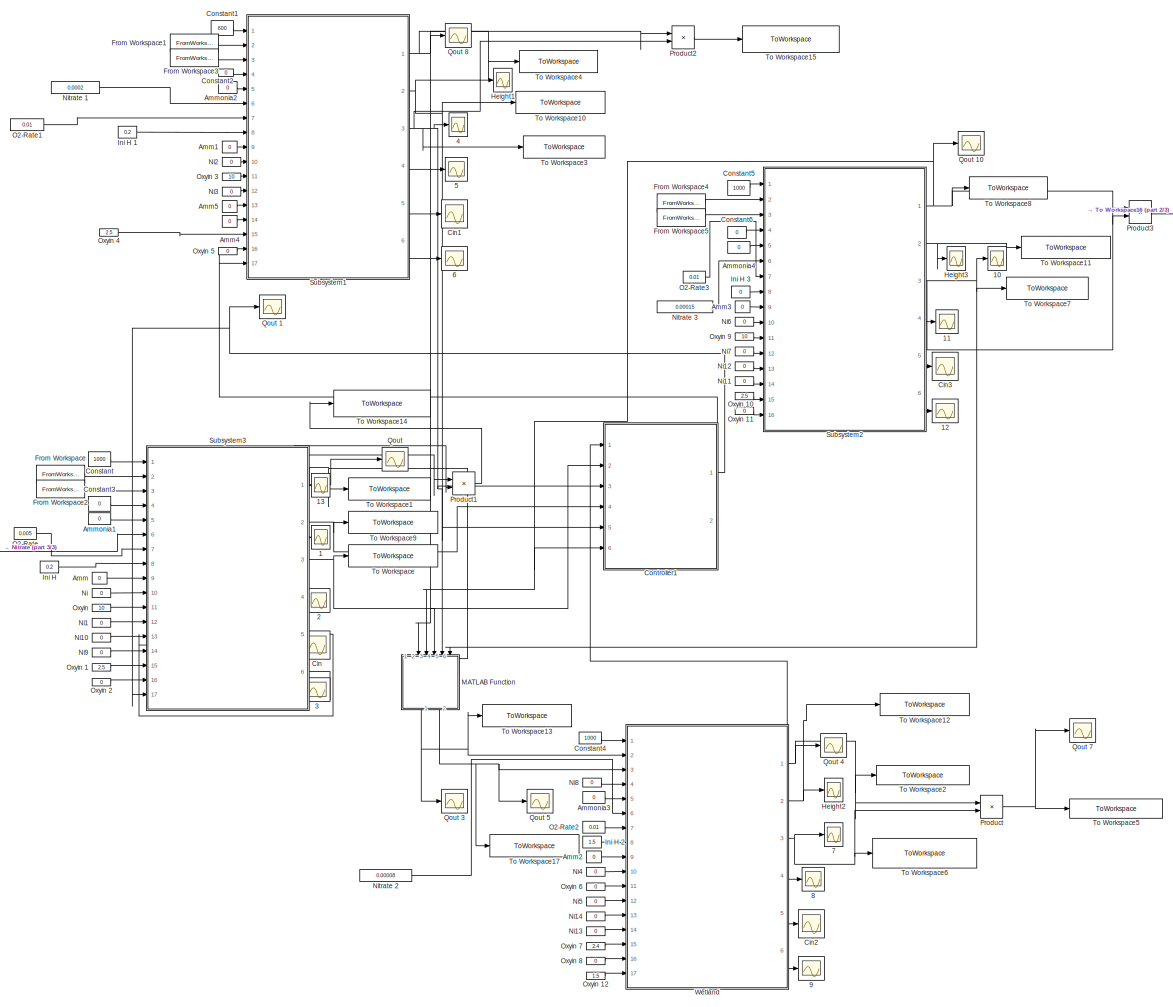
[diagram: root canvas - part 1/3, most of the canvas]
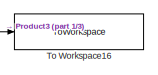
[diagram: root canvas - part 2/3, top right region]
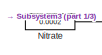
[diagram: root canvas - part 3/3, middle left region]
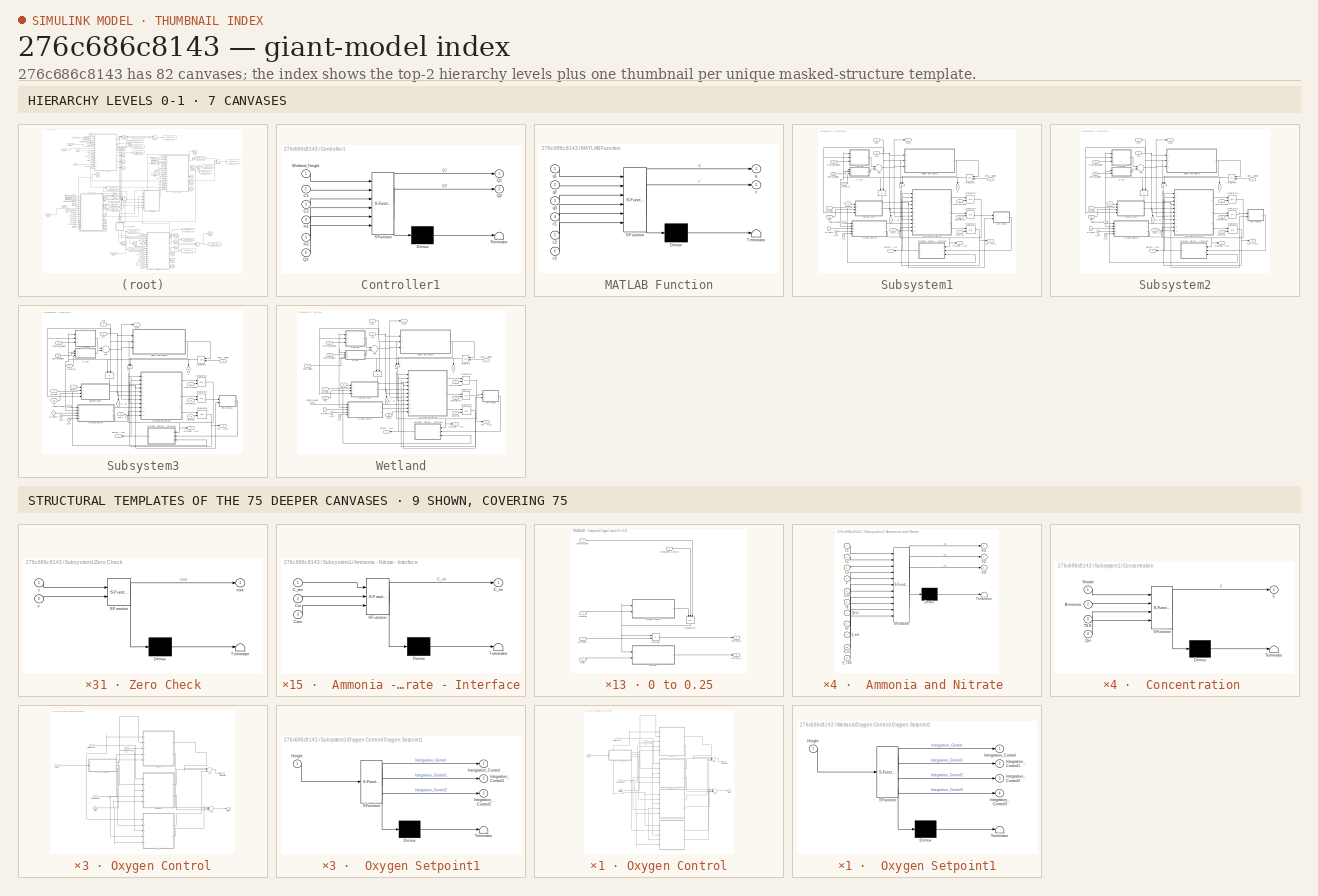
[diagram: thumbnail index - top-2 hierarchy levels (7 canvases) + 9 structural-template representatives of the remaining 75 canvases]
MODEL slx_276c686c8143
KIND model
CONFIG AbsTol = auto
CONFIG FixedStep = 1
CONFIG MaxStep = auto
CONFIG MinStep = auto
CONFIG RelTol = 1e-3
CONFIG SampleTimeConstraint = Unconstrained
CONFIG Solver = ode8
CONFIG SolverMode = Auto
CONFIG SolverName = ode8
CONFIG StartTime = 0.0
CONFIG StopTime = 1400
BLOCK [Constant]  Amm
  Value = 0
BLOCK [Constant]  Amm1
  Value = 0
BLOCK [Constant]  Amm2
  Value = 0
BLOCK [Constant]  Amm3
  Value = 0
BLOCK [Constant]  Amm4
  Value = 0
BLOCK [Constant]  Amm5
  Value = 0
BLOCK [Scope] 1
  Ports = [1]
  ScopeSpecificationString = Simulink.scopes.TimeScopeBlockCfg('CurrentConfiguration', extmgr.ConfigurationSet(extmgr.Configuration('Core','General UI',true),extmgr.Configuration('Core','Source UI',true),extmgr.Configuration('Sources','WiredSimulink',true,'DataLoggingVariableName','ScopeData1','DataLoggingLimitDataPoints',true,'DataLoggingSaveFormat','Array','DataLoggingDecimation','1','DataLoggingDecimateData',true),extmgr.C...<+1528ch>
BLOCK [Scope] 10
  Ports = [1]
  ScopeSpecificationString = Simulink.scopes.TimeScopeBlockCfg('CurrentConfiguration', extmgr.ConfigurationSet(extmgr.Configuration('Core','General UI',true),extmgr.Configuration('Core','Source UI',true),extmgr.Configuration('Sources','WiredSimulink',true,'DataLoggingVariableName','ScopeData8'),extmgr.Configuration('Visuals','Time Domain',true,'SerializedDisplays',{struct('MinYLimReal','-1.14656','MaxYLimReal','10.31907','YLa...<+1379ch>
BLOCK [Scope] 11
  Ports = [1]
  ScopeSpecificationString = C++SS(StrPVP('SaveName','ScopeData9'),StrPVP('LimitDataPoints','on'),StrPVP('DataFormat','Array'),StrPVP('Decimation','1'),StrPVP('BlockParamSampleInput','off'))
BLOCK [Scope] 12
  Ports = [1]
  ScopeSpecificationString = C++SS(StrPVP('SaveName','ScopeData10'),StrPVP('LimitDataPoints','on'),StrPVP('DataFormat','Array'),StrPVP('Decimation','1'),StrPVP('BlockParamSampleInput','off'))
BLOCK [Scope] 13
  Ports = [1]
  ScopeSpecificationString = Simulink.scopes.TimeScopeBlockCfg('CurrentConfiguration', extmgr.ConfigurationSet(extmgr.Configuration('Core','General UI',true),extmgr.Configuration('Core','Source UI',true),extmgr.Configuration('Sources','WiredSimulink',true,'DataLoggingVariableName','ScopeData1'),extmgr.Configuration('Visuals','Time Domain',true,'SerializedDisplays',{struct('MinYLimReal','0.07304','MaxYLimReal','2.11274','YLabe...<+1369ch>
BLOCK [Scope] 2
  Ports = [1]
  ScopeSpecificationString = Simulink.scopes.TimeScopeBlockCfg('CurrentConfiguration', extmgr.ConfigurationSet(extmgr.Configuration('Core','General UI',true),extmgr.Configuration('Core','Source UI',true),extmgr.Configuration('Sources','WiredSimulink',true,'DataLoggingVariableName','ScopeData2','DataLoggingLimitDataPoints',true,'DataLoggingSaveFormat','Array','DataLoggingDecimation','1','DataLoggingDecimateData',true),extmgr.C...<+1520ch>
BLOCK [Scope] 3
  Ports = [1]
  ScopeSpecificationString = Simulink.scopes.TimeScopeBlockCfg('CurrentConfiguration', extmgr.ConfigurationSet(extmgr.Configuration('Core','General UI',true),extmgr.Configuration('Core','Source UI',true),extmgr.Configuration('Sources','WiredSimulink',true,'DataLoggingVariableName','ScopeData1','DataLoggingLimitDataPoints',true,'DataLoggingSaveFormat','Array','DataLoggingDecimation','1','DataLoggingDecimateData',true),extmgr.C...<+1522ch>
BLOCK [Scope] 4
  Ports = [1]
  ScopeSpecificationString = Simulink.scopes.TimeScopeBlockCfg('CurrentConfiguration', extmgr.ConfigurationSet(extmgr.Configuration('Core','General UI',true),extmgr.Configuration('Core','Source UI',true),extmgr.Configuration('Sources','WiredSimulink',true,'DataLoggingVariableName','ScopeData1','DataLoggingLimitDataPoints',true,'DataLoggingSaveFormat','Array','DataLoggingDecimation','1','DataLoggingDecimateData',true),extmgr.C...<+1500ch>
BLOCK [Scope] 5
  Ports = [1]
  ScopeSpecificationString = Simulink.scopes.TimeScopeBlockCfg('CurrentConfiguration', extmgr.ConfigurationSet(extmgr.Configuration('Core','General UI',true),extmgr.Configuration('Core','Source UI',true),extmgr.Configuration('Sources','WiredSimulink',true,'DataLoggingVariableName','ScopeData2','DataLoggingLimitDataPoints',true,'DataLoggingSaveFormat','Array','DataLoggingDecimation','1','DataLoggingDecimateData',true),extmgr.C...<+1496ch>
BLOCK [Scope] 6
  Ports = [1]
  ScopeSpecificationString = C++SS(StrPVP('SaveName','ScopeData3'),StrPVP('LimitDataPoints','on'),StrPVP('DataFormat','Array'),StrPVP('Decimation','1'),StrPVP('BlockParamSampleInput','off'))
BLOCK [Scope] 7
  Ports = [1]
  ScopeSpecificationString = Simulink.scopes.TimeScopeBlockCfg('CurrentConfiguration', extmgr.ConfigurationSet(extmgr.Configuration('Core','General UI',true),extmgr.Configuration('Core','Source UI',true),extmgr.Configuration('Sources','WiredSimulink',true,'DataLoggingVariableName','ScopeData8','DataLoggingLimitDataPoints',true,'DataLoggingSaveFormat','Array','DataLoggingDecimation','1','DataLoggingDecimateData',true),extmgr.C...<+1526ch>
BLOCK [Scope] 8
  Ports = [1]
  ScopeSpecificationString = Simulink.scopes.TimeScopeBlockCfg('CurrentConfiguration', extmgr.ConfigurationSet(extmgr.Configuration('Core','General UI',true),extmgr.Configuration('Core','Source UI',true),extmgr.Configuration('Sources','WiredSimulink',true,'DataLoggingVariableName','ScopeData9','DataLoggingLimitDataPoints',true,'DataLoggingSaveFormat','Array','DataLoggingDecimation','1','DataLoggingDecimateData',true),extmgr.C...<+1505ch>
BLOCK [Scope] 9
  Ports = [1]
  ScopeSpecificationString = C++SS(StrPVP('SaveName','ScopeData3'),StrPVP('SaveName','ScopeData10'),StrPVP('LimitDataPoints','on'),StrPVP('DataFormat','Array'),StrPVP('Decimation','1'),StrPVP('BlockParamSampleInput','off'))
BLOCK [Constant] Ammonia1
  Value = 0
BLOCK [Constant] Ammonia2
  Value = 0
BLOCK [Constant] Ammonia3
  Value = 0
BLOCK [Constant] Ammonia4
  Value = 0
BLOCK [Scope] Cin
  Ports = [1]
  ScopeSpecificationString = Simulink.scopes.TimeScopeBlockCfg('CurrentConfiguration', extmgr.ConfigurationSet(extmgr.Configuration('Core','General UI',true),extmgr.Configuration('Core','Source UI',true),extmgr.Configuration('Sources','WiredSimulink',true,'DataLoggingVariableName','ScopeData6'),extmgr.Configuration('Visuals','Time Domain',true,'SerializedDisplays',{struct('MinYLimReal','-1.25','MaxYLimReal','11.25','YLabelRea...<+1443ch>
BLOCK [Scope] Cin1
  Ports = [1]
  ScopeSpecificationString = C++SS(StrPVP('SaveName','ScopeData4'),StrPVP('LimitDataPoints','on'),StrPVP('DataFormat','Array'),StrPVP('Decimation','1'),StrPVP('BlockParamSampleInput','off'))
BLOCK [Scope] Cin2
  Ports = [1]
  ScopeSpecificationString = C++SS(StrPVP('SaveName','ScopeData4'),StrPVP('SaveName','ScopeData11'),StrPVP('LimitDataPoints','on'),StrPVP('DataFormat','Array'),StrPVP('Decimation','1'),StrPVP('BlockParamSampleInput','off'))
BLOCK [Scope] Cin3
  Ports = [1]
  ScopeSpecificationString = C++SS(StrPVP('SaveName','ScopeData11'),StrPVP('LimitDataPoints','on'),StrPVP('DataFormat','Array'),StrPVP('Decimation','1'),StrPVP('BlockParamSampleInput','off'))
BLOCK [Constant] Constant
  Value = 1000
BLOCK [Constant] Constant1
  Value = 600
BLOCK [Constant] Constant2
  Value = 0
BLOCK [Constant] Constant3
  Value = 0
BLOCK [Constant] Constant4
  Value = 1000
BLOCK [Constant] Constant5
  Value = 1000
BLOCK [Constant] Constant6
  Value = 0
BLOCK [SubSystem] Controller1
  ErrorFcn = Stateflow.Translate.translate
  PermitHierarchicalResolution = ExplicitOnly
  Ports = [6, 2]
  RequestExecContextInheritance = off
  SFBlockType = MATLAB Function
  TreatAsAtomicUnit = on
  Variant = off
BLOCK [Demux] Controller1/ Demux 
  Outputs = 1
  Ports = [1, 1]
BLOCK [S-Function] Controller1/ SFunction 
  EnableBusSupport = on
  FunctionName = sf_sfun
  PortCounts = [6 3]
  Ports = [6, 3]
  SFunctionDeploymentMode = off
  Tag = Stateflow S-Function Global_Control 29
BLOCK [Terminator] Controller1/ Terminator 
BLOCK [Inport] Controller1/C1
  IconDisplay = Port number
  Port = 2
BLOCK [Inport] Controller1/C2
  IconDisplay = Port number
  Port = 3
BLOCK [Inport] Controller1/H1
  IconDisplay = Port number
  Port = 4
BLOCK [Inport] Controller1/H2
  IconDisplay = Port number
  Port = 5
BLOCK [Outport] Controller1/Q1
  IconDisplay = Port number
BLOCK [Outport] Controller1/Q2
  IconDisplay = Port number
  Port = 2
BLOCK [Inport] Controller1/Q3
  IconDisplay = Port number
  Port = 6
BLOCK [Inport] Controller1/Wetland_Height
  IconDisplay = Port number
BLOCK [FromWorkspace] From Workspace
  SampleTime = 0
  VariableName = Flow
  ZeroCross = on
BLOCK [FromWorkspace] From Workspace1
  SampleTime = 0
  VariableName = Flow
  ZeroCross = on
BLOCK [FromWorkspace] From Workspace2
  SampleTime = 0
  VariableName = Pollutant
  ZeroCross = on
BLOCK [FromWorkspace] From Workspace3
  SampleTime = 0
  VariableName = Pollutant
  ZeroCross = on
BLOCK [FromWorkspace] From Workspace4
  SampleTime = 0
  VariableName = Flow
  ZeroCross = on
BLOCK [FromWorkspace] From Workspace5
  SampleTime = 0
  VariableName = Pollutant
  ZeroCross = on
BLOCK [Scope] Height1
  Ports = [1]
  ScopeSpecificationString = Simulink.scopes.TimeScopeBlockCfg('CurrentConfiguration', extmgr.ConfigurationSet(extmgr.Configuration('Core','General UI',true),extmgr.Configuration('Core','Source UI',true),extmgr.Configuration('Sources','WiredSimulink',true,'DataLoggingVariableName','ScopeData5','DataLoggingLimitDataPoints',true,'DataLoggingSaveFormat','Array','DataLoggingDecimation','1','DataLoggingDecimateData',true),extmgr.C...<+1564ch>
BLOCK [Scope] Height2
  Ports = [1]
  ScopeSpecificationString = Simulink.scopes.TimeScopeBlockCfg('CurrentConfiguration', extmgr.ConfigurationSet(extmgr.Configuration('Core','General UI',true),extmgr.Configuration('Core','Source UI',true),extmgr.Configuration('Sources','WiredSimulink',true,'DataLoggingVariableName','ScopeData12','DataLoggingLimitDataPoints',true,'DataLoggingSaveFormat','Array','DataLoggingDecimation','1','DataLoggingDecimateData',true),extmgr....<+1522ch>
BLOCK [Scope] Height3
  Ports = [1]
  ScopeSpecificationString = Simulink.scopes.TimeScopeBlockCfg('CurrentConfiguration', extmgr.ConfigurationSet(extmgr.Configuration('Core','General UI',true),extmgr.Configuration('Core','Source UI',true),extmgr.Configuration('Sources','WiredSimulink',true,'DataLoggingVariableName','ScopeData12','DataLoggingLimitDataPoints',true,'DataLoggingSaveFormat','Array','DataLoggingDecimation','1','DataLoggingDecimateData',true),extmgr....<+1497ch>
BLOCK [Constant] Ini H 
  Value = 0.2
BLOCK [Constant] Ini H 1
  Value = 0.2
BLOCK [Constant] Ini H 2
  Value = 1.5
BLOCK [Constant] Ini H 3
  Value = 0
BLOCK [SubSystem] MATLAB Function
  ErrorFcn = Stateflow.Translate.translate
  PermitHierarchicalResolution = ExplicitOnly
  Ports = [6, 2]
  RequestExecContextInheritance = off
  SFBlockType = MATLAB Function
  TreatAsAtomicUnit = on
  Variant = off
BLOCK [Demux] MATLAB Function/ Demux 
  Outputs = 1
  Ports = [1, 1]
BLOCK [S-Function] MATLAB Function/ SFunction 
  EnableBusSupport = on
  FunctionName = sf_sfun
  PortCounts = [6 3]
  Ports = [6, 3]
  SFunctionDeploymentMode = off
  Tag = Stateflow S-Function Global_Control 28
BLOCK [Terminator] MATLAB Function/ Terminator 
BLOCK [Outport] MATLAB Function/c
  IconDisplay = Port number
  Port = 2
BLOCK [Inport] MATLAB Function/c1
  IconDisplay = Port number
  Port = 4
BLOCK [Inport] MATLAB Function/c2
  IconDisplay = Port number
  Port = 5
BLOCK [Inport] MATLAB Function/c3
  IconDisplay = Port number
  Port = 6
BLOCK [Outport] MATLAB Function/q
  IconDisplay = Port number
BLOCK [Inport] MATLAB Function/q1
  IconDisplay = Port number
BLOCK [Inport] MATLAB Function/q2
  IconDisplay = Port number
  Port = 2
BLOCK [Inport] MATLAB Function/q3
  IconDisplay = Port number
  Port = 3
BLOCK [Constant] Ni
  Value = 0
BLOCK [Constant] Ni1
  Value = 0
BLOCK [Constant] Ni10
  Value = 0
BLOCK [Constant] Ni11
  Value = 0
BLOCK [Constant] Ni12
  Value = 0
BLOCK [Constant] Ni13
  Value = 0
BLOCK [Constant] Ni14
  Value = 0
BLOCK [Constant] Ni2
  Value = 0
BLOCK [Constant] Ni3
  Value = 0
BLOCK [Constant] Ni4
  Value = 0
BLOCK [Constant] Ni5
  Value = 0
BLOCK [Constant] Ni6
  Value = 0
BLOCK [Constant] Ni7
  Value = 0
BLOCK [Constant] Ni8
  Value = 0
BLOCK [Constant] Ni9
  Value = 0
BLOCK [Constant] Nitrate 
  Value = 0.0002
BLOCK [Constant] Nitrate 1
  Value = 0.0002
BLOCK [Constant] Nitrate 2
  Value = 0.00008
BLOCK [Constant] Nitrate 3
  Value = 0.00015
BLOCK [Constant] O2-Rate
  Value = 0.005
BLOCK [Constant] O2-Rate1
  Value = 0.01
BLOCK [Constant] O2-Rate2
  Value = 0.01
BLOCK [Constant] O2-Rate3
  Value = 0.01
BLOCK [Constant] Oxyin 
  Value = 10
BLOCK [Constant] Oxyin 1
  Value = 2.5
BLOCK [Constant] Oxyin 10
  Value = 2.5
BLOCK [Constant] Oxyin 11
  Value = 0
BLOCK [Constant] Oxyin 12
  Value = 1.5
BLOCK [Constant] Oxyin 2
  Value = 0
BLOCK [Constant] Oxyin 3
  Value = 10
BLOCK [Constant] Oxyin 4
  Value = 2.5
BLOCK [Constant] Oxyin 5
  Value = 0
BLOCK [Constant] Oxyin 6
  Value = 0
BLOCK [Constant] Oxyin 7
  Value = 2.4
BLOCK [Constant] Oxyin 8
  Value = 0
BLOCK [Constant] Oxyin 9
  Value = 10
BLOCK [Product] Product
  InputSameDT = off
  OutDataTypeStr = Inherit: Inherit via internal rule
  Ports = [2, 1]
  RndMeth = Floor
  SaturateOnIntegerOverflow = off
BLOCK [Product] Product1
  InputSameDT = off
  OutDataTypeStr = Inherit: Inherit via internal rule
  Ports = [2, 1]
  RndMeth = Floor
  SaturateOnIntegerOverflow = off
BLOCK [Product] Product2
  InputSameDT = off
  OutDataTypeStr = Inherit: Inherit via internal rule
  Ports = [2, 1]
  RndMeth = Floor
  SaturateOnIntegerOverflow = off
BLOCK [Product] Product3
  InputSameDT = off
  OutDataTypeStr = Inherit: Inherit via internal rule
  Ports = [2, 1]
  RndMeth = Floor
  SaturateOnIntegerOverflow = off
BLOCK [Scope] Qout 
  Ports = [1]
  ScopeSpecificationString = Simulink.scopes.TimeScopeBlockCfg('CurrentConfiguration', extmgr.ConfigurationSet(extmgr.Configuration('Core','General UI',true),extmgr.Configuration('Core','Source UI',true),extmgr.Configuration('Sources','WiredSimulink',true,'DataLoggingVariableName','ScopeData2','DataLoggingLimitDataPoints',true,'DataLoggingSaveFormat','Array','DataLoggingDecimation','1','DataLoggingDecimateData',true),extmgr.C...<+1524ch>
BLOCK [Scope] Qout 1
  Ports = [1]
  ScopeSpecificationString = Simulink.scopes.TimeScopeBlockCfg('CurrentConfiguration', extmgr.ConfigurationSet(extmgr.Configuration('Core','General UI',true),extmgr.Configuration('Core','Source UI',true),extmgr.Configuration('Sources','WiredSimulink',true,'DataLoggingVariableName','ScopeData3','DataLoggingLimitDataPoints',true,'DataLoggingSaveFormat','Array','DataLoggingDecimation','1','DataLoggingDecimateData',true),extmgr.C...<+1497ch>
BLOCK [Scope] Qout 10
  Ports = [1]
  ScopeSpecificationString = Simulink.scopes.TimeScopeBlockCfg('CurrentConfiguration', extmgr.ConfigurationSet(extmgr.Configuration('Core','General UI',true),extmgr.Configuration('Core','Source UI',true),extmgr.Configuration('Sources','WiredSimulink',true,'DataLoggingVariableName','ScopeData13','DataLoggingLimitDataPoints',true,'DataLoggingSaveFormat','Array','DataLoggingDecimation','1','DataLoggingDecimateData',true),extmgr....<+1542ch>
BLOCK [Scope] Qout 3
  Ports = [1]
  ScopeSpecificationString = Simulink.scopes.TimeScopeBlockCfg('CurrentConfiguration', extmgr.ConfigurationSet(extmgr.Configuration('Core','General UI',true),extmgr.Configuration('Core','Source UI',true),extmgr.Configuration('Sources','WiredSimulink',true,'DataLoggingVariableName','ScopeData7','DataLoggingLimitDataPoints',true,'DataLoggingSaveFormat','Array','DataLoggingDecimation','1','DataLoggingDecimateData',true),extmgr.C...<+1534ch>
BLOCK [Scope] Qout 4
  Ports = [1]
  ScopeSpecificationString = Simulink.scopes.TimeScopeBlockCfg('CurrentConfiguration', extmgr.ConfigurationSet(extmgr.Configuration('Core','General UI',true),extmgr.Configuration('Core','Source UI',true),extmgr.Configuration('Sources','WiredSimulink',true,'DataLoggingVariableName','ScopeData13','DataLoggingLimitDataPoints',true,'DataLoggingSaveFormat','Array','DataLoggingDecimation','1','DataLoggingDecimateData',true),extmgr....<+1571ch>
BLOCK [Scope] Qout 5
  Ports = [1]
  ScopeSpecificationString = Simulink.scopes.TimeScopeBlockCfg('CurrentConfiguration', extmgr.ConfigurationSet(extmgr.Configuration('Core','General UI',true),extmgr.Configuration('Core','Source UI',true),extmgr.Configuration('Sources','WiredSimulink',true,'DataLoggingVariableName','ScopeData8','DataLoggingLimitDataPoints',true,'DataLoggingSaveFormat','Array','DataLoggingDecimation','1','DataLoggingDecimateData',true),extmgr.C...<+1530ch>
BLOCK [Scope] Qout 7
  Ports = [1]
  ScopeSpecificationString = Simulink.scopes.TimeScopeBlockCfg('CurrentConfiguration', extmgr.ConfigurationSet(extmgr.Configuration('Core','General UI',true),extmgr.Configuration('Core','Source UI',true),extmgr.Configuration('Sources','WiredSimulink',true,'DataLoggingVariableName','ScopeData1'),extmgr.Configuration('Visuals','Time Domain',true,'SerializedDisplays',{struct('MinYLimReal','-1.5957','MaxYLimReal','14.36126','YLab...<+1396ch>
BLOCK [Scope] Qout 8
  Ports = [1]
  ScopeSpecificationString = Simulink.scopes.TimeScopeBlockCfg('CurrentConfiguration', extmgr.ConfigurationSet(extmgr.Configuration('Core','General UI',true),extmgr.Configuration('Core','Source UI',true),extmgr.Configuration('Sources','WiredSimulink',true,'DataLoggingVariableName','ScopeData6','DataLoggingLimitDataPoints',true,'DataLoggingSaveFormat','Array','DataLoggingDecimation','1','DataLoggingDecimateData',true),extmgr.C...<+1518ch>
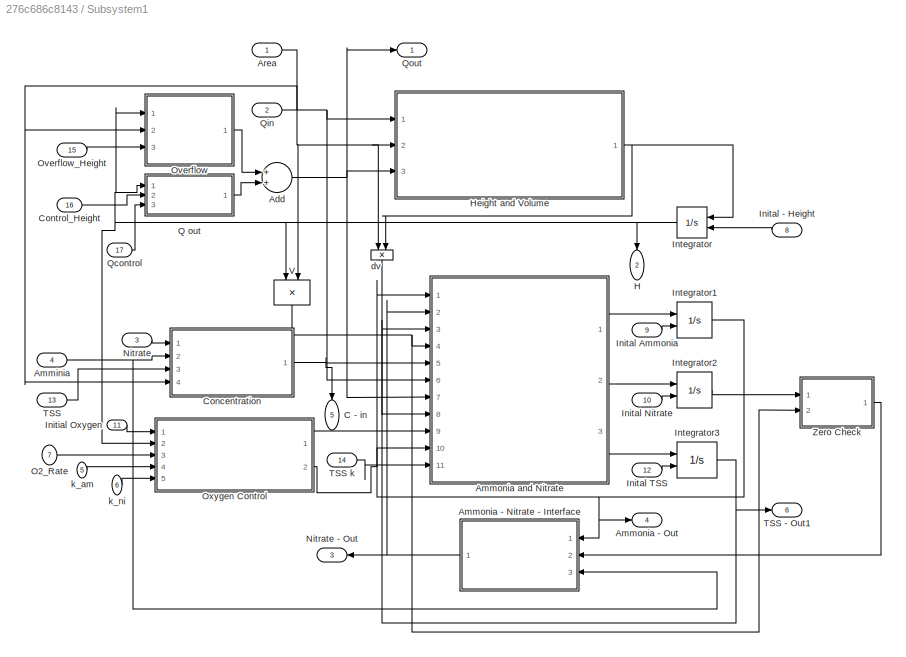
BLOCK [SubSystem] Subsystem1
  Ports = [17, 6]
  RequestExecContextInheritance = off
  Variant = off
BLOCK [SubSystem] Subsystem1/ Ammonia - Nitrate - Interface
  ErrorFcn = Stateflow.Translate.translate
  PermitHierarchicalResolution = ExplicitOnly
  Ports = [3, 1]
  RequestExecContextInheritance = off
  SFBlockType = MATLAB Function
  TreatAsAtomicUnit = on
  Variant = off
BLOCK [Demux] Subsystem1/ Ammonia - Nitrate - Interface/ Demux 
  Outputs = 1
  Ports = [1, 1]
BLOCK [S-Function] Subsystem1/ Ammonia - Nitrate - Interface/ SFunction 
  EnableBusSupport = on
  FunctionName = sf_sfun
  PortCounts = [3 2]
  Ports = [3, 2]
  SFunctionDeploymentMode = off
  Tag = Stateflow S-Function Global_Control 8
BLOCK [Terminator] Subsystem1/ Ammonia - Nitrate - Interface/ Terminator 
BLOCK [Inport] Subsystem1/ Ammonia - Nitrate - Interface/C_am
  IconDisplay = Port number
BLOCK [Outport] Subsystem1/ Ammonia - Nitrate - Interface/C_nit
  IconDisplay = Port number
BLOCK [Inport] Subsystem1/ Ammonia - Nitrate - Interface/Cam
  IconDisplay = Port number
  Port = 3
BLOCK [Inport] Subsystem1/ Ammonia - Nitrate - Interface/Cni
  IconDisplay = Port number
  Port = 2
BLOCK [SubSystem] Subsystem1/ Ammonia and Nitrate 
  ErrorFcn = Stateflow.Translate.translate
  PermitHierarchicalResolution = ExplicitOnly
  Ports = [11, 3]
  RequestExecContextInheritance = off
  SFBlockType = MATLAB Function
  TreatAsAtomicUnit = on
  Variant = off
BLOCK [Demux] Subsystem1/ Ammonia and Nitrate / Demux 
  Outputs = 1
  Ports = [1, 1]
BLOCK [S-Function] Subsystem1/ Ammonia and Nitrate / SFunction 
  EnableBusSupport = on
  FunctionName = sf_sfun
  PortCounts = [11 4]
  Ports = [11, 4]
  SFunctionDeploymentMode = off
  Tag = Stateflow S-Function Global_Control 9
BLOCK [Terminator] Subsystem1/ Ammonia and Nitrate / Terminator 
BLOCK [Inport] Subsystem1/ Ammonia and Nitrate /C1
  IconDisplay = Port number
BLOCK [Inport] Subsystem1/ Ammonia and Nitrate /C2
  IconDisplay = Port number
  Port = 2
BLOCK [Inport] Subsystem1/ Ammonia and Nitrate /C3
  IconDisplay = Port number
  Port = 3
BLOCK [Inport] Subsystem1/ Ammonia and Nitrate /Cint
  IconDisplay = Port number
  Port = 5
BLOCK [Inport] Subsystem1/ Ammonia and Nitrate /Qi
  IconDisplay = Port number
  Port = 6
BLOCK [Inport] Subsystem1/ Ammonia and Nitrate /Qout
  IconDisplay = Port number
  Port = 7
BLOCK [Outport] Subsystem1/ Ammonia and Nitrate /dc1
  IconDisplay = Port number
BLOCK [Outport] Subsystem1/ Ammonia and Nitrate /dc2
  IconDisplay = Port number
  Port = 2
BLOCK [Outport] Subsystem1/ Ammonia and Nitrate /dc3
  IconDisplay = Port number
  Port = 3
BLOCK [Inport] Subsystem1/ Ammonia and Nitrate /dv
  IconDisplay = Port number
  Port = 8
BLOCK [Inport] Subsystem1/ Ammonia and Nitrate /k_TSS
  IconDisplay = Port number
  Port = 11
BLOCK [Inport] Subsystem1/ Ammonia and Nitrate /k_am
  IconDisplay = Port number
  Port = 9
BLOCK [Inport] Subsystem1/ Ammonia and Nitrate /k_ni
  IconDisplay = Port number
  Port = 10
BLOCK [Inport] Subsystem1/ Ammonia and Nitrate /v
  IconDisplay = Port number
  Port = 4
BLOCK [SubSystem] Subsystem1/ Concentration 
  ErrorFcn = Stateflow.Translate.translate
  PermitHierarchicalResolution = ExplicitOnly
  Ports = [4, 1]
  RequestExecContextInheritance = off
  SFBlockType = MATLAB Function
  TreatAsAtomicUnit = on
  Variant = off
BLOCK [Demux] Subsystem1/ Concentration / Demux 
  Outputs = 1
  Ports = [1, 1]
BLOCK [S-Function] Subsystem1/ Concentration / SFunction 
  EnableBusSupport = on
  FunctionName = sf_sfun
  PortCounts = [4 2]
  Ports = [4, 2]
  SFunctionDeploymentMode = off
  Tag = Stateflow S-Function Global_Control 10
BLOCK [Terminator] Subsystem1/ Concentration / Terminator 
BLOCK [Inport] Subsystem1/ Concentration /Ammonia
  IconDisplay = Port number
  Port = 2
BLOCK [Outport] Subsystem1/ Concentration /C
  IconDisplay = Port number
BLOCK [Inport] Subsystem1/ Concentration /Nitrate
  IconDisplay = Port number
BLOCK [Inport] Subsystem1/ Concentration /Qin
  IconDisplay = Port number
  Port = 4
BLOCK [Inport] Subsystem1/ Concentration /TSS
  IconDisplay = Port number
  Port = 3
BLOCK [Sum] Subsystem1/Add
  InputSameDT = off
  OutDataTypeStr = Inherit: Inherit via internal rule
  Ports = [2, 1]
  SaturateOnIntegerOverflow = off
BLOCK [Inport] Subsystem1/Amminia
  IconDisplay = Port number
  Port = 4
BLOCK [Outport] Subsystem1/Ammonia - Out
  IconDisplay = Port number
  Port = 4
BLOCK [Inport] Subsystem1/Area
  IconDisplay = Port number
BLOCK [Outport] Subsystem1/C - in 
  IconDisplay = Port number
  Port = 5
BLOCK [Inport] Subsystem1/Control_Height
  IconDisplay = Port number
  Port = 16
BLOCK [Outport] Subsystem1/H
  IconDisplay = Port number
  Port = 2
BLOCK [SubSystem] Subsystem1/Height and Volume
  ErrorFcn = Stateflow.Translate.translate
  PermitHierarchicalResolution = ExplicitOnly
  Ports = [3, 1]
  RequestExecContextInheritance = off
  SFBlockType = MATLAB Function
  TreatAsAtomicUnit = on
  Variant = off
BLOCK [Demux] Subsystem1/Height and Volume/ Demux 
  Outputs = 1
  Ports = [1, 1]
BLOCK [S-Function] Subsystem1/Height and Volume/ SFunction 
  EnableBusSupport = on
  FunctionName = sf_sfun
  PortCounts = [3 2]
  Ports = [3, 2]
  SFunctionDeploymentMode = off
  Tag = Stateflow S-Function Global_Control 11
BLOCK [Terminator] Subsystem1/Height and Volume/ Terminator 
BLOCK [Inport] Subsystem1/Height and Volume/A
  IconDisplay = Port number
  Port = 2
BLOCK [Inport] Subsystem1/Height and Volume/Qin
  IconDisplay = Port number
BLOCK [Inport] Subsystem1/Height and Volume/Qout
  IconDisplay = Port number
  Port = 3
BLOCK [Outport] Subsystem1/Height and Volume/dH
  IconDisplay = Port number
BLOCK [Inport] Subsystem1/Inital - Height
  IconDisplay = Port number
  Port = 8
BLOCK [Inport] Subsystem1/Inital Ammonia
  IconDisplay = Port number
  Port = 9
BLOCK [Inport] Subsystem1/Inital Nitrate
  IconDisplay = Port number
  Port = 10
BLOCK [Inport] Subsystem1/Inital TSS
  IconDisplay = Port number
  Port = 12
BLOCK [Inport] Subsystem1/Initial Oxygen
  IconDisplay = Port number
  Port = 11
BLOCK [Integrator] Subsystem1/Integrator
  InitialCondition = 10
  InitialConditionSource = external
  LimitOutput = on
  LowerSaturationLimit = 0
  Ports = [2, 1]
BLOCK [Integrator] Subsystem1/Integrator1
  InitialConditionSource = external
  LimitOutput = on
  LowerSaturationLimit = 0
  Ports = [2, 1]
BLOCK [Integrator] Subsystem1/Integrator2
  InitialConditionSource = external
  LimitOutput = on
  LowerSaturationLimit = 0
  Ports = [2, 1]
BLOCK [Integrator] Subsystem1/Integrator3
  InitialConditionSource = external
  LimitOutput = on
  LowerSaturationLimit = 0
  Ports = [2, 1]
BLOCK [Inport] Subsystem1/Nitrate
  IconDisplay = Port number
  Port = 3
BLOCK [Outport] Subsystem1/Nitrate - Out
  IconDisplay = Port number
  Port = 3
BLOCK [Inport] Subsystem1/O2_Rate 
  IconDisplay = Port number
  Port = 7
BLOCK [SubSystem] Subsystem1/Overflow 
  ErrorFcn = Stateflow.Translate.translate
  PermitHierarchicalResolution = ExplicitOnly
  Ports = [3, 1]
  RequestExecContextInheritance = off
  SFBlockType = MATLAB Function
  TreatAsAtomicUnit = on
  Variant = off
BLOCK [Demux] Subsystem1/Overflow / Demux 
  Outputs = 1
  Ports = [1, 1]
BLOCK [S-Function] Subsystem1/Overflow / SFunction 
  EnableBusSupport = on
  FunctionName = sf_sfun
  PortCounts = [3 2]
  Ports = [3, 2]
  SFunctionDeploymentMode = off
  Tag = Stateflow S-Function Global_Control 12
BLOCK [Terminator] Subsystem1/Overflow / Terminator 
BLOCK [Inport] Subsystem1/Overflow /H
  IconDisplay = Port number
BLOCK [Inport] Subsystem1/Overflow /Overflow_Height
  IconDisplay = Port number
  Port = 3
BLOCK [Outport] Subsystem1/Overflow /Q_overflow
  IconDisplay = Port number
BLOCK [Inport] Subsystem1/Overflow /Qin
  IconDisplay = Port number
  Port = 2
BLOCK [Inport] Subsystem1/Overflow_Height
  IconDisplay = Port number
  Port = 15
BLOCK [SubSystem] Subsystem1/Oxygen Control
  Ports = [5, 2]
  RequestExecContextInheritance = off
  Variant = off
BLOCK [SubSystem] Subsystem1/Oxygen Control/ Oxygen Setpoint1
  ErrorFcn = Stateflow.Translate.translate
  PermitHierarchicalResolution = ExplicitOnly
  Ports = [1, 3]
  RequestExecContextInheritance = off
  SFBlockType = MATLAB Function
  TreatAsAtomicUnit = on
  Variant = off
BLOCK [Demux] Subsystem1/Oxygen Control/ Oxygen Setpoint1/ Demux 
  Outputs = 1
  Ports = [1, 1]
BLOCK [S-Function] Subsystem1/Oxygen Control/ Oxygen Setpoint1/ SFunction 
  EnableBusSupport = on
  FunctionName = sf_sfun
  PortCounts = [1 4]
  Ports = [1, 4]
  SFunctionDeploymentMode = off
  Tag = Stateflow S-Function Global_Control 13
BLOCK [Terminator] Subsystem1/Oxygen Control/ Oxygen Setpoint1/ Terminator 
BLOCK [Inport] Subsystem1/Oxygen Control/ Oxygen Setpoint1/Height
  IconDisplay = Port number
BLOCK [Outport] Subsystem1/Oxygen Control/ Oxygen Setpoint1/Integration_Control1
  IconDisplay = Port number
  Port = 2
BLOCK [Outport] Subsystem1/Oxygen Control/ Oxygen Setpoint1/Integration_Control2
  IconDisplay = Port number
  Port = 3
BLOCK [Outport] Subsystem1/Oxygen Control/ Oxygen Setpoint1/Intergration_Control
  IconDisplay = Port number
BLOCK [SubSystem] Subsystem1/Oxygen Control/0 to 0.25
  Ports = [5, 2]
  RequestExecContextInheritance = off
  Variant = off
BLOCK [SubSystem] Subsystem1/Oxygen Control/0 to 0.25/ Nitrate
  ErrorFcn = Stateflow.Translate.translate
  PermitHierarchicalResolution = ExplicitOnly
  Ports = [2, 1]
  RequestExecContextInheritance = off
  SFBlockType = MATLAB Function
  TreatAsAtomicUnit = on
  Variant = off
BLOCK [Demux] Subsystem1/Oxygen Control/0 to 0.25/ Nitrate/ Demux 
  Outputs = 1
  Ports = [1, 1]
BLOCK [S-Function] Subsystem1/Oxygen Control/0 to 0.25/ Nitrate/ SFunction 
  EnableBusSupport = on
  FunctionName = sf_sfun
  PortCounts = [2 2]
  Ports = [2, 2]
  SFunctionDeploymentMode = off
  Tag = Stateflow S-Function Global_Control 15
BLOCK [Terminator] Subsystem1/Oxygen Control/0 to 0.25/ Nitrate/ Terminator 
BLOCK [Inport] Subsystem1/Oxygen Control/0 to 0.25/ Nitrate/K_Nitr
  IconDisplay = Port number
  Port = 2
BLOCK [Outport] Subsystem1/Oxygen Control/0 to 0.25/ Nitrate/K_Nitrate
  IconDisplay = Port number
BLOCK [Inport] Subsystem1/Oxygen Control/0 to 0.25/ Nitrate/Oxygen_Level
  IconDisplay = Port number
BLOCK [SubSystem] Subsystem1/Oxygen Control/0 to 0.25/ Oxygen Control
  ErrorFcn = Stateflow.Translate.translate
  PermitHierarchicalResolution = ExplicitOnly
  Ports = [2, 1]
  RequestExecContextInheritance = off
  SFBlockType = MATLAB Function
  TreatAsAtomicUnit = on
  Variant = off
BLOCK [Demux] Subsystem1/Oxygen Control/0 to 0.25/ Oxygen Control/ Demux 
  Outputs = 1
  Ports = [1, 1]
BLOCK [S-Function] Subsystem1/Oxygen Control/0 to 0.25/ Oxygen Control/ SFunction 
  EnableBusSupport = on
  FunctionName = sf_sfun
  PortCounts = [2 2]
  Ports = [2, 2]
  SFunctionDeploymentMode = off
  Tag = Stateflow S-Function Global_Control 17
BLOCK [Terminator] Subsystem1/Oxygen Control/0 to 0.25/ Oxygen Control/ Terminator 
BLOCK [Inport] Subsystem1/Oxygen Control/0 to 0.25/ Oxygen Control/K
  IconDisplay = Port number
  Port = 2
BLOCK [Inport] Subsystem1/Oxygen Control/0 to 0.25/ Oxygen Control/c
  IconDisplay = Port number
BLOCK [Outport] Subsystem1/Oxygen Control/0 to 0.25/ Oxygen Control/dOxygen_Level
  IconDisplay = Port number
BLOCK [Product] Subsystem1/Oxygen Control/0 to 0.25/Ammonia
  InputSameDT = off
  OutDataTypeStr = Inherit: Inherit via internal rule
  Ports = [2, 1]
  RndMeth = Floor
  SaturateOnIntegerOverflow = off
BLOCK [Inport] Subsystem1/Oxygen Control/0 to 0.25/Ammonia k
  IconDisplay = Port number
  Port = 4
BLOCK [Outport] Subsystem1/Oxygen Control/0 to 0.25/Ammonia_k
  IconDisplay = Port number
BLOCK [Inport] Subsystem1/Oxygen Control/0 to 0.25/Constant
  IconDisplay = Port number
  Port = 3
BLOCK [Inport] Subsystem1/Oxygen Control/0 to 0.25/Inital Oxygen
  IconDisplay = Port number
BLOCK [Inport] Subsystem1/Oxygen Control/0 to 0.25/Integration Control
  IconDisplay = Port number
  Port = 2
BLOCK [Integrator] Subsystem1/Oxygen Control/0 to 0.25/Integrator3
  ExternalReset = level hold
  InitialCondition = 10
  InitialConditionSource = external
  Ports = [3, 1]
BLOCK [Inport] Subsystem1/Oxygen Control/0 to 0.25/K_nitr
  IconDisplay = Port number
  Port = 5
BLOCK [Outport] Subsystem1/Oxygen Control/0 to 0.25/Nitrate_k 
  IconDisplay = Port number
  Port = 2
BLOCK [SubSystem] Subsystem1/Oxygen Control/0.25 ro 0.75
  Ports = [5, 2]
  RequestExecContextInheritance = off
  Variant = off
BLOCK [SubSystem] Subsystem1/Oxygen Control/0.25 ro 0.75/ Nitrate
  ErrorFcn = Stateflow.Translate.translate
  PermitHierarchicalResolution = ExplicitOnly
  Ports = [2, 1]
  RequestExecContextInheritance = off
  SFBlockType = MATLAB Function
  TreatAsAtomicUnit = on
  Variant = off
BLOCK [Demux] Subsystem1/Oxygen Control/0.25 ro 0.75/ Nitrate/ Demux 
  Outputs = 1
  Ports = [1, 1]
BLOCK [S-Function] Subsystem1/Oxygen Control/0.25 ro 0.75/ Nitrate/ SFunction 
  EnableBusSupport = on
  FunctionName = sf_sfun
  PortCounts = [2 2]
  Ports = [2, 2]
  SFunctionDeploymentMode = off
  Tag = Stateflow S-Function Global_Control 39
BLOCK [Terminator] Subsystem1/Oxygen Control/0.25 ro 0.75/ Nitrate/ Terminator 
BLOCK [Inport] Subsystem1/Oxygen Control/0.25 ro 0.75/ Nitrate/K_Nitr
  IconDisplay = Port number
  Port = 2
BLOCK [Outport] Subsystem1/Oxygen Control/0.25 ro 0.75/ Nitrate/K_Nitrate
  IconDisplay = Port number
BLOCK [Inport] Subsystem1/Oxygen Control/0.25 ro 0.75/ Nitrate/Oxygen_Level
  IconDisplay = Port number
BLOCK [SubSystem] Subsystem1/Oxygen Control/0.25 ro 0.75/ Oxygen Control
  ErrorFcn = Stateflow.Translate.translate
  PermitHierarchicalResolution = ExplicitOnly
  Ports = [2, 1]
  RequestExecContextInheritance = off
  SFBlockType = MATLAB Function
  TreatAsAtomicUnit = on
  Variant = off
BLOCK [Demux] Subsystem1/Oxygen Control/0.25 ro 0.75/ Oxygen Control/ Demux 
  Outputs = 1
  Ports = [1, 1]
BLOCK [S-Function] Subsystem1/Oxygen Control/0.25 ro 0.75/ Oxygen Control/ SFunction 
  EnableBusSupport = on
  FunctionName = sf_sfun
  PortCounts = [2 2]
  Ports = [2, 2]
  SFunctionDeploymentMode = off
  Tag = Stateflow S-Function Global_Control 40
BLOCK [Terminator] Subsystem1/Oxygen Control/0.25 ro 0.75/ Oxygen Control/ Terminator 
BLOCK [Inport] Subsystem1/Oxygen Control/0.25 ro 0.75/ Oxygen Control/K
  IconDisplay = Port number
  Port = 2
BLOCK [Inport] Subsystem1/Oxygen Control/0.25 ro 0.75/ Oxygen Control/c
  IconDisplay = Port number
BLOCK [Outport] Subsystem1/Oxygen Control/0.25 ro 0.75/ Oxygen Control/dOxygen_Level
  IconDisplay = Port number
BLOCK [Product] Subsystem1/Oxygen Control/0.25 ro 0.75/Ammonia
  InputSameDT = off
  OutDataTypeStr = Inherit: Inherit via internal rule
  Ports = [2, 1]
  RndMeth = Floor
  SaturateOnIntegerOverflow = off
BLOCK [Inport] Subsystem1/Oxygen Control/0.25 ro 0.75/Ammonia k
  IconDisplay = Port number
  Port = 4
BLOCK [Outport] Subsystem1/Oxygen Control/0.25 ro 0.75/Ammonia_k
  IconDisplay = Port number
BLOCK [Inport] Subsystem1/Oxygen Control/0.25 ro 0.75/Constant
  IconDisplay = Port number
  Port = 3
BLOCK [Inport] Subsystem1/Oxygen Control/0.25 ro 0.75/Inital Oxygen
  IconDisplay = Port number
BLOCK [Inport] Subsystem1/Oxygen Control/0.25 ro 0.75/Integration Control
  IconDisplay = Port number
  Port = 2
BLOCK [Integrator] Subsystem1/Oxygen Control/0.25 ro 0.75/Integrator3
  ExternalReset = level hold
  InitialCondition = 10
  InitialConditionSource = external
  Ports = [3, 1]
BLOCK [Inport] Subsystem1/Oxygen Control/0.25 ro 0.75/K_nitr
  IconDisplay = Port number
  Port = 5
BLOCK [Outport] Subsystem1/Oxygen Control/0.25 ro 0.75/Nitrate_k 
  IconDisplay = Port number
  Port = 2
BLOCK [SubSystem] Subsystem1/Oxygen Control/0.75 
  Ports = [5, 2]
  RequestExecContextInheritance = off
  Variant = off
BLOCK [SubSystem] Subsystem1/Oxygen Control/0.75 / Nitrate
  ErrorFcn = Stateflow.Translate.translate
  PermitHierarchicalResolution = ExplicitOnly
  Ports = [2, 1]
  RequestExecContextInheritance = off
  SFBlockType = MATLAB Function
  TreatAsAtomicUnit = on
  Variant = off
BLOCK [Demux] Subsystem1/Oxygen Control/0.75 / Nitrate/ Demux 
  Outputs = 1
  Ports = [1, 1]
BLOCK [S-Function] Subsystem1/Oxygen Control/0.75 / Nitrate/ SFunction 
  EnableBusSupport = on
  FunctionName = sf_sfun
  PortCounts = [2 2]
  Ports = [2, 2]
  SFunctionDeploymentMode = off
  Tag = Stateflow S-Function Global_Control 41
BLOCK [Terminator] Subsystem1/Oxygen Control/0.75 / Nitrate/ Terminator 
BLOCK [Inport] Subsystem1/Oxygen Control/0.75 / Nitrate/K_Nitr
  IconDisplay = Port number
  Port = 2
BLOCK [Outport] Subsystem1/Oxygen Control/0.75 / Nitrate/K_Nitrate
  IconDisplay = Port number
BLOCK [Inport] Subsystem1/Oxygen Control/0.75 / Nitrate/Oxygen_Level
  IconDisplay = Port number
BLOCK [SubSystem] Subsystem1/Oxygen Control/0.75 / Oxygen Control
  ErrorFcn = Stateflow.Translate.translate
  PermitHierarchicalResolution = ExplicitOnly
  Ports = [2, 1]
  RequestExecContextInheritance = off
  SFBlockType = MATLAB Function
  TreatAsAtomicUnit = on
  Variant = off
BLOCK [Demux] Subsystem1/Oxygen Control/0.75 / Oxygen Control/ Demux 
  Outputs = 1
  Ports = [1, 1]
BLOCK [S-Function] Subsystem1/Oxygen Control/0.75 / Oxygen Control/ SFunction 
  EnableBusSupport = on
  FunctionName = sf_sfun
  PortCounts = [2 2]
  Ports = [2, 2]
  SFunctionDeploymentMode = off
  Tag = Stateflow S-Function Global_Control 42
BLOCK [Terminator] Subsystem1/Oxygen Control/0.75 / Oxygen Control/ Terminator 
BLOCK [Inport] Subsystem1/Oxygen Control/0.75 / Oxygen Control/K
  IconDisplay = Port number
  Port = 2
BLOCK [Inport] Subsystem1/Oxygen Control/0.75 / Oxygen Control/c
  IconDisplay = Port number
BLOCK [Outport] Subsystem1/Oxygen Control/0.75 / Oxygen Control/dOxygen_Level
  IconDisplay = Port number
BLOCK [Product] Subsystem1/Oxygen Control/0.75 /Ammonia
  InputSameDT = off
  OutDataTypeStr = Inherit: Inherit via internal rule
  Ports = [2, 1]
  RndMeth = Floor
  SaturateOnIntegerOverflow = off
BLOCK [Inport] Subsystem1/Oxygen Control/0.75 /Ammonia k
  IconDisplay = Port number
  Port = 4
BLOCK [Outport] Subsystem1/Oxygen Control/0.75 /Ammonia_k
  IconDisplay = Port number
BLOCK [Inport] Subsystem1/Oxygen Control/0.75 /Constant
  IconDisplay = Port number
  Port = 3
BLOCK [Inport] Subsystem1/Oxygen Control/0.75 /Inital Oxygen
  IconDisplay = Port number
BLOCK [Inport] Subsystem1/Oxygen Control/0.75 /Integration Control
  IconDisplay = Port number
  Port = 2
BLOCK [Integrator] Subsystem1/Oxygen Control/0.75 /Integrator3
  ExternalReset = level hold
  InitialCondition = 10
  InitialConditionSource = external
  Ports = [3, 1]
BLOCK [Inport] Subsystem1/Oxygen Control/0.75 /K_nitr
  IconDisplay = Port number
  Port = 5
BLOCK [Outport] Subsystem1/Oxygen Control/0.75 /Nitrate_k 
  IconDisplay = Port number
  Port = 2
BLOCK [Sum] Subsystem1/Oxygen Control/Add
  InputSameDT = off
  Inputs = 3
  OutDataTypeStr = Inherit: Inherit via internal rule
  Ports = [3, 1]
  SaturateOnIntegerOverflow = off
BLOCK [Sum] Subsystem1/Oxygen Control/Add1
  InputSameDT = off
  Inputs = 3
  OutDataTypeStr = Inherit: Inherit via internal rule
  Ports = [3, 1]
  SaturateOnIntegerOverflow = off
BLOCK [Outport] Subsystem1/Oxygen Control/Ammonia K
  IconDisplay = Port number
BLOCK [Inport] Subsystem1/Oxygen Control/Ammonia Rate 
  IconDisplay = Port number
  Port = 4
BLOCK [Inport] Subsystem1/Oxygen Control/Height
  IconDisplay = Port number
  Port = 2
BLOCK [Inport] Subsystem1/Oxygen Control/Initial Oxygen
  IconDisplay = Port number
BLOCK [Inport] Subsystem1/Oxygen Control/K - Nitrate
  IconDisplay = Port number
  Port = 5
BLOCK [Outport] Subsystem1/Oxygen Control/Nitrate K
  IconDisplay = Port number
  Port = 2
BLOCK [Inport] Subsystem1/Oxygen Control/Oxygen Consumption
  IconDisplay = Port number
  Port = 3
BLOCK [SubSystem] Subsystem1/Q out
  ErrorFcn = Stateflow.Translate.translate
  PermitHierarchicalResolution = ExplicitOnly
  Ports = [3, 1]
  RequestExecContextInheritance = off
  SFBlockType = MATLAB Function
  TreatAsAtomicUnit = on
  Variant = off
BLOCK [Demux] Subsystem1/Q out/ Demux 
  Outputs = 1
  Ports = [1, 1]
BLOCK [S-Function] Subsystem1/Q out/ SFunction 
  EnableBusSupport = on
  FunctionName = sf_sfun
  PortCounts = [3 2]
  Ports = [3, 2]
  SFunctionDeploymentMode = off
  Tag = Stateflow S-Function Global_Control 18
BLOCK [Terminator] Subsystem1/Q out/ Terminator 
BLOCK [Inport] Subsystem1/Q out/Control_Height
  IconDisplay = Port number
  Port = 2
BLOCK [Inport] Subsystem1/Q out/H
  IconDisplay = Port number
BLOCK [Outport] Subsystem1/Q out/Qout
  IconDisplay = Port number
BLOCK [Inport] Subsystem1/Q out/Qoutc
  IconDisplay = Port number
  Port = 3
BLOCK [Inport] Subsystem1/Qcontrol 
  IconDisplay = Port number
  Port = 17
BLOCK [Inport] Subsystem1/Qin
  IconDisplay = Port number
  Port = 2
BLOCK [Outport] Subsystem1/Qout
  IconDisplay = Port number
BLOCK [Inport] Subsystem1/TSS
  IconDisplay = Port number
  Port = 13
BLOCK [Outport] Subsystem1/TSS - Out1
  IconDisplay = Port number
  Port = 6
BLOCK [Inport] Subsystem1/TSS k 
  IconDisplay = Port number
  Port = 14
BLOCK [Product] Subsystem1/V
  InputSameDT = off
  OutDataTypeStr = Inherit: Inherit via internal rule
  Ports = [2, 1]
  RndMeth = Floor
  SaturateOnIntegerOverflow = off
BLOCK [SubSystem] Subsystem1/Zero Check
  ErrorFcn = Stateflow.Translate.translate
  PermitHierarchicalResolution = ExplicitOnly
  Ports = [2, 1]
  RequestExecContextInheritance = off
  SFBlockType = MATLAB Function
  TreatAsAtomicUnit = on
  Variant = off
BLOCK [Demux] Subsystem1/Zero Check/ Demux 
  Outputs = 1
  Ports = [1, 1]
BLOCK [S-Function] Subsystem1/Zero Check/ SFunction 
  EnableBusSupport = on
  FunctionName = sf_sfun
  PortCounts = [2 2]
  Ports = [2, 2]
  SFunctionDeploymentMode = off
  Tag = Stateflow S-Function Global_Control 57
BLOCK [Terminator] Subsystem1/Zero Check/ Terminator 
BLOCK [Inport] Subsystem1/Zero Check/c
  IconDisplay = Port number
BLOCK [Outport] Subsystem1/Zero Check/cout
  IconDisplay = Port number
BLOCK [Inport] Subsystem1/Zero Check/v
  IconDisplay = Port number
  Port = 2
BLOCK [Product] Subsystem1/dv
  InputSameDT = off
  OutDataTypeStr = Inherit: Inherit via internal rule
  Ports = [2, 1]
  RndMeth = Floor
  SaturateOnIntegerOverflow = off
BLOCK [Inport] Subsystem1/k_am
  IconDisplay = Port number
  Port = 5
BLOCK [Inport] Subsystem1/k_ni
  IconDisplay = Port number
  Port = 6
BLOCK [SubSystem] Subsystem2
  Ports = [16, 6]
  RequestExecContextInheritance = off
  Variant = off
BLOCK [SubSystem] Subsystem2/ Ammonia - Nitrate - Interface
  ErrorFcn = Stateflow.Translate.translate
  PermitHierarchicalResolution = ExplicitOnly
  Ports = [3, 1]
  RequestExecContextInheritance = off
  SFBlockType = MATLAB Function
  TreatAsAtomicUnit = on
  Variant = off
BLOCK [Demux] Subsystem2/ Ammonia - Nitrate - Interface/ Demux 
  Outputs = 1
  Ports = [1, 1]
BLOCK [S-Function] Subsystem2/ Ammonia - Nitrate - Interface/ SFunction 
  EnableBusSupport = on
  FunctionName = sf_sfun
  PortCounts = [3 2]
  Ports = [3, 2]
  SFunctionDeploymentMode = off
  Tag = Stateflow S-Function Global_Control 30
BLOCK [Terminator] Subsystem2/ Ammonia - Nitrate - Interface/ Terminator 
BLOCK [Inport] Subsystem2/ Ammonia - Nitrate - Interface/C_am
  IconDisplay = Port number
BLOCK [Outport] Subsystem2/ Ammonia - Nitrate - Interface/C_nit
  IconDisplay = Port number
BLOCK [Inport] Subsystem2/ Ammonia - Nitrate - Interface/Cam
  IconDisplay = Port number
  Port = 3
BLOCK [Inport] Subsystem2/ Ammonia - Nitrate - Interface/Cni
  IconDisplay = Port number
  Port = 2
BLOCK [SubSystem] Subsystem2/ Ammonia and Nitrate 
  ErrorFcn = Stateflow.Translate.translate
  PermitHierarchicalResolution = ExplicitOnly
  Ports = [11, 3]
  RequestExecContextInheritance = off
  SFBlockType = MATLAB Function
  TreatAsAtomicUnit = on
  Variant = off
BLOCK [Demux] Subsystem2/ Ammonia and Nitrate / Demux 
  Outputs = 1
  Ports = [1, 1]
BLOCK [S-Function] Subsystem2/ Ammonia and Nitrate / SFunction 
  EnableBusSupport = on
  FunctionName = sf_sfun
  PortCounts = [11 4]
  Ports = [11, 4]
  SFunctionDeploymentMode = off
  Tag = Stateflow S-Function Global_Control 31
BLOCK [Terminator] Subsystem2/ Ammonia and Nitrate / Terminator 
BLOCK [Inport] Subsystem2/ Ammonia and Nitrate /C1
  IconDisplay = Port number
BLOCK [Inport] Subsystem2/ Ammonia and Nitrate /C2
  IconDisplay = Port number
  Port = 2
BLOCK [Inport] Subsystem2/ Ammonia and Nitrate /C3
  IconDisplay = Port number
  Port = 3
BLOCK [Inport] Subsystem2/ Ammonia and Nitrate /Cint
  IconDisplay = Port number
  Port = 5
BLOCK [Inport] Subsystem2/ Ammonia and Nitrate /Qi
  IconDisplay = Port number
  Port = 6
BLOCK [Inport] Subsystem2/ Ammonia and Nitrate /Qout
  IconDisplay = Port number
  Port = 7
BLOCK [Outport] Subsystem2/ Ammonia and Nitrate /dc1
  IconDisplay = Port number
BLOCK [Outport] Subsystem2/ Ammonia and Nitrate /dc2
  IconDisplay = Port number
  Port = 2
BLOCK [Outport] Subsystem2/ Ammonia and Nitrate /dc3
  IconDisplay = Port number
  Port = 3
BLOCK [Inport] Subsystem2/ Ammonia and Nitrate /dv
  IconDisplay = Port number
  Port = 8
BLOCK [Inport] Subsystem2/ Ammonia and Nitrate /k_TSS
  IconDisplay = Port number
  Port = 11
BLOCK [Inport] Subsystem2/ Ammonia and Nitrate /k_am
  IconDisplay = Port number
  Port = 9
BLOCK [Inport] Subsystem2/ Ammonia and Nitrate /k_ni
  IconDisplay = Port number
  Port = 10
BLOCK [Inport] Subsystem2/ Ammonia and Nitrate /v
  IconDisplay = Port number
  Port = 4
BLOCK [SubSystem] Subsystem2/ Concentration 
  ErrorFcn = Stateflow.Translate.translate
  PermitHierarchicalResolution = ExplicitOnly
  Ports = [4, 1]
  RequestExecContextInheritance = off
  SFBlockType = MATLAB Function
  TreatAsAtomicUnit = on
  Variant = off
BLOCK [Demux] Subsystem2/ Concentration / Demux 
  Outputs = 1
  Ports = [1, 1]
BLOCK [S-Function] Subsystem2/ Concentration / SFunction 
  EnableBusSupport = on
  FunctionName = sf_sfun
  PortCounts = [4 2]
  Ports = [4, 2]
  SFunctionDeploymentMode = off
  Tag = Stateflow S-Function Global_Control 32
BLOCK [Terminator] Subsystem2/ Concentration / Terminator 
BLOCK [Inport] Subsystem2/ Concentration /Ammonia
  IconDisplay = Port number
  Port = 2
BLOCK [Outport] Subsystem2/ Concentration /C
  IconDisplay = Port number
BLOCK [Inport] Subsystem2/ Concentration /Nitrate
  IconDisplay = Port number
BLOCK [Inport] Subsystem2/ Concentration /Qin
  IconDisplay = Port number
  Port = 4
BLOCK [Inport] Subsystem2/ Concentration /TSS
  IconDisplay = Port number
  Port = 3
BLOCK [Sum] Subsystem2/Add
  InputSameDT = off
  OutDataTypeStr = Inherit: Inherit via internal rule
  Ports = [2, 1]
  SaturateOnIntegerOverflow = off
BLOCK [Inport] Subsystem2/Amminia
  IconDisplay = Port number
  Port = 4
BLOCK [Outport] Subsystem2/Ammonia - Out
  IconDisplay = Port number
  Port = 4
BLOCK [Inport] Subsystem2/Area
  IconDisplay = Port number
BLOCK [Outport] Subsystem2/C - in 
  IconDisplay = Port number
  Port = 5
BLOCK [Inport] Subsystem2/Control_Height
  IconDisplay = Port number
  Port = 16
BLOCK [Outport] Subsystem2/H
  IconDisplay = Port number
  Port = 2
BLOCK [SubSystem] Subsystem2/Height and Volume
  ErrorFcn = Stateflow.Translate.translate
  PermitHierarchicalResolution = ExplicitOnly
  Ports = [3, 1]
  RequestExecContextInheritance = off
  SFBlockType = MATLAB Function
  TreatAsAtomicUnit = on
  Variant = off
BLOCK [Demux] Subsystem2/Height and Volume/ Demux 
  Outputs = 1
  Ports = [1, 1]
BLOCK [S-Function] Subsystem2/Height and Volume/ SFunction 
  EnableBusSupport = on
  FunctionName = sf_sfun
  PortCounts = [3 2]
  Ports = [3, 2]
  SFunctionDeploymentMode = off
  Tag = Stateflow S-Function Global_Control 33
BLOCK [Terminator] Subsystem2/Height and Volume/ Terminator 
BLOCK [Inport] Subsystem2/Height and Volume/A
  IconDisplay = Port number
  Port = 2
BLOCK [Inport] Subsystem2/Height and Volume/Qin
  IconDisplay = Port number
BLOCK [Inport] Subsystem2/Height and Volume/Qout
  IconDisplay = Port number
  Port = 3
BLOCK [Outport] Subsystem2/Height and Volume/dH
  IconDisplay = Port number
BLOCK [Inport] Subsystem2/Inital - Height
  IconDisplay = Port number
  Port = 8
BLOCK [Inport] Subsystem2/Inital Ammonia
  IconDisplay = Port number
  Port = 9
BLOCK [Inport] Subsystem2/Inital Nitrate
  IconDisplay = Port number
  Port = 10
BLOCK [Inport] Subsystem2/Inital TSS
  IconDisplay = Port number
  Port = 12
BLOCK [Inport] Subsystem2/Initial Oxygen
  IconDisplay = Port number
  Port = 11
BLOCK [Integrator] Subsystem2/Integrator
  InitialCondition = 10
  InitialConditionSource = external
  LimitOutput = on
  LowerSaturationLimit = 0
  Ports = [2, 1]
BLOCK [Integrator] Subsystem2/Integrator1
  InitialConditionSource = external
  LimitOutput = on
  LowerSaturationLimit = 0
  Ports = [2, 1]
BLOCK [Integrator] Subsystem2/Integrator2
  InitialConditionSource = external
  LimitOutput = on
  LowerSaturationLimit = 0
  Ports = [2, 1]
BLOCK [Integrator] Subsystem2/Integrator3
  InitialConditionSource = external
  LimitOutput = on
  LowerSaturationLimit = 0
  Ports = [2, 1]
BLOCK [Inport] Subsystem2/Nitrate
  IconDisplay = Port number
  Port = 3
BLOCK [Outport] Subsystem2/Nitrate - Out
  IconDisplay = Port number
  Port = 3
BLOCK [Inport] Subsystem2/O2_Rate 
  IconDisplay = Port number
  Port = 7
BLOCK [SubSystem] Subsystem2/Overflow 
  ErrorFcn = Stateflow.Translate.translate
  PermitHierarchicalResolution = ExplicitOnly
  Ports = [3, 1]
  RequestExecContextInheritance = off
  SFBlockType = MATLAB Function
  TreatAsAtomicUnit = on
  Variant = off
BLOCK [Demux] Subsystem2/Overflow / Demux 
  Outputs = 1
  Ports = [1, 1]
BLOCK [S-Function] Subsystem2/Overflow / SFunction 
  EnableBusSupport = on
  FunctionName = sf_sfun
  PortCounts = [3 2]
  Ports = [3, 2]
  SFunctionDeploymentMode = off
  Tag = Stateflow S-Function Global_Control 34
BLOCK [Terminator] Subsystem2/Overflow / Terminator 
BLOCK [Inport] Subsystem2/Overflow /H
  IconDisplay = Port number
BLOCK [Inport] Subsystem2/Overflow /Overflow_Height
  IconDisplay = Port number
  Port = 3
BLOCK [Outport] Subsystem2/Overflow /Q_overflow
  IconDisplay = Port number
BLOCK [Inport] Subsystem2/Overflow /Qin
  IconDisplay = Port number
  Port = 2
BLOCK [Inport] Subsystem2/Overflow_Height
  IconDisplay = Port number
  Port = 15
BLOCK [SubSystem] Subsystem2/Oxygen Control
  Ports = [5, 2]
  RequestExecContextInheritance = off
  Variant = off
BLOCK [SubSystem] Subsystem2/Oxygen Control/ Oxygen Setpoint1
  ErrorFcn = Stateflow.Translate.translate
  PermitHierarchicalResolution = ExplicitOnly
  Ports = [1, 3]
  RequestExecContextInheritance = off
  SFBlockType = MATLAB Function
  TreatAsAtomicUnit = on
  Variant = off
BLOCK [Demux] Subsystem2/Oxygen Control/ Oxygen Setpoint1/ Demux 
  Outputs = 1
  Ports = [1, 1]
BLOCK [S-Function] Subsystem2/Oxygen Control/ Oxygen Setpoint1/ SFunction 
  EnableBusSupport = on
  FunctionName = sf_sfun
  PortCounts = [1 4]
  Ports = [1, 4]
  SFunctionDeploymentMode = off
  Tag = Stateflow S-Function Global_Control 35
BLOCK [Terminator] Subsystem2/Oxygen Control/ Oxygen Setpoint1/ Terminator 
BLOCK [Inport] Subsystem2/Oxygen Control/ Oxygen Setpoint1/Height
  IconDisplay = Port number
BLOCK [Outport] Subsystem2/Oxygen Control/ Oxygen Setpoint1/Integration_Control1
  IconDisplay = Port number
  Port = 2
BLOCK [Outport] Subsystem2/Oxygen Control/ Oxygen Setpoint1/Integration_Control2
  IconDisplay = Port number
  Port = 3
BLOCK [Outport] Subsystem2/Oxygen Control/ Oxygen Setpoint1/Intergration_Control
  IconDisplay = Port number
BLOCK [SubSystem] Subsystem2/Oxygen Control/0 to 0.25
  Ports = [5, 2]
  RequestExecContextInheritance = off
  Variant = off
BLOCK [SubSystem] Subsystem2/Oxygen Control/0 to 0.25/ Nitrate
  ErrorFcn = Stateflow.Translate.translate
  PermitHierarchicalResolution = ExplicitOnly
  Ports = [2, 1]
  RequestExecContextInheritance = off
  SFBlockType = MATLAB Function
  TreatAsAtomicUnit = on
  Variant = off
BLOCK [Demux] Subsystem2/Oxygen Control/0 to 0.25/ Nitrate/ Demux 
  Outputs = 1
  Ports = [1, 1]
BLOCK [S-Function] Subsystem2/Oxygen Control/0 to 0.25/ Nitrate/ SFunction 
  EnableBusSupport = on
  FunctionName = sf_sfun
  PortCounts = [2 2]
  Ports = [2, 2]
  SFunctionDeploymentMode = off
  Tag = Stateflow S-Function Global_Control 36
BLOCK [Terminator] Subsystem2/Oxygen Control/0 to 0.25/ Nitrate/ Terminator 
BLOCK [Inport] Subsystem2/Oxygen Control/0 to 0.25/ Nitrate/K_Nitr
  IconDisplay = Port number
  Port = 2
BLOCK [Outport] Subsystem2/Oxygen Control/0 to 0.25/ Nitrate/K_Nitrate
  IconDisplay = Port number
BLOCK [Inport] Subsystem2/Oxygen Control/0 to 0.25/ Nitrate/Oxygen_Level
  IconDisplay = Port number
BLOCK [SubSystem] Subsystem2/Oxygen Control/0 to 0.25/ Oxygen Control
  ErrorFcn = Stateflow.Translate.translate
  PermitHierarchicalResolution = ExplicitOnly
  Ports = [2, 1]
  RequestExecContextInheritance = off
  SFBlockType = MATLAB Function
  TreatAsAtomicUnit = on
  Variant = off
BLOCK [Demux] Subsystem2/Oxygen Control/0 to 0.25/ Oxygen Control/ Demux 
  Outputs = 1
  Ports = [1, 1]
BLOCK [S-Function] Subsystem2/Oxygen Control/0 to 0.25/ Oxygen Control/ SFunction 
  EnableBusSupport = on
  FunctionName = sf_sfun
  PortCounts = [2 2]
  Ports = [2, 2]
  SFunctionDeploymentMode = off
  Tag = Stateflow S-Function Global_Control 37
BLOCK [Terminator] Subsystem2/Oxygen Control/0 to 0.25/ Oxygen Control/ Terminator 
BLOCK [Inport] Subsystem2/Oxygen Control/0 to 0.25/ Oxygen Control/K
  IconDisplay = Port number
  Port = 2
BLOCK [Inport] Subsystem2/Oxygen Control/0 to 0.25/ Oxygen Control/c
  IconDisplay = Port number
BLOCK [Outport] Subsystem2/Oxygen Control/0 to 0.25/ Oxygen Control/dOxygen_Level
  IconDisplay = Port number
BLOCK [Product] Subsystem2/Oxygen Control/0 to 0.25/Ammonia
  InputSameDT = off
  OutDataTypeStr = Inherit: Inherit via internal rule
  Ports = [2, 1]
  RndMeth = Floor
  SaturateOnIntegerOverflow = off
BLOCK [Inport] Subsystem2/Oxygen Control/0 to 0.25/Ammonia k
  IconDisplay = Port number
  Port = 4
BLOCK [Outport] Subsystem2/Oxygen Control/0 to 0.25/Ammonia_k
  IconDisplay = Port number
BLOCK [Inport] Subsystem2/Oxygen Control/0 to 0.25/Constant
  IconDisplay = Port number
  Port = 3
BLOCK [Inport] Subsystem2/Oxygen Control/0 to 0.25/Inital Oxygen
  IconDisplay = Port number
BLOCK [Inport] Subsystem2/Oxygen Control/0 to 0.25/Integration Control
  IconDisplay = Port number
  Port = 2
BLOCK [Integrator] Subsystem2/Oxygen Control/0 to 0.25/Integrator3
  ExternalReset = level hold
  InitialCondition = 10
  InitialConditionSource = external
  Ports = [3, 1]
BLOCK [Inport] Subsystem2/Oxygen Control/0 to 0.25/K_nitr
  IconDisplay = Port number
  Port = 5
BLOCK [Outport] Subsystem2/Oxygen Control/0 to 0.25/Nitrate_k 
  IconDisplay = Port number
  Port = 2
BLOCK [SubSystem] Subsystem2/Oxygen Control/0.25 ro 0.75
  Ports = [5, 2]
  RequestExecContextInheritance = off
  Variant = off
BLOCK [SubSystem] Subsystem2/Oxygen Control/0.25 ro 0.75/ Nitrate
  ErrorFcn = Stateflow.Translate.translate
  PermitHierarchicalResolution = ExplicitOnly
  Ports = [2, 1]
  RequestExecContextInheritance = off
  SFBlockType = MATLAB Function
  TreatAsAtomicUnit = on
  Variant = off
BLOCK [Demux] Subsystem2/Oxygen Control/0.25 ro 0.75/ Nitrate/ Demux 
  Outputs = 1
  Ports = [1, 1]
BLOCK [S-Function] Subsystem2/Oxygen Control/0.25 ro 0.75/ Nitrate/ SFunction 
  EnableBusSupport = on
  FunctionName = sf_sfun
  PortCounts = [2 2]
  Ports = [2, 2]
  SFunctionDeploymentMode = off
  Tag = Stateflow S-Function Global_Control 47
BLOCK [Terminator] Subsystem2/Oxygen Control/0.25 ro 0.75/ Nitrate/ Terminator 
BLOCK [Inport] Subsystem2/Oxygen Control/0.25 ro 0.75/ Nitrate/K_Nitr
  IconDisplay = Port number
  Port = 2
BLOCK [Outport] Subsystem2/Oxygen Control/0.25 ro 0.75/ Nitrate/K_Nitrate
  IconDisplay = Port number
BLOCK [Inport] Subsystem2/Oxygen Control/0.25 ro 0.75/ Nitrate/Oxygen_Level
  IconDisplay = Port number
BLOCK [SubSystem] Subsystem2/Oxygen Control/0.25 ro 0.75/ Oxygen Control
  ErrorFcn = Stateflow.Translate.translate
  PermitHierarchicalResolution = ExplicitOnly
  Ports = [2, 1]
  RequestExecContextInheritance = off
  SFBlockType = MATLAB Function
  TreatAsAtomicUnit = on
  Variant = off
BLOCK [Demux] Subsystem2/Oxygen Control/0.25 ro 0.75/ Oxygen Control/ Demux 
  Outputs = 1
  Ports = [1, 1]
BLOCK [S-Function] Subsystem2/Oxygen Control/0.25 ro 0.75/ Oxygen Control/ SFunction 
  EnableBusSupport = on
  FunctionName = sf_sfun
  PortCounts = [2 2]
  Ports = [2, 2]
  SFunctionDeploymentMode = off
  Tag = Stateflow S-Function Global_Control 48
BLOCK [Terminator] Subsystem2/Oxygen Control/0.25 ro 0.75/ Oxygen Control/ Terminator 
BLOCK [Inport] Subsystem2/Oxygen Control/0.25 ro 0.75/ Oxygen Control/K
  IconDisplay = Port number
  Port = 2
BLOCK [Inport] Subsystem2/Oxygen Control/0.25 ro 0.75/ Oxygen Control/c
  IconDisplay = Port number
BLOCK [Outport] Subsystem2/Oxygen Control/0.25 ro 0.75/ Oxygen Control/dOxygen_Level
  IconDisplay = Port number
BLOCK [Product] Subsystem2/Oxygen Control/0.25 ro 0.75/Ammonia
  InputSameDT = off
  OutDataTypeStr = Inherit: Inherit via internal rule
  Ports = [2, 1]
  RndMeth = Floor
  SaturateOnIntegerOverflow = off
BLOCK [Inport] Subsystem2/Oxygen Control/0.25 ro 0.75/Ammonia k
  IconDisplay = Port number
  Port = 4
BLOCK [Outport] Subsystem2/Oxygen Control/0.25 ro 0.75/Ammonia_k
  IconDisplay = Port number
BLOCK [Inport] Subsystem2/Oxygen Control/0.25 ro 0.75/Constant
  IconDisplay = Port number
  Port = 3
BLOCK [Inport] Subsystem2/Oxygen Control/0.25 ro 0.75/Inital Oxygen
  IconDisplay = Port number
BLOCK [Inport] Subsystem2/Oxygen Control/0.25 ro 0.75/Integration Control
  IconDisplay = Port number
  Port = 2
BLOCK [Integrator] Subsystem2/Oxygen Control/0.25 ro 0.75/Integrator3
  ExternalReset = level hold
  InitialCondition = 10
  InitialConditionSource = external
  Ports = [3, 1]
BLOCK [Inport] Subsystem2/Oxygen Control/0.25 ro 0.75/K_nitr
  IconDisplay = Port number
  Port = 5
BLOCK [Outport] Subsystem2/Oxygen Control/0.25 ro 0.75/Nitrate_k 
  IconDisplay = Port number
  Port = 2
BLOCK [SubSystem] Subsystem2/Oxygen Control/0.75 
  Ports = [5, 2]
  RequestExecContextInheritance = off
  Variant = off
BLOCK [SubSystem] Subsystem2/Oxygen Control/0.75 / Nitrate
  ErrorFcn = Stateflow.Translate.translate
  PermitHierarchicalResolution = ExplicitOnly
  Ports = [2, 1]
  RequestExecContextInheritance = off
  SFBlockType = MATLAB Function
  TreatAsAtomicUnit = on
  Variant = off
BLOCK [Demux] Subsystem2/Oxygen Control/0.75 / Nitrate/ Demux 
  Outputs = 1
  Ports = [1, 1]
BLOCK [S-Function] Subsystem2/Oxygen Control/0.75 / Nitrate/ SFunction 
  EnableBusSupport = on
  FunctionName = sf_sfun
  PortCounts = [2 2]
  Ports = [2, 2]
  SFunctionDeploymentMode = off
  Tag = Stateflow S-Function Global_Control 49
BLOCK [Terminator] Subsystem2/Oxygen Control/0.75 / Nitrate/ Terminator 
BLOCK [Inport] Subsystem2/Oxygen Control/0.75 / Nitrate/K_Nitr
  IconDisplay = Port number
  Port = 2
BLOCK [Outport] Subsystem2/Oxygen Control/0.75 / Nitrate/K_Nitrate
  IconDisplay = Port number
BLOCK [Inport] Subsystem2/Oxygen Control/0.75 / Nitrate/Oxygen_Level
  IconDisplay = Port number
BLOCK [SubSystem] Subsystem2/Oxygen Control/0.75 / Oxygen Control
  ErrorFcn = Stateflow.Translate.translate
  PermitHierarchicalResolution = ExplicitOnly
  Ports = [2, 1]
  RequestExecContextInheritance = off
  SFBlockType = MATLAB Function
  TreatAsAtomicUnit = on
  Variant = off
BLOCK [Demux] Subsystem2/Oxygen Control/0.75 / Oxygen Control/ Demux 
  Outputs = 1
  Ports = [1, 1]
BLOCK [S-Function] Subsystem2/Oxygen Control/0.75 / Oxygen Control/ SFunction 
  EnableBusSupport = on
  FunctionName = sf_sfun
  PortCounts = [2 2]
  Ports = [2, 2]
  SFunctionDeploymentMode = off
  Tag = Stateflow S-Function Global_Control 50
BLOCK [Terminator] Subsystem2/Oxygen Control/0.75 / Oxygen Control/ Terminator 
BLOCK [Inport] Subsystem2/Oxygen Control/0.75 / Oxygen Control/K
  IconDisplay = Port number
  Port = 2
BLOCK [Inport] Subsystem2/Oxygen Control/0.75 / Oxygen Control/c
  IconDisplay = Port number
BLOCK [Outport] Subsystem2/Oxygen Control/0.75 / Oxygen Control/dOxygen_Level
  IconDisplay = Port number
BLOCK [Product] Subsystem2/Oxygen Control/0.75 /Ammonia
  InputSameDT = off
  OutDataTypeStr = Inherit: Inherit via internal rule
  Ports = [2, 1]
  RndMeth = Floor
  SaturateOnIntegerOverflow = off
BLOCK [Inport] Subsystem2/Oxygen Control/0.75 /Ammonia k
  IconDisplay = Port number
  Port = 4
BLOCK [Outport] Subsystem2/Oxygen Control/0.75 /Ammonia_k
  IconDisplay = Port number
BLOCK [Inport] Subsystem2/Oxygen Control/0.75 /Constant
  IconDisplay = Port number
  Port = 3
BLOCK [Inport] Subsystem2/Oxygen Control/0.75 /Inital Oxygen
  IconDisplay = Port number
BLOCK [Inport] Subsystem2/Oxygen Control/0.75 /Integration Control
  IconDisplay = Port number
  Port = 2
BLOCK [Integrator] Subsystem2/Oxygen Control/0.75 /Integrator3
  ExternalReset = level hold
  InitialCondition = 10
  InitialConditionSource = external
  Ports = [3, 1]
BLOCK [Inport] Subsystem2/Oxygen Control/0.75 /K_nitr
  IconDisplay = Port number
  Port = 5
BLOCK [Outport] Subsystem2/Oxygen Control/0.75 /Nitrate_k 
  IconDisplay = Port number
  Port = 2
BLOCK [Sum] Subsystem2/Oxygen Control/Add
  InputSameDT = off
  Inputs = 3
  OutDataTypeStr = Inherit: Inherit via internal rule
  Ports = [3, 1]
  SaturateOnIntegerOverflow = off
BLOCK [Sum] Subsystem2/Oxygen Control/Add1
  InputSameDT = off
  Inputs = 3
  OutDataTypeStr = Inherit: Inherit via internal rule
  Ports = [3, 1]
  SaturateOnIntegerOverflow = off
BLOCK [Outport] Subsystem2/Oxygen Control/Ammonia K
  IconDisplay = Port number
BLOCK [Inport] Subsystem2/Oxygen Control/Ammonia Rate 
  IconDisplay = Port number
  Port = 4
BLOCK [Inport] Subsystem2/Oxygen Control/Height
  IconDisplay = Port number
  Port = 2
BLOCK [Inport] Subsystem2/Oxygen Control/Initial Oxygen
  IconDisplay = Port number
BLOCK [Inport] Subsystem2/Oxygen Control/K - Nitrate
  IconDisplay = Port number
  Port = 5
BLOCK [Outport] Subsystem2/Oxygen Control/Nitrate K
  IconDisplay = Port number
  Port = 2
BLOCK [Inport] Subsystem2/Oxygen Control/Oxygen Consumption
  IconDisplay = Port number
  Port = 3
BLOCK [SubSystem] Subsystem2/Q out
  ErrorFcn = Stateflow.Translate.translate
  PermitHierarchicalResolution = ExplicitOnly
  Ports = [2, 1]
  RequestExecContextInheritance = off
  SFBlockType = MATLAB Function
  TreatAsAtomicUnit = on
  Variant = off
BLOCK [Demux] Subsystem2/Q out/ Demux 
  Outputs = 1
  Ports = [1, 1]
BLOCK [S-Function] Subsystem2/Q out/ SFunction 
  EnableBusSupport = on
  FunctionName = sf_sfun
  PortCounts = [2 2]
  Ports = [2, 2]
  SFunctionDeploymentMode = off
  Tag = Stateflow S-Function Global_Control 38
BLOCK [Terminator] Subsystem2/Q out/ Terminator 
BLOCK [Inport] Subsystem2/Q out/Control_Height
  IconDisplay = Port number
  Port = 2
BLOCK [Inport] Subsystem2/Q out/H
  IconDisplay = Port number
BLOCK [Outport] Subsystem2/Q out/Qout
  IconDisplay = Port number
BLOCK [Inport] Subsystem2/Qin
  IconDisplay = Port number
  Port = 2
BLOCK [Outport] Subsystem2/Qout
  IconDisplay = Port number
BLOCK [Inport] Subsystem2/TSS
  IconDisplay = Port number
  Port = 13
BLOCK [Outport] Subsystem2/TSS - Out1
  IconDisplay = Port number
  Port = 6
BLOCK [Inport] Subsystem2/TSS k 
  IconDisplay = Port number
  Port = 14
BLOCK [Product] Subsystem2/V
  InputSameDT = off
  OutDataTypeStr = Inherit: Inherit via internal rule
  Ports = [2, 1]
  RndMeth = Floor
  SaturateOnIntegerOverflow = off
BLOCK [SubSystem] Subsystem2/Zero Check1
  ErrorFcn = Stateflow.Translate.translate
  PermitHierarchicalResolution = ExplicitOnly
  Ports = [2, 1]
  RequestExecContextInheritance = off
  SFBlockType = MATLAB Function
  TreatAsAtomicUnit = on
  Variant = off
BLOCK [Demux] Subsystem2/Zero Check1/ Demux 
  Outputs = 1
  Ports = [1, 1]
BLOCK [S-Function] Subsystem2/Zero Check1/ SFunction 
  EnableBusSupport = on
  FunctionName = sf_sfun
  PortCounts = [2 2]
  Ports = [2, 2]
  SFunctionDeploymentMode = off
  Tag = Stateflow S-Function Global_Control 62
BLOCK [Terminator] Subsystem2/Zero Check1/ Terminator 
BLOCK [Inport] Subsystem2/Zero Check1/c
  IconDisplay = Port number
BLOCK [Outport] Subsystem2/Zero Check1/cout
  IconDisplay = Port number
BLOCK [Inport] Subsystem2/Zero Check1/v
  IconDisplay = Port number
  Port = 2
BLOCK [Product] Subsystem2/dv
  InputSameDT = off
  OutDataTypeStr = Inherit: Inherit via internal rule
  Ports = [2, 1]
  RndMeth = Floor
  SaturateOnIntegerOverflow = off
BLOCK [Inport] Subsystem2/k_am
  IconDisplay = Port number
  Port = 5
BLOCK [Inport] Subsystem2/k_ni
  IconDisplay = Port number
  Port = 6
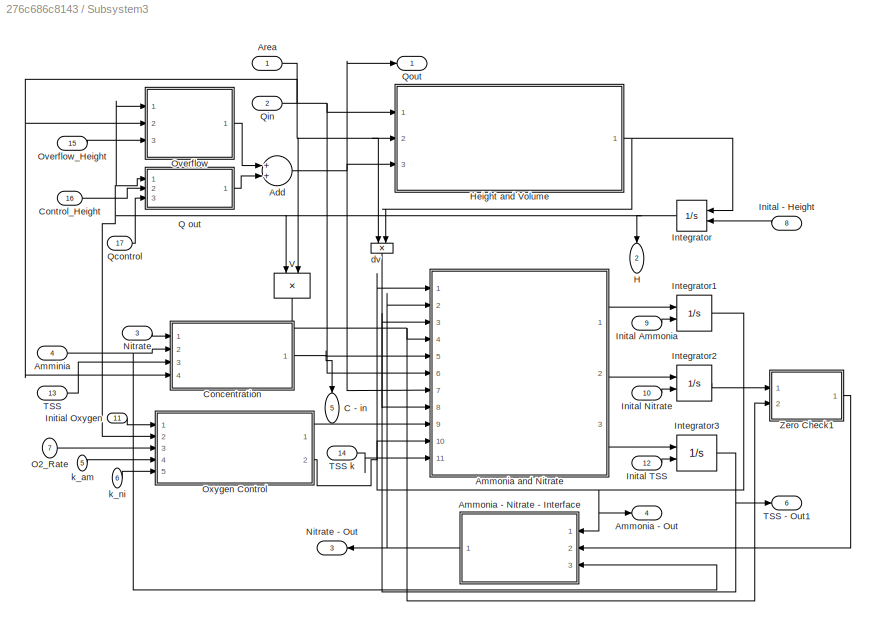
BLOCK [SubSystem] Subsystem3
  Ports = [17, 6]
  RequestExecContextInheritance = off
  Variant = off
BLOCK [SubSystem] Subsystem3/ Ammonia - Nitrate - Interface
  ErrorFcn = Stateflow.Translate.translate
  PermitHierarchicalResolution = ExplicitOnly
  Ports = [3, 1]
  RequestExecContextInheritance = off
  SFBlockType = MATLAB Function
  TreatAsAtomicUnit = on
  Variant = off
BLOCK [Demux] Subsystem3/ Ammonia - Nitrate - Interface/ Demux 
  Outputs = 1
  Ports = [1, 1]
BLOCK [S-Function] Subsystem3/ Ammonia - Nitrate - Interface/ SFunction 
  EnableBusSupport = on
  FunctionName = sf_sfun
  PortCounts = [3 2]
  Ports = [3, 2]
  SFunctionDeploymentMode = off
  Tag = Stateflow S-Function Global_Control 19
BLOCK [Terminator] Subsystem3/ Ammonia - Nitrate - Interface/ Terminator 
BLOCK [Inport] Subsystem3/ Ammonia - Nitrate - Interface/C_am
  IconDisplay = Port number
BLOCK [Outport] Subsystem3/ Ammonia - Nitrate - Interface/C_nit
  IconDisplay = Port number
BLOCK [Inport] Subsystem3/ Ammonia - Nitrate - Interface/Cam
  IconDisplay = Port number
  Port = 3
BLOCK [Inport] Subsystem3/ Ammonia - Nitrate - Interface/Cni
  IconDisplay = Port number
  Port = 2
BLOCK [SubSystem] Subsystem3/ Ammonia and Nitrate 
  ErrorFcn = Stateflow.Translate.translate
  PermitHierarchicalResolution = ExplicitOnly
  Ports = [11, 3]
  RequestExecContextInheritance = off
  SFBlockType = MATLAB Function
  TreatAsAtomicUnit = on
  Variant = off
BLOCK [Demux] Subsystem3/ Ammonia and Nitrate / Demux 
  Outputs = 1
  Ports = [1, 1]
BLOCK [S-Function] Subsystem3/ Ammonia and Nitrate / SFunction 
  EnableBusSupport = on
  FunctionName = sf_sfun
  PortCounts = [11 4]
  Ports = [11, 4]
  SFunctionDeploymentMode = off
  Tag = Stateflow S-Function Global_Control 20
BLOCK [Terminator] Subsystem3/ Ammonia and Nitrate / Terminator 
BLOCK [Inport] Subsystem3/ Ammonia and Nitrate /C1
  IconDisplay = Port number
BLOCK [Inport] Subsystem3/ Ammonia and Nitrate /C2
  IconDisplay = Port number
  Port = 2
BLOCK [Inport] Subsystem3/ Ammonia and Nitrate /C3
  IconDisplay = Port number
  Port = 3
BLOCK [Inport] Subsystem3/ Ammonia and Nitrate /Cint
  IconDisplay = Port number
  Port = 5
BLOCK [Inport] Subsystem3/ Ammonia and Nitrate /Qi
  IconDisplay = Port number
  Port = 6
BLOCK [Inport] Subsystem3/ Ammonia and Nitrate /Qout
  IconDisplay = Port number
  Port = 7
BLOCK [Outport] Subsystem3/ Ammonia and Nitrate /dc1
  IconDisplay = Port number
BLOCK [Outport] Subsystem3/ Ammonia and Nitrate /dc2
  IconDisplay = Port number
  Port = 2
BLOCK [Outport] Subsystem3/ Ammonia and Nitrate /dc3
  IconDisplay = Port number
  Port = 3
BLOCK [Inport] Subsystem3/ Ammonia and Nitrate /dv
  IconDisplay = Port number
  Port = 8
BLOCK [Inport] Subsystem3/ Ammonia and Nitrate /k_TSS
  IconDisplay = Port number
  Port = 11
BLOCK [Inport] Subsystem3/ Ammonia and Nitrate /k_am
  IconDisplay = Port number
  Port = 9
BLOCK [Inport] Subsystem3/ Ammonia and Nitrate /k_ni
  IconDisplay = Port number
  Port = 10
BLOCK [Inport] Subsystem3/ Ammonia and Nitrate /v
  IconDisplay = Port number
  Port = 4
BLOCK [SubSystem] Subsystem3/ Concentration 
  ErrorFcn = Stateflow.Translate.translate
  PermitHierarchicalResolution = ExplicitOnly
  Ports = [4, 1]
  RequestExecContextInheritance = off
  SFBlockType = MATLAB Function
  TreatAsAtomicUnit = on
  Variant = off
BLOCK [Demux] Subsystem3/ Concentration / Demux 
  Outputs = 1
  Ports = [1, 1]
BLOCK [S-Function] Subsystem3/ Concentration / SFunction 
  EnableBusSupport = on
  FunctionName = sf_sfun
  PortCounts = [4 2]
  Ports = [4, 2]
  SFunctionDeploymentMode = off
  Tag = Stateflow S-Function Global_Control 21
BLOCK [Terminator] Subsystem3/ Concentration / Terminator 
BLOCK [Inport] Subsystem3/ Concentration /Ammonia
  IconDisplay = Port number
  Port = 2
BLOCK [Outport] Subsystem3/ Concentration /C
  IconDisplay = Port number
BLOCK [Inport] Subsystem3/ Concentration /Nitrate
  IconDisplay = Port number
BLOCK [Inport] Subsystem3/ Concentration /Qin
  IconDisplay = Port number
  Port = 4
BLOCK [Inport] Subsystem3/ Concentration /TSS
  IconDisplay = Port number
  Port = 3
BLOCK [Sum] Subsystem3/Add
  InputSameDT = off
  OutDataTypeStr = Inherit: Inherit via internal rule
  Ports = [2, 1]
  SaturateOnIntegerOverflow = off
BLOCK [Inport] Subsystem3/Amminia
  IconDisplay = Port number
  Port = 4
BLOCK [Outport] Subsystem3/Ammonia - Out
  IconDisplay = Port number
  Port = 4
BLOCK [Inport] Subsystem3/Area
  IconDisplay = Port number
BLOCK [Outport] Subsystem3/C - in 
  IconDisplay = Port number
  Port = 5
BLOCK [Inport] Subsystem3/Control_Height
  IconDisplay = Port number
  Port = 16
BLOCK [Outport] Subsystem3/H
  IconDisplay = Port number
  Port = 2
BLOCK [SubSystem] Subsystem3/Height and Volume
  ErrorFcn = Stateflow.Translate.translate
  PermitHierarchicalResolution = ExplicitOnly
  Ports = [3, 1]
  RequestExecContextInheritance = off
  SFBlockType = MATLAB Function
  TreatAsAtomicUnit = on
  Variant = off
BLOCK [Demux] Subsystem3/Height and Volume/ Demux 
  Outputs = 1
  Ports = [1, 1]
BLOCK [S-Function] Subsystem3/Height and Volume/ SFunction 
  EnableBusSupport = on
  FunctionName = sf_sfun
  PortCounts = [3 2]
  Ports = [3, 2]
  SFunctionDeploymentMode = off
  Tag = Stateflow S-Function Global_Control 22
BLOCK [Terminator] Subsystem3/Height and Volume/ Terminator 
BLOCK [Inport] Subsystem3/Height and Volume/A
  IconDisplay = Port number
  Port = 2
BLOCK [Inport] Subsystem3/Height and Volume/Qin
  IconDisplay = Port number
BLOCK [Inport] Subsystem3/Height and Volume/Qout
  IconDisplay = Port number
  Port = 3
BLOCK [Outport] Subsystem3/Height and Volume/dH
  IconDisplay = Port number
BLOCK [Inport] Subsystem3/Inital - Height
  IconDisplay = Port number
  Port = 8
BLOCK [Inport] Subsystem3/Inital Ammonia
  IconDisplay = Port number
  Port = 9
BLOCK [Inport] Subsystem3/Inital Nitrate
  IconDisplay = Port number
  Port = 10
BLOCK [Inport] Subsystem3/Inital TSS
  IconDisplay = Port number
  Port = 12
BLOCK [Inport] Subsystem3/Initial Oxygen
  IconDisplay = Port number
  Port = 11
BLOCK [Integrator] Subsystem3/Integrator
  InitialCondition = 10
  InitialConditionSource = external
  LimitOutput = on
  LowerSaturationLimit = 0
  Ports = [2, 1]
BLOCK [Integrator] Subsystem3/Integrator1
  InitialConditionSource = external
  LimitOutput = on
  LowerSaturationLimit = 0
  Ports = [2, 1]
BLOCK [Integrator] Subsystem3/Integrator2
  InitialConditionSource = external
  LimitOutput = on
  LowerSaturationLimit = 0
  Ports = [2, 1]
BLOCK [Integrator] Subsystem3/Integrator3
  InitialConditionSource = external
  LimitOutput = on
  LowerSaturationLimit = 0
  Ports = [2, 1]
BLOCK [Inport] Subsystem3/Nitrate
  IconDisplay = Port number
  Port = 3
BLOCK [Outport] Subsystem3/Nitrate - Out
  IconDisplay = Port number
  Port = 3
BLOCK [Inport] Subsystem3/O2_Rate 
  IconDisplay = Port number
  Port = 7
BLOCK [SubSystem] Subsystem3/Overflow 
  ErrorFcn = Stateflow.Translate.translate
  PermitHierarchicalResolution = ExplicitOnly
  Ports = [3, 1]
  RequestExecContextInheritance = off
  SFBlockType = MATLAB Function
  TreatAsAtomicUnit = on
  Variant = off
BLOCK [Demux] Subsystem3/Overflow / Demux 
  Outputs = 1
  Ports = [1, 1]
BLOCK [S-Function] Subsystem3/Overflow / SFunction 
  EnableBusSupport = on
  FunctionName = sf_sfun
  PortCounts = [3 2]
  Ports = [3, 2]
  SFunctionDeploymentMode = off
  Tag = Stateflow S-Function Global_Control 23
BLOCK [Terminator] Subsystem3/Overflow / Terminator 
BLOCK [Inport] Subsystem3/Overflow /H
  IconDisplay = Port number
BLOCK [Inport] Subsystem3/Overflow /Overflow_Height
  IconDisplay = Port number
  Port = 3
BLOCK [Outport] Subsystem3/Overflow /Q_overflow
  IconDisplay = Port number
BLOCK [Inport] Subsystem3/Overflow /Qin
  IconDisplay = Port number
  Port = 2
BLOCK [Inport] Subsystem3/Overflow_Height
  IconDisplay = Port number
  Port = 15
BLOCK [SubSystem] Subsystem3/Oxygen Control
  Ports = [5, 2]
  RequestExecContextInheritance = off
  Variant = off
BLOCK [SubSystem] Subsystem3/Oxygen Control/ Oxygen Setpoint1
  ErrorFcn = Stateflow.Translate.translate
  PermitHierarchicalResolution = ExplicitOnly
  Ports = [1, 3]
  RequestExecContextInheritance = off
  SFBlockType = MATLAB Function
  TreatAsAtomicUnit = on
  Variant = off
BLOCK [Demux] Subsystem3/Oxygen Control/ Oxygen Setpoint1/ Demux 
  Outputs = 1
  Ports = [1, 1]
BLOCK [S-Function] Subsystem3/Oxygen Control/ Oxygen Setpoint1/ SFunction 
  EnableBusSupport = on
  FunctionName = sf_sfun
  PortCounts = [1 4]
  Ports = [1, 4]
  SFunctionDeploymentMode = off
  Tag = Stateflow S-Function Global_Control 24
BLOCK [Terminator] Subsystem3/Oxygen Control/ Oxygen Setpoint1/ Terminator 
BLOCK [Inport] Subsystem3/Oxygen Control/ Oxygen Setpoint1/Height
  IconDisplay = Port number
BLOCK [Outport] Subsystem3/Oxygen Control/ Oxygen Setpoint1/Integration_Control1
  IconDisplay = Port number
  Port = 2
BLOCK [Outport] Subsystem3/Oxygen Control/ Oxygen Setpoint1/Integration_Control2
  IconDisplay = Port number
  Port = 3
BLOCK [Outport] Subsystem3/Oxygen Control/ Oxygen Setpoint1/Intergration_Control
  IconDisplay = Port number
BLOCK [SubSystem] Subsystem3/Oxygen Control/0 to 0.25
  Ports = [5, 2]
  RequestExecContextInheritance = off
  Variant = off
BLOCK [SubSystem] Subsystem3/Oxygen Control/0 to 0.25/ Nitrate
  ErrorFcn = Stateflow.Translate.translate
  PermitHierarchicalResolution = ExplicitOnly
  Ports = [2, 1]
  RequestExecContextInheritance = off
  SFBlockType = MATLAB Function
  TreatAsAtomicUnit = on
  Variant = off
BLOCK [Demux] Subsystem3/Oxygen Control/0 to 0.25/ Nitrate/ Demux 
  Outputs = 1
  Ports = [1, 1]
BLOCK [S-Function] Subsystem3/Oxygen Control/0 to 0.25/ Nitrate/ SFunction 
  EnableBusSupport = on
  FunctionName = sf_sfun
  PortCounts = [2 2]
  Ports = [2, 2]
  SFunctionDeploymentMode = off
  Tag = Stateflow S-Function Global_Control 25
BLOCK [Terminator] Subsystem3/Oxygen Control/0 to 0.25/ Nitrate/ Terminator 
BLOCK [Inport] Subsystem3/Oxygen Control/0 to 0.25/ Nitrate/K_Nitr
  IconDisplay = Port number
  Port = 2
BLOCK [Outport] Subsystem3/Oxygen Control/0 to 0.25/ Nitrate/K_Nitrate
  IconDisplay = Port number
BLOCK [Inport] Subsystem3/Oxygen Control/0 to 0.25/ Nitrate/Oxygen_Level
  IconDisplay = Port number
BLOCK [SubSystem] Subsystem3/Oxygen Control/0 to 0.25/ Oxygen Control
  ErrorFcn = Stateflow.Translate.translate
  PermitHierarchicalResolution = ExplicitOnly
  Ports = [2, 1]
  RequestExecContextInheritance = off
  SFBlockType = MATLAB Function
  TreatAsAtomicUnit = on
  Variant = off
BLOCK [Demux] Subsystem3/Oxygen Control/0 to 0.25/ Oxygen Control/ Demux 
  Outputs = 1
  Ports = [1, 1]
BLOCK [S-Function] Subsystem3/Oxygen Control/0 to 0.25/ Oxygen Control/ SFunction 
  EnableBusSupport = on
  FunctionName = sf_sfun
  PortCounts = [2 2]
  Ports = [2, 2]
  SFunctionDeploymentMode = off
  Tag = Stateflow S-Function Global_Control 26
BLOCK [Terminator] Subsystem3/Oxygen Control/0 to 0.25/ Oxygen Control/ Terminator 
BLOCK [Inport] Subsystem3/Oxygen Control/0 to 0.25/ Oxygen Control/K
  IconDisplay = Port number
  Port = 2
BLOCK [Inport] Subsystem3/Oxygen Control/0 to 0.25/ Oxygen Control/c
  IconDisplay = Port number
BLOCK [Outport] Subsystem3/Oxygen Control/0 to 0.25/ Oxygen Control/dOxygen_Level
  IconDisplay = Port number
BLOCK [Product] Subsystem3/Oxygen Control/0 to 0.25/Ammonia
  InputSameDT = off
  OutDataTypeStr = Inherit: Inherit via internal rule
  Ports = [2, 1]
  RndMeth = Floor
  SaturateOnIntegerOverflow = off
BLOCK [Inport] Subsystem3/Oxygen Control/0 to 0.25/Ammonia k
  IconDisplay = Port number
  Port = 4
BLOCK [Outport] Subsystem3/Oxygen Control/0 to 0.25/Ammonia_k
  IconDisplay = Port number
BLOCK [Inport] Subsystem3/Oxygen Control/0 to 0.25/Constant
  IconDisplay = Port number
  Port = 3
BLOCK [Inport] Subsystem3/Oxygen Control/0 to 0.25/Inital Oxygen
  IconDisplay = Port number
BLOCK [Inport] Subsystem3/Oxygen Control/0 to 0.25/Integration Control
  IconDisplay = Port number
  Port = 2
BLOCK [Integrator] Subsystem3/Oxygen Control/0 to 0.25/Integrator3
  ExternalReset = level hold
  InitialCondition = 10
  InitialConditionSource = external
  Ports = [3, 1]
BLOCK [Inport] Subsystem3/Oxygen Control/0 to 0.25/K_nitr
  IconDisplay = Port number
  Port = 5
BLOCK [Outport] Subsystem3/Oxygen Control/0 to 0.25/Nitrate_k 
  IconDisplay = Port number
  Port = 2
BLOCK [SubSystem] Subsystem3/Oxygen Control/0.25 ro 0.75
  Ports = [5, 2]
  RequestExecContextInheritance = off
  Variant = off
BLOCK [SubSystem] Subsystem3/Oxygen Control/0.25 ro 0.75/ Nitrate
  ErrorFcn = Stateflow.Translate.translate
  PermitHierarchicalResolution = ExplicitOnly
  Ports = [2, 1]
  RequestExecContextInheritance = off
  SFBlockType = MATLAB Function
  TreatAsAtomicUnit = on
  Variant = off
BLOCK [Demux] Subsystem3/Oxygen Control/0.25 ro 0.75/ Nitrate/ Demux 
  Outputs = 1
  Ports = [1, 1]
BLOCK [S-Function] Subsystem3/Oxygen Control/0.25 ro 0.75/ Nitrate/ SFunction 
  EnableBusSupport = on
  FunctionName = sf_sfun
  PortCounts = [2 2]
  Ports = [2, 2]
  SFunctionDeploymentMode = off
  Tag = Stateflow S-Function Global_Control 43
BLOCK [Terminator] Subsystem3/Oxygen Control/0.25 ro 0.75/ Nitrate/ Terminator 
BLOCK [Inport] Subsystem3/Oxygen Control/0.25 ro 0.75/ Nitrate/K_Nitr
  IconDisplay = Port number
  Port = 2
BLOCK [Outport] Subsystem3/Oxygen Control/0.25 ro 0.75/ Nitrate/K_Nitrate
  IconDisplay = Port number
BLOCK [Inport] Subsystem3/Oxygen Control/0.25 ro 0.75/ Nitrate/Oxygen_Level
  IconDisplay = Port number
BLOCK [SubSystem] Subsystem3/Oxygen Control/0.25 ro 0.75/ Oxygen Control
  ErrorFcn = Stateflow.Translate.translate
  PermitHierarchicalResolution = ExplicitOnly
  Ports = [2, 1]
  RequestExecContextInheritance = off
  SFBlockType = MATLAB Function
  TreatAsAtomicUnit = on
  Variant = off
BLOCK [Demux] Subsystem3/Oxygen Control/0.25 ro 0.75/ Oxygen Control/ Demux 
  Outputs = 1
  Ports = [1, 1]
BLOCK [S-Function] Subsystem3/Oxygen Control/0.25 ro 0.75/ Oxygen Control/ SFunction 
  EnableBusSupport = on
  FunctionName = sf_sfun
  PortCounts = [2 2]
  Ports = [2, 2]
  SFunctionDeploymentMode = off
  Tag = Stateflow S-Function Global_Control 44
BLOCK [Terminator] Subsystem3/Oxygen Control/0.25 ro 0.75/ Oxygen Control/ Terminator 
BLOCK [Inport] Subsystem3/Oxygen Control/0.25 ro 0.75/ Oxygen Control/K
  IconDisplay = Port number
  Port = 2
BLOCK [Inport] Subsystem3/Oxygen Control/0.25 ro 0.75/ Oxygen Control/c
  IconDisplay = Port number
BLOCK [Outport] Subsystem3/Oxygen Control/0.25 ro 0.75/ Oxygen Control/dOxygen_Level
  IconDisplay = Port number
BLOCK [Product] Subsystem3/Oxygen Control/0.25 ro 0.75/Ammonia
  InputSameDT = off
  OutDataTypeStr = Inherit: Inherit via internal rule
  Ports = [2, 1]
  RndMeth = Floor
  SaturateOnIntegerOverflow = off
BLOCK [Inport] Subsystem3/Oxygen Control/0.25 ro 0.75/Ammonia k
  IconDisplay = Port number
  Port = 4
BLOCK [Outport] Subsystem3/Oxygen Control/0.25 ro 0.75/Ammonia_k
  IconDisplay = Port number
BLOCK [Inport] Subsystem3/Oxygen Control/0.25 ro 0.75/Constant
  IconDisplay = Port number
  Port = 3
BLOCK [Inport] Subsystem3/Oxygen Control/0.25 ro 0.75/Inital Oxygen
  IconDisplay = Port number
BLOCK [Inport] Subsystem3/Oxygen Control/0.25 ro 0.75/Integration Control
  IconDisplay = Port number
  Port = 2
BLOCK [Integrator] Subsystem3/Oxygen Control/0.25 ro 0.75/Integrator3
  ExternalReset = level hold
  InitialCondition = 10
  InitialConditionSource = external
  Ports = [3, 1]
BLOCK [Inport] Subsystem3/Oxygen Control/0.25 ro 0.75/K_nitr
  IconDisplay = Port number
  Port = 5
BLOCK [Outport] Subsystem3/Oxygen Control/0.25 ro 0.75/Nitrate_k 
  IconDisplay = Port number
  Port = 2
BLOCK [SubSystem] Subsystem3/Oxygen Control/0.75 
  Ports = [5, 2]
  RequestExecContextInheritance = off
  Variant = off
BLOCK [SubSystem] Subsystem3/Oxygen Control/0.75 / Nitrate
  ErrorFcn = Stateflow.Translate.translate
  PermitHierarchicalResolution = ExplicitOnly
  Ports = [2, 1]
  RequestExecContextInheritance = off
  SFBlockType = MATLAB Function
  TreatAsAtomicUnit = on
  Variant = off
BLOCK [Demux] Subsystem3/Oxygen Control/0.75 / Nitrate/ Demux 
  Outputs = 1
  Ports = [1, 1]
BLOCK [S-Function] Subsystem3/Oxygen Control/0.75 / Nitrate/ SFunction 
  EnableBusSupport = on
  FunctionName = sf_sfun
  PortCounts = [2 2]
  Ports = [2, 2]
  SFunctionDeploymentMode = off
  Tag = Stateflow S-Function Global_Control 45
BLOCK [Terminator] Subsystem3/Oxygen Control/0.75 / Nitrate/ Terminator 
BLOCK [Inport] Subsystem3/Oxygen Control/0.75 / Nitrate/K_Nitr
  IconDisplay = Port number
  Port = 2
BLOCK [Outport] Subsystem3/Oxygen Control/0.75 / Nitrate/K_Nitrate
  IconDisplay = Port number
BLOCK [Inport] Subsystem3/Oxygen Control/0.75 / Nitrate/Oxygen_Level
  IconDisplay = Port number
BLOCK [SubSystem] Subsystem3/Oxygen Control/0.75 / Oxygen Control
  ErrorFcn = Stateflow.Translate.translate
  PermitHierarchicalResolution = ExplicitOnly
  Ports = [2, 1]
  RequestExecContextInheritance = off
  SFBlockType = MATLAB Function
  TreatAsAtomicUnit = on
  Variant = off
BLOCK [Demux] Subsystem3/Oxygen Control/0.75 / Oxygen Control/ Demux 
  Outputs = 1
  Ports = [1, 1]
BLOCK [S-Function] Subsystem3/Oxygen Control/0.75 / Oxygen Control/ SFunction 
  EnableBusSupport = on
  FunctionName = sf_sfun
  PortCounts = [2 2]
  Ports = [2, 2]
  SFunctionDeploymentMode = off
  Tag = Stateflow S-Function Global_Control 46
BLOCK [Terminator] Subsystem3/Oxygen Control/0.75 / Oxygen Control/ Terminator 
BLOCK [Inport] Subsystem3/Oxygen Control/0.75 / Oxygen Control/K
  IconDisplay = Port number
  Port = 2
BLOCK [Inport] Subsystem3/Oxygen Control/0.75 / Oxygen Control/c
  IconDisplay = Port number
BLOCK [Outport] Subsystem3/Oxygen Control/0.75 / Oxygen Control/dOxygen_Level
  IconDisplay = Port number
BLOCK [Product] Subsystem3/Oxygen Control/0.75 /Ammonia
  InputSameDT = off
  OutDataTypeStr = Inherit: Inherit via internal rule
  Ports = [2, 1]
  RndMeth = Floor
  SaturateOnIntegerOverflow = off
BLOCK [Inport] Subsystem3/Oxygen Control/0.75 /Ammonia k
  IconDisplay = Port number
  Port = 4
BLOCK [Outport] Subsystem3/Oxygen Control/0.75 /Ammonia_k
  IconDisplay = Port number
BLOCK [Inport] Subsystem3/Oxygen Control/0.75 /Constant
  IconDisplay = Port number
  Port = 3
BLOCK [Inport] Subsystem3/Oxygen Control/0.75 /Inital Oxygen
  IconDisplay = Port number
BLOCK [Inport] Subsystem3/Oxygen Control/0.75 /Integration Control
  IconDisplay = Port number
  Port = 2
BLOCK [Integrator] Subsystem3/Oxygen Control/0.75 /Integrator3
  ExternalReset = level hold
  InitialCondition = 10
  InitialConditionSource = external
  Ports = [3, 1]
BLOCK [Inport] Subsystem3/Oxygen Control/0.75 /K_nitr
  IconDisplay = Port number
  Port = 5
BLOCK [Outport] Subsystem3/Oxygen Control/0.75 /Nitrate_k 
  IconDisplay = Port number
  Port = 2
BLOCK [Sum] Subsystem3/Oxygen Control/Add
  InputSameDT = off
  Inputs = 3
  OutDataTypeStr = Inherit: Inherit via internal rule
  Ports = [3, 1]
  SaturateOnIntegerOverflow = off
BLOCK [Sum] Subsystem3/Oxygen Control/Add1
  InputSameDT = off
  Inputs = 3
  OutDataTypeStr = Inherit: Inherit via internal rule
  Ports = [3, 1]
  SaturateOnIntegerOverflow = off
BLOCK [Outport] Subsystem3/Oxygen Control/Ammonia K
  IconDisplay = Port number
BLOCK [Inport] Subsystem3/Oxygen Control/Ammonia Rate 
  IconDisplay = Port number
  Port = 4
BLOCK [Inport] Subsystem3/Oxygen Control/Height
  IconDisplay = Port number
  Port = 2
BLOCK [Inport] Subsystem3/Oxygen Control/Initial Oxygen
  IconDisplay = Port number
BLOCK [Inport] Subsystem3/Oxygen Control/K - Nitrate
  IconDisplay = Port number
  Port = 5
BLOCK [Outport] Subsystem3/Oxygen Control/Nitrate K
  IconDisplay = Port number
  Port = 2
BLOCK [Inport] Subsystem3/Oxygen Control/Oxygen Consumption
  IconDisplay = Port number
  Port = 3
BLOCK [SubSystem] Subsystem3/Q out
  ErrorFcn = Stateflow.Translate.translate
  PermitHierarchicalResolution = ExplicitOnly
  Ports = [3, 1]
  RequestExecContextInheritance = off
  SFBlockType = MATLAB Function
  TreatAsAtomicUnit = on
  Variant = off
BLOCK [Demux] Subsystem3/Q out/ Demux 
  Outputs = 1
  Ports = [1, 1]
BLOCK [S-Function] Subsystem3/Q out/ SFunction 
  EnableBusSupport = on
  FunctionName = sf_sfun
  PortCounts = [3 2]
  Ports = [3, 2]
  SFunctionDeploymentMode = off
  Tag = Stateflow S-Function Global_Control 27
BLOCK [Terminator] Subsystem3/Q out/ Terminator 
BLOCK [Inport] Subsystem3/Q out/Control_Height
  IconDisplay = Port number
  Port = 2
BLOCK [Inport] Subsystem3/Q out/H
  IconDisplay = Port number
BLOCK [Outport] Subsystem3/Q out/Qout
  IconDisplay = Port number
BLOCK [Inport] Subsystem3/Q out/Qoutc
  IconDisplay = Port number
  Port = 3
BLOCK [Inport] Subsystem3/Qcontrol 
  IconDisplay = Port number
  Port = 17
BLOCK [Inport] Subsystem3/Qin
  IconDisplay = Port number
  Port = 2
BLOCK [Outport] Subsystem3/Qout
  IconDisplay = Port number
BLOCK [Inport] Subsystem3/TSS
  IconDisplay = Port number
  Port = 13
BLOCK [Outport] Subsystem3/TSS - Out1
  IconDisplay = Port number
  Port = 6
BLOCK [Inport] Subsystem3/TSS k 
  IconDisplay = Port number
  Port = 14
BLOCK [Product] Subsystem3/V
  InputSameDT = off
  OutDataTypeStr = Inherit: Inherit via internal rule
  Ports = [2, 1]
  RndMeth = Floor
  SaturateOnIntegerOverflow = off
BLOCK [SubSystem] Subsystem3/Zero Check1
  ErrorFcn = Stateflow.Translate.translate
  PermitHierarchicalResolution = ExplicitOnly
  Ports = [2, 1]
  RequestExecContextInheritance = off
  SFBlockType = MATLAB Function
  TreatAsAtomicUnit = on
  Variant = off
BLOCK [Demux] Subsystem3/Zero Check1/ Demux 
  Outputs = 1
  Ports = [1, 1]
BLOCK [S-Function] Subsystem3/Zero Check1/ SFunction 
  EnableBusSupport = on
  FunctionName = sf_sfun
  PortCounts = [2 2]
  Ports = [2, 2]
  SFunctionDeploymentMode = off
  Tag = Stateflow S-Function Global_Control 58
BLOCK [Terminator] Subsystem3/Zero Check1/ Terminator 
BLOCK [Inport] Subsystem3/Zero Check1/c
  IconDisplay = Port number
BLOCK [Outport] Subsystem3/Zero Check1/cout
  IconDisplay = Port number
BLOCK [Inport] Subsystem3/Zero Check1/v
  IconDisplay = Port number
  Port = 2
BLOCK [Product] Subsystem3/dv
  InputSameDT = off
  OutDataTypeStr = Inherit: Inherit via internal rule
  Ports = [2, 1]
  RndMeth = Floor
  SaturateOnIntegerOverflow = off
BLOCK [Inport] Subsystem3/k_am
  IconDisplay = Port number
  Port = 5
BLOCK [Inport] Subsystem3/k_ni
  IconDisplay = Port number
  Port = 6
BLOCK [ToWorkspace] To Workspace
  FixptAsFi = on
  MaxDataPoints = inf
  Ports = [1]
  SampleTime = -1
  Save2DSignal = 2-D array (concatenate along first dimension)
  VariableName = Nitrate_Pond1_control
BLOCK [ToWorkspace] To Workspace1
  FixptAsFi = on
  MaxDataPoints = inf
  Ports = [1]
  SampleTime = -1
  Save2DSignal = 3-D array (concatenate along third dimension)
  VariableName = Qout_Pond1_control
BLOCK [ToWorkspace] To Workspace10
  FixptAsFi = on
  MaxDataPoints = inf
  Ports = [1]
  SampleTime = -1
  Save2DSignal = 2-D array (concatenate along first dimension)
  VariableName = Height_Pond2_control
BLOCK [ToWorkspace] To Workspace11
  FixptAsFi = on
  MaxDataPoints = inf
  Ports = [1]
  SampleTime = -1
  Save2DSignal = 2-D array (concatenate along first dimension)
  VariableName = Height_Pond3_control
BLOCK [ToWorkspace] To Workspace12
  FixptAsFi = on
  MaxDataPoints = inf
  Ports = [1]
  SampleTime = -1
  Save2DSignal = 2-D array (concatenate along first dimension)
  VariableName = Height_Catachment_control
BLOCK [ToWorkspace] To Workspace13
  FixptAsFi = on
  MaxDataPoints = inf
  Ports = [1]
  SampleTime = -1
  Save2DSignal = 2-D array (concatenate along first dimension)
  VariableName = Flow_Control_in
BLOCK [ToWorkspace] To Workspace14
  FixptAsFi = on
  MaxDataPoints = inf
  Ports = [1]
  SampleTime = -1
  Save2DSignal = 2-D array (concatenate along first dimension)
  VariableName = Load_Pond1_control
BLOCK [ToWorkspace] To Workspace15
  FixptAsFi = on
  MaxDataPoints = inf
  Ports = [1]
  SampleTime = -1
  Save2DSignal = 2-D array (concatenate along first dimension)
  VariableName = Load_Pond2_control
BLOCK [ToWorkspace] To Workspace16
  FixptAsFi = on
  MaxDataPoints = inf
  Ports = [1]
  SampleTime = -1
  Save2DSignal = 2-D array (concatenate along first dimension)
  VariableName = Load_Pond3_control
BLOCK [ToWorkspace] To Workspace17
  FixptAsFi = on
  MaxDataPoints = inf
  Ports = [1]
  SampleTime = -1
  Save2DSignal = 2-D array (concatenate along first dimension)
  VariableName = Nitrate_Control_in1
BLOCK [ToWorkspace] To Workspace2
  FixptAsFi = on
  MaxDataPoints = inf
  Ports = [1]
  SampleTime = -1
  Save2DSignal = 2-D array (concatenate along first dimension)
  VariableName = Flow_Catchment_control
BLOCK [ToWorkspace] To Workspace3
  FixptAsFi = on
  MaxDataPoints = inf
  Ports = [1]
  SampleTime = -1
  Save2DSignal = 2-D array (concatenate along first dimension)
  VariableName = Nitrate_Pond2_control
BLOCK [ToWorkspace] To Workspace4
  FixptAsFi = on
  MaxDataPoints = inf
  Ports = [1]
  SampleTime = -1
  Save2DSignal = 2-D array (concatenate along first dimension)
  VariableName = Qout_Pond2_control
BLOCK [ToWorkspace] To Workspace5
  FixptAsFi = on
  MaxDataPoints = inf
  Ports = [1]
  SampleTime = -1
  Save2DSignal = 2-D array (concatenate along first dimension)
  VariableName = Load_Catchment_control
BLOCK [ToWorkspace] To Workspace6
  FixptAsFi = on
  MaxDataPoints = inf
  Ports = [1]
  SampleTime = -1
  Save2DSignal = 2-D array (concatenate along first dimension)
  VariableName = Nitrate_Catchment_control
BLOCK [ToWorkspace] To Workspace7
  FixptAsFi = on
  MaxDataPoints = inf
  Ports = [1]
  SampleTime = -1
  Save2DSignal = 2-D array (concatenate along first dimension)
  VariableName = Nitrate_Pond3_control
BLOCK [ToWorkspace] To Workspace8
  FixptAsFi = on
  MaxDataPoints = inf
  Ports = [1]
  SampleTime = -1
  Save2DSignal = 2-D array (concatenate along first dimension)
  VariableName = Qout_Pond3_control
BLOCK [ToWorkspace] To Workspace9
  FixptAsFi = on
  MaxDataPoints = inf
  Ports = [1]
  SampleTime = -1
  Save2DSignal = 2-D array (concatenate along first dimension)
  VariableName = Height_Pond1_control
BLOCK [SubSystem] Wetland
  Ports = [17, 6]
  RequestExecContextInheritance = off
  Variant = off
BLOCK [SubSystem] Wetland/ Ammonia - Nitrate - Interface
  ErrorFcn = Stateflow.Translate.translate
  PermitHierarchicalResolution = ExplicitOnly
  Ports = [3, 1]
  RequestExecContextInheritance = off
  SFBlockType = MATLAB Function
  TreatAsAtomicUnit = on
  Variant = off
BLOCK [Demux] Wetland/ Ammonia - Nitrate - Interface/ Demux 
  Outputs = 1
  Ports = [1, 1]
BLOCK [S-Function] Wetland/ Ammonia - Nitrate - Interface/ SFunction 
  EnableBusSupport = on
  FunctionName = sf_sfun
  PortCounts = [3 2]
  Ports = [3, 2]
  SFunctionDeploymentMode = off
  Tag = Stateflow S-Function Global_Control 1
BLOCK [Terminator] Wetland/ Ammonia - Nitrate - Interface/ Terminator 
BLOCK [Inport] Wetland/ Ammonia - Nitrate - Interface/C_am
  IconDisplay = Port number
BLOCK [Outport] Wetland/ Ammonia - Nitrate - Interface/C_nit
  IconDisplay = Port number
BLOCK [Inport] Wetland/ Ammonia - Nitrate - Interface/Cam
  IconDisplay = Port number
  Port = 3
BLOCK [Inport] Wetland/ Ammonia - Nitrate - Interface/Cni
  IconDisplay = Port number
  Port = 2
BLOCK [SubSystem] Wetland/ Ammonia and Nitrate 
  ErrorFcn = Stateflow.Translate.translate
  PermitHierarchicalResolution = ExplicitOnly
  Ports = [11, 3]
  RequestExecContextInheritance = off
  SFBlockType = MATLAB Function
  TreatAsAtomicUnit = on
  Variant = off
BLOCK [Demux] Wetland/ Ammonia and Nitrate / Demux 
  Outputs = 1
  Ports = [1, 1]
BLOCK [S-Function] Wetland/ Ammonia and Nitrate / SFunction 
  EnableBusSupport = on
  FunctionName = sf_sfun
  PortCounts = [11 4]
  Ports = [11, 4]
  SFunctionDeploymentMode = off
  Tag = Stateflow S-Function Global_Control 2
BLOCK [Terminator] Wetland/ Ammonia and Nitrate / Terminator 
BLOCK [Inport] Wetland/ Ammonia and Nitrate /C1
  IconDisplay = Port number
BLOCK [Inport] Wetland/ Ammonia and Nitrate /C2
  IconDisplay = Port number
  Port = 2
BLOCK [Inport] Wetland/ Ammonia and Nitrate /C3
  IconDisplay = Port number
  Port = 3
BLOCK [Inport] Wetland/ Ammonia and Nitrate /Cint
  IconDisplay = Port number
  Port = 5
BLOCK [Inport] Wetland/ Ammonia and Nitrate /Qi
  IconDisplay = Port number
  Port = 6
BLOCK [Inport] Wetland/ Ammonia and Nitrate /Qout
  IconDisplay = Port number
  Port = 7
BLOCK [Outport] Wetland/ Ammonia and Nitrate /dc1
  IconDisplay = Port number
BLOCK [Outport] Wetland/ Ammonia and Nitrate /dc2
  IconDisplay = Port number
  Port = 2
BLOCK [Outport] Wetland/ Ammonia and Nitrate /dc3
  IconDisplay = Port number
  Port = 3
BLOCK [Inport] Wetland/ Ammonia and Nitrate /dv
  IconDisplay = Port number
  Port = 8
BLOCK [Inport] Wetland/ Ammonia and Nitrate /k_TSS
  IconDisplay = Port number
  Port = 11
BLOCK [Inport] Wetland/ Ammonia and Nitrate /k_am
  IconDisplay = Port number
  Port = 9
BLOCK [Inport] Wetland/ Ammonia and Nitrate /k_ni
  IconDisplay = Port number
  Port = 10
BLOCK [Inport] Wetland/ Ammonia and Nitrate /v
  IconDisplay = Port number
  Port = 4
BLOCK [SubSystem] Wetland/ Concentration 
  ErrorFcn = Stateflow.Translate.translate
  PermitHierarchicalResolution = ExplicitOnly
  Ports = [4, 1]
  RequestExecContextInheritance = off
  SFBlockType = MATLAB Function
  TreatAsAtomicUnit = on
  Variant = off
BLOCK [Demux] Wetland/ Concentration / Demux 
  Outputs = 1
  Ports = [1, 1]
BLOCK [S-Function] Wetland/ Concentration / SFunction 
  EnableBusSupport = on
  FunctionName = sf_sfun
  PortCounts = [4 2]
  Ports = [4, 2]
  SFunctionDeploymentMode = off
  Tag = Stateflow S-Function Global_Control 3
BLOCK [Terminator] Wetland/ Concentration / Terminator 
BLOCK [Inport] Wetland/ Concentration /Ammonia
  IconDisplay = Port number
  Port = 2
BLOCK [Outport] Wetland/ Concentration /C
  IconDisplay = Port number
BLOCK [Inport] Wetland/ Concentration /Nitrate
  IconDisplay = Port number
BLOCK [Inport] Wetland/ Concentration /Qin
  IconDisplay = Port number
  Port = 4
BLOCK [Inport] Wetland/ Concentration /TSS
  IconDisplay = Port number
  Port = 3
BLOCK [Sum] Wetland/Add
  InputSameDT = off
  OutDataTypeStr = Inherit: Inherit via internal rule
  Ports = [2, 1]
  SaturateOnIntegerOverflow = off
BLOCK [Inport] Wetland/Amminia
  IconDisplay = Port number
  Port = 4
BLOCK [Outport] Wetland/Ammonia - Out
  IconDisplay = Port number
  Port = 4
BLOCK [Inport] Wetland/Area
  IconDisplay = Port number
BLOCK [Outport] Wetland/C - in 
  IconDisplay = Port number
  Port = 5
BLOCK [Inport] Wetland/Control_Height
  IconDisplay = Port number
  Port = 16
BLOCK [Outport] Wetland/H
  IconDisplay = Port number
  Port = 2
BLOCK [SubSystem] Wetland/Height and Volume
  ErrorFcn = Stateflow.Translate.translate
  PermitHierarchicalResolution = ExplicitOnly
  Ports = [3, 1]
  RequestExecContextInheritance = off
  SFBlockType = MATLAB Function
  TreatAsAtomicUnit = on
  Variant = off
BLOCK [Demux] Wetland/Height and Volume/ Demux 
  Outputs = 1
  Ports = [1, 1]
BLOCK [S-Function] Wetland/Height and Volume/ SFunction 
  EnableBusSupport = on
  FunctionName = sf_sfun
  PortCounts = [3 2]
  Ports = [3, 2]
  SFunctionDeploymentMode = off
  Tag = Stateflow S-Function Global_Control 4
BLOCK [Terminator] Wetland/Height and Volume/ Terminator 
BLOCK [Inport] Wetland/Height and Volume/A
  IconDisplay = Port number
  Port = 2
BLOCK [Inport] Wetland/Height and Volume/Qin
  IconDisplay = Port number
BLOCK [Inport] Wetland/Height and Volume/Qout
  IconDisplay = Port number
  Port = 3
BLOCK [Outport] Wetland/Height and Volume/dH
  IconDisplay = Port number
BLOCK [Inport] Wetland/Inital - Height
  IconDisplay = Port number
  Port = 8
BLOCK [Inport] Wetland/Inital Ammonia
  IconDisplay = Port number
  Port = 9
BLOCK [Inport] Wetland/Inital Nitrate
  IconDisplay = Port number
  Port = 10
BLOCK [Inport] Wetland/Inital TSS
  IconDisplay = Port number
  Port = 12
BLOCK [Inport] Wetland/Initial Oxygen
  IconDisplay = Port number
  Port = 11
BLOCK [Integrator] Wetland/Integrator
  InitialCondition = 10
  InitialConditionSource = external
  LimitOutput = on
  LowerSaturationLimit = 0
  Ports = [2, 1]
BLOCK [Integrator] Wetland/Integrator1
  InitialConditionSource = external
  LimitOutput = on
  LowerSaturationLimit = 0
  Ports = [2, 1]
BLOCK [Integrator] Wetland/Integrator2
  InitialConditionSource = external
  LimitOutput = on
  LowerSaturationLimit = 0
  Ports = [2, 1]
BLOCK [Integrator] Wetland/Integrator3
  InitialConditionSource = external
  LimitOutput = on
  LowerSaturationLimit = 0
  Ports = [2, 1]
BLOCK [Inport] Wetland/Nitrate
  IconDisplay = Port number
  Port = 3
BLOCK [Outport] Wetland/Nitrate - Out
  IconDisplay = Port number
  Port = 3
BLOCK [Inport] Wetland/O2_Rate 
  IconDisplay = Port number
  Port = 7
BLOCK [SubSystem] Wetland/Overflow 
  ErrorFcn = Stateflow.Translate.translate
  PermitHierarchicalResolution = ExplicitOnly
  Ports = [3, 1]
  RequestExecContextInheritance = off
  SFBlockType = MATLAB Function
  TreatAsAtomicUnit = on
  Variant = off
BLOCK [Demux] Wetland/Overflow / Demux 
  Outputs = 1
  Ports = [1, 1]
BLOCK [S-Function] Wetland/Overflow / SFunction 
  EnableBusSupport = on
  FunctionName = sf_sfun
  PortCounts = [3 2]
  Ports = [3, 2]
  SFunctionDeploymentMode = off
  Tag = Stateflow S-Function Global_Control 5
BLOCK [Terminator] Wetland/Overflow / Terminator 
BLOCK [Inport] Wetland/Overflow /H
  IconDisplay = Port number
BLOCK [Inport] Wetland/Overflow /Overflow_Height
  IconDisplay = Port number
  Port = 3
BLOCK [Outport] Wetland/Overflow /Q_overflow
  IconDisplay = Port number
BLOCK [Inport] Wetland/Overflow /Qin
  IconDisplay = Port number
  Port = 2
BLOCK [Inport] Wetland/Overflow_Height
  IconDisplay = Port number
  Port = 15
BLOCK [SubSystem] Wetland/Oxygen Control
  Ports = [5, 2]
  RequestExecContextInheritance = off
  Variant = off
BLOCK [SubSystem] Wetland/Oxygen Control/ Oxygen Setpoint1
  ErrorFcn = Stateflow.Translate.translate
  PermitHierarchicalResolution = ExplicitOnly
  Ports = [1, 4]
  RequestExecContextInheritance = off
  SFBlockType = MATLAB Function
  TreatAsAtomicUnit = on
  Variant = off
BLOCK [Demux] Wetland/Oxygen Control/ Oxygen Setpoint1/ Demux 
  Outputs = 1
  Ports = [1, 1]
BLOCK [S-Function] Wetland/Oxygen Control/ Oxygen Setpoint1/ SFunction 
  EnableBusSupport = on
  FunctionName = sf_sfun
  PortCounts = [1 5]
  Ports = [1, 5]
  SFunctionDeploymentMode = off
  Tag = Stateflow S-Function Global_Control 6
BLOCK [Terminator] Wetland/Oxygen Control/ Oxygen Setpoint1/ Terminator 
BLOCK [Inport] Wetland/Oxygen Control/ Oxygen Setpoint1/Height
  IconDisplay = Port number
BLOCK [Outport] Wetland/Oxygen Control/ Oxygen Setpoint1/Integration_Control1
  IconDisplay = Port number
  Port = 2
BLOCK [Outport] Wetland/Oxygen Control/ Oxygen Setpoint1/Integration_Control2
  IconDisplay = Port number
  Port = 3
BLOCK [Outport] Wetland/Oxygen Control/ Oxygen Setpoint1/Integration_Control3
  IconDisplay = Port number
  Port = 4
BLOCK [Outport] Wetland/Oxygen Control/ Oxygen Setpoint1/Intergration_Control
  IconDisplay = Port number
BLOCK [SubSystem] Wetland/Oxygen Control/0 to 0.25
  Ports = [5, 2]
  RequestExecContextInheritance = off
  Variant = off
BLOCK [SubSystem] Wetland/Oxygen Control/0 to 0.25/ Nitrate
  ErrorFcn = Stateflow.Translate.translate
  PermitHierarchicalResolution = ExplicitOnly
  Ports = [2, 1]
  RequestExecContextInheritance = off
  SFBlockType = MATLAB Function
  TreatAsAtomicUnit = on
  Variant = off
BLOCK [Demux] Wetland/Oxygen Control/0 to 0.25/ Nitrate/ Demux 
  Outputs = 1
  Ports = [1, 1]
BLOCK [S-Function] Wetland/Oxygen Control/0 to 0.25/ Nitrate/ SFunction 
  EnableBusSupport = on
  FunctionName = sf_sfun
  PortCounts = [2 2]
  Ports = [2, 2]
  SFunctionDeploymentMode = off
  Tag = Stateflow S-Function Global_Control 7
BLOCK [Terminator] Wetland/Oxygen Control/0 to 0.25/ Nitrate/ Terminator 
BLOCK [Inport] Wetland/Oxygen Control/0 to 0.25/ Nitrate/K_Nitr
  IconDisplay = Port number
  Port = 2
BLOCK [Outport] Wetland/Oxygen Control/0 to 0.25/ Nitrate/K_Nitrate
  IconDisplay = Port number
BLOCK [Inport] Wetland/Oxygen Control/0 to 0.25/ Nitrate/Oxygen_Level
  IconDisplay = Port number
BLOCK [SubSystem] Wetland/Oxygen Control/0 to 0.25/ Oxygen Control
  ErrorFcn = Stateflow.Translate.translate
  PermitHierarchicalResolution = ExplicitOnly
  Ports = [2, 1]
  RequestExecContextInheritance = off
  SFBlockType = MATLAB Function
  TreatAsAtomicUnit = on
  Variant = off
BLOCK [Demux] Wetland/Oxygen Control/0 to 0.25/ Oxygen Control/ Demux 
  Outputs = 1
  Ports = [1, 1]
BLOCK [S-Function] Wetland/Oxygen Control/0 to 0.25/ Oxygen Control/ SFunction 
  EnableBusSupport = on
  FunctionName = sf_sfun
  PortCounts = [2 2]
  Ports = [2, 2]
  SFunctionDeploymentMode = off
  Tag = Stateflow S-Function Global_Control 14
BLOCK [Terminator] Wetland/Oxygen Control/0 to 0.25/ Oxygen Control/ Terminator 
BLOCK [Inport] Wetland/Oxygen Control/0 to 0.25/ Oxygen Control/K
  IconDisplay = Port number
  Port = 2
BLOCK [Inport] Wetland/Oxygen Control/0 to 0.25/ Oxygen Control/c
  IconDisplay = Port number
BLOCK [Outport] Wetland/Oxygen Control/0 to 0.25/ Oxygen Control/dOxygen_Level
  IconDisplay = Port number
BLOCK [Product] Wetland/Oxygen Control/0 to 0.25/Ammonia
  InputSameDT = off
  OutDataTypeStr = Inherit: Inherit via internal rule
  Ports = [2, 1]
  RndMeth = Floor
  SaturateOnIntegerOverflow = off
BLOCK [Inport] Wetland/Oxygen Control/0 to 0.25/Ammonia k
  IconDisplay = Port number
  Port = 4
BLOCK [Outport] Wetland/Oxygen Control/0 to 0.25/Ammonia_k
  IconDisplay = Port number
BLOCK [Inport] Wetland/Oxygen Control/0 to 0.25/Constant
  IconDisplay = Port number
  Port = 3
BLOCK [Inport] Wetland/Oxygen Control/0 to 0.25/Inital Oxygen
  IconDisplay = Port number
BLOCK [Inport] Wetland/Oxygen Control/0 to 0.25/Integration Control
  IconDisplay = Port number
  Port = 2
BLOCK [Integrator] Wetland/Oxygen Control/0 to 0.25/Integrator3
  ExternalReset = level hold
  InitialCondition = 10
  InitialConditionSource = external
  Ports = [3, 1]
BLOCK [Inport] Wetland/Oxygen Control/0 to 0.25/K_nitr
  IconDisplay = Port number
  Port = 5
BLOCK [Outport] Wetland/Oxygen Control/0 to 0.25/Nitrate_k 
  IconDisplay = Port number
  Port = 2
BLOCK [SubSystem] Wetland/Oxygen Control/0.25 ro 0.75
  Ports = [5, 2]
  RequestExecContextInheritance = off
  Variant = off
BLOCK [SubSystem] Wetland/Oxygen Control/0.25 ro 0.75/ Nitrate
  ErrorFcn = Stateflow.Translate.translate
  PermitHierarchicalResolution = ExplicitOnly
  Ports = [2, 1]
  RequestExecContextInheritance = off
  SFBlockType = MATLAB Function
  TreatAsAtomicUnit = on
  Variant = off
BLOCK [Demux] Wetland/Oxygen Control/0.25 ro 0.75/ Nitrate/ Demux 
  Outputs = 1
  Ports = [1, 1]
BLOCK [S-Function] Wetland/Oxygen Control/0.25 ro 0.75/ Nitrate/ SFunction 
  EnableBusSupport = on
  FunctionName = sf_sfun
  PortCounts = [2 2]
  Ports = [2, 2]
  SFunctionDeploymentMode = off
  Tag = Stateflow S-Function Global_Control 51
BLOCK [Terminator] Wetland/Oxygen Control/0.25 ro 0.75/ Nitrate/ Terminator 
BLOCK [Inport] Wetland/Oxygen Control/0.25 ro 0.75/ Nitrate/K_Nitr
  IconDisplay = Port number
  Port = 2
BLOCK [Outport] Wetland/Oxygen Control/0.25 ro 0.75/ Nitrate/K_Nitrate
  IconDisplay = Port number
BLOCK [Inport] Wetland/Oxygen Control/0.25 ro 0.75/ Nitrate/Oxygen_Level
  IconDisplay = Port number
BLOCK [SubSystem] Wetland/Oxygen Control/0.25 ro 0.75/ Oxygen Control
  ErrorFcn = Stateflow.Translate.translate
  PermitHierarchicalResolution = ExplicitOnly
  Ports = [2, 1]
  RequestExecContextInheritance = off
  SFBlockType = MATLAB Function
  TreatAsAtomicUnit = on
  Variant = off
BLOCK [Demux] Wetland/Oxygen Control/0.25 ro 0.75/ Oxygen Control/ Demux 
  Outputs = 1
  Ports = [1, 1]
BLOCK [S-Function] Wetland/Oxygen Control/0.25 ro 0.75/ Oxygen Control/ SFunction 
  EnableBusSupport = on
  FunctionName = sf_sfun
  PortCounts = [2 2]
  Ports = [2, 2]
  SFunctionDeploymentMode = off
  Tag = Stateflow S-Function Global_Control 52
BLOCK [Terminator] Wetland/Oxygen Control/0.25 ro 0.75/ Oxygen Control/ Terminator 
BLOCK [Inport] Wetland/Oxygen Control/0.25 ro 0.75/ Oxygen Control/K
  IconDisplay = Port number
  Port = 2
BLOCK [Inport] Wetland/Oxygen Control/0.25 ro 0.75/ Oxygen Control/c
  IconDisplay = Port number
BLOCK [Outport] Wetland/Oxygen Control/0.25 ro 0.75/ Oxygen Control/dOxygen_Level
  IconDisplay = Port number
BLOCK [Product] Wetland/Oxygen Control/0.25 ro 0.75/Ammonia
  InputSameDT = off
  OutDataTypeStr = Inherit: Inherit via internal rule
  Ports = [2, 1]
  RndMeth = Floor
  SaturateOnIntegerOverflow = off
BLOCK [Inport] Wetland/Oxygen Control/0.25 ro 0.75/Ammonia k
  IconDisplay = Port number
  Port = 4
BLOCK [Outport] Wetland/Oxygen Control/0.25 ro 0.75/Ammonia_k
  IconDisplay = Port number
BLOCK [Inport] Wetland/Oxygen Control/0.25 ro 0.75/Constant
  IconDisplay = Port number
  Port = 3
BLOCK [Inport] Wetland/Oxygen Control/0.25 ro 0.75/Inital Oxygen
  IconDisplay = Port number
BLOCK [Inport] Wetland/Oxygen Control/0.25 ro 0.75/Integration Control
  IconDisplay = Port number
  Port = 2
BLOCK [Integrator] Wetland/Oxygen Control/0.25 ro 0.75/Integrator3
  ExternalReset = level hold
  InitialCondition = 10
  InitialConditionSource = external
  Ports = [3, 1]
BLOCK [Inport] Wetland/Oxygen Control/0.25 ro 0.75/K_nitr
  IconDisplay = Port number
  Port = 5
BLOCK [Outport] Wetland/Oxygen Control/0.25 ro 0.75/Nitrate_k 
  IconDisplay = Port number
  Port = 2
BLOCK [SubSystem] Wetland/Oxygen Control/0.75 
  Ports = [5, 2]
  RequestExecContextInheritance = off
  Variant = off
BLOCK [SubSystem] Wetland/Oxygen Control/0.75 / Nitrate
  ErrorFcn = Stateflow.Translate.translate
  PermitHierarchicalResolution = ExplicitOnly
  Ports = [2, 1]
  RequestExecContextInheritance = off
  SFBlockType = MATLAB Function
  TreatAsAtomicUnit = on
  Variant = off
BLOCK [Demux] Wetland/Oxygen Control/0.75 / Nitrate/ Demux 
  Outputs = 1
  Ports = [1, 1]
BLOCK [S-Function] Wetland/Oxygen Control/0.75 / Nitrate/ SFunction 
  EnableBusSupport = on
  FunctionName = sf_sfun
  PortCounts = [2 2]
  Ports = [2, 2]
  SFunctionDeploymentMode = off
  Tag = Stateflow S-Function Global_Control 53
BLOCK [Terminator] Wetland/Oxygen Control/0.75 / Nitrate/ Terminator 
BLOCK [Inport] Wetland/Oxygen Control/0.75 / Nitrate/K_Nitr
  IconDisplay = Port number
  Port = 2
BLOCK [Outport] Wetland/Oxygen Control/0.75 / Nitrate/K_Nitrate
  IconDisplay = Port number
BLOCK [Inport] Wetland/Oxygen Control/0.75 / Nitrate/Oxygen_Level
  IconDisplay = Port number
BLOCK [SubSystem] Wetland/Oxygen Control/0.75 / Oxygen Control
  ErrorFcn = Stateflow.Translate.translate
  PermitHierarchicalResolution = ExplicitOnly
  Ports = [2, 1]
  RequestExecContextInheritance = off
  SFBlockType = MATLAB Function
  TreatAsAtomicUnit = on
  Variant = off
BLOCK [Demux] Wetland/Oxygen Control/0.75 / Oxygen Control/ Demux 
  Outputs = 1
  Ports = [1, 1]
BLOCK [S-Function] Wetland/Oxygen Control/0.75 / Oxygen Control/ SFunction 
  EnableBusSupport = on
  FunctionName = sf_sfun
  PortCounts = [2 2]
  Ports = [2, 2]
  SFunctionDeploymentMode = off
  Tag = Stateflow S-Function Global_Control 54
BLOCK [Terminator] Wetland/Oxygen Control/0.75 / Oxygen Control/ Terminator 
BLOCK [Inport] Wetland/Oxygen Control/0.75 / Oxygen Control/K
  IconDisplay = Port number
  Port = 2
BLOCK [Inport] Wetland/Oxygen Control/0.75 / Oxygen Control/c
  IconDisplay = Port number
BLOCK [Outport] Wetland/Oxygen Control/0.75 / Oxygen Control/dOxygen_Level
  IconDisplay = Port number
BLOCK [Product] Wetland/Oxygen Control/0.75 /Ammonia
  InputSameDT = off
  OutDataTypeStr = Inherit: Inherit via internal rule
  Ports = [2, 1]
  RndMeth = Floor
  SaturateOnIntegerOverflow = off
BLOCK [Inport] Wetland/Oxygen Control/0.75 /Ammonia k
  IconDisplay = Port number
  Port = 4
BLOCK [Outport] Wetland/Oxygen Control/0.75 /Ammonia_k
  IconDisplay = Port number
BLOCK [Inport] Wetland/Oxygen Control/0.75 /Constant
  IconDisplay = Port number
  Port = 3
BLOCK [Inport] Wetland/Oxygen Control/0.75 /Inital Oxygen
  IconDisplay = Port number
BLOCK [Inport] Wetland/Oxygen Control/0.75 /Integration Control
  IconDisplay = Port number
  Port = 2
BLOCK [Integrator] Wetland/Oxygen Control/0.75 /Integrator3
  ExternalReset = level hold
  InitialCondition = 10
  InitialConditionSource = external
  Ports = [3, 1]
BLOCK [Inport] Wetland/Oxygen Control/0.75 /K_nitr
  IconDisplay = Port number
  Port = 5
BLOCK [Outport] Wetland/Oxygen Control/0.75 /Nitrate_k 
  IconDisplay = Port number
  Port = 2
BLOCK [SubSystem] Wetland/Oxygen Control/0.75 1
  Ports = [5, 2]
  RequestExecContextInheritance = off
  Variant = off
BLOCK [SubSystem] Wetland/Oxygen Control/0.75 1/ Nitrate
  ErrorFcn = Stateflow.Translate.translate
  PermitHierarchicalResolution = ExplicitOnly
  Ports = [2, 1]
  RequestExecContextInheritance = off
  SFBlockType = MATLAB Function
  TreatAsAtomicUnit = on
  Variant = off
BLOCK [Demux] Wetland/Oxygen Control/0.75 1/ Nitrate/ Demux 
  Outputs = 1
  Ports = [1, 1]
BLOCK [S-Function] Wetland/Oxygen Control/0.75 1/ Nitrate/ SFunction 
  EnableBusSupport = on
  FunctionName = sf_sfun
  PortCounts = [2 2]
  Ports = [2, 2]
  SFunctionDeploymentMode = off
  Tag = Stateflow S-Function Global_Control 55
BLOCK [Terminator] Wetland/Oxygen Control/0.75 1/ Nitrate/ Terminator 
BLOCK [Inport] Wetland/Oxygen Control/0.75 1/ Nitrate/K_Nitr
  IconDisplay = Port number
  Port = 2
BLOCK [Outport] Wetland/Oxygen Control/0.75 1/ Nitrate/K_Nitrate
  IconDisplay = Port number
BLOCK [Inport] Wetland/Oxygen Control/0.75 1/ Nitrate/Oxygen_Level
  IconDisplay = Port number
BLOCK [SubSystem] Wetland/Oxygen Control/0.75 1/ Oxygen Control
  ErrorFcn = Stateflow.Translate.translate
  PermitHierarchicalResolution = ExplicitOnly
  Ports = [2, 1]
  RequestExecContextInheritance = off
  SFBlockType = MATLAB Function
  TreatAsAtomicUnit = on
  Variant = off
BLOCK [Demux] Wetland/Oxygen Control/0.75 1/ Oxygen Control/ Demux 
  Outputs = 1
  Ports = [1, 1]
BLOCK [S-Function] Wetland/Oxygen Control/0.75 1/ Oxygen Control/ SFunction 
  EnableBusSupport = on
  FunctionName = sf_sfun
  PortCounts = [2 2]
  Ports = [2, 2]
  SFunctionDeploymentMode = off
  Tag = Stateflow S-Function Global_Control 56
BLOCK [Terminator] Wetland/Oxygen Control/0.75 1/ Oxygen Control/ Terminator 
BLOCK [Inport] Wetland/Oxygen Control/0.75 1/ Oxygen Control/K
  IconDisplay = Port number
  Port = 2
BLOCK [Inport] Wetland/Oxygen Control/0.75 1/ Oxygen Control/c
  IconDisplay = Port number
BLOCK [Outport] Wetland/Oxygen Control/0.75 1/ Oxygen Control/dOxygen_Level
  IconDisplay = Port number
BLOCK [Product] Wetland/Oxygen Control/0.75 1/Ammonia
  InputSameDT = off
  OutDataTypeStr = Inherit: Inherit via internal rule
  Ports = [2, 1]
  RndMeth = Floor
  SaturateOnIntegerOverflow = off
BLOCK [Inport] Wetland/Oxygen Control/0.75 1/Ammonia k
  IconDisplay = Port number
  Port = 4
BLOCK [Outport] Wetland/Oxygen Control/0.75 1/Ammonia_k
  IconDisplay = Port number
BLOCK [Inport] Wetland/Oxygen Control/0.75 1/Constant
  IconDisplay = Port number
  Port = 3
BLOCK [Inport] Wetland/Oxygen Control/0.75 1/Inital Oxygen
  IconDisplay = Port number
BLOCK [Inport] Wetland/Oxygen Control/0.75 1/Integration Control
  IconDisplay = Port number
  Port = 2
BLOCK [Integrator] Wetland/Oxygen Control/0.75 1/Integrator3
  ExternalReset = level hold
  InitialCondition = 10
  InitialConditionSource = external
  Ports = [3, 1]
BLOCK [Inport] Wetland/Oxygen Control/0.75 1/K_nitr
  IconDisplay = Port number
  Port = 5
BLOCK [Outport] Wetland/Oxygen Control/0.75 1/Nitrate_k 
  IconDisplay = Port number
  Port = 2
BLOCK [Sum] Wetland/Oxygen Control/Add
  InputSameDT = off
  Inputs = 4
  OutDataTypeStr = Inherit: Inherit via internal rule
  Ports = [4, 1]
  SaturateOnIntegerOverflow = off
BLOCK [Sum] Wetland/Oxygen Control/Add1
  InputSameDT = off
  Inputs = 4
  OutDataTypeStr = Inherit: Inherit via internal rule
  Ports = [4, 1]
  SaturateOnIntegerOverflow = off
BLOCK [Outport] Wetland/Oxygen Control/Ammonia K
  IconDisplay = Port number
BLOCK [Inport] Wetland/Oxygen Control/Ammonia Rate 
  IconDisplay = Port number
  Port = 4
BLOCK [Inport] Wetland/Oxygen Control/Height
  IconDisplay = Port number
  Port = 2
BLOCK [Inport] Wetland/Oxygen Control/Initial Oxygen
  IconDisplay = Port number
BLOCK [Inport] Wetland/Oxygen Control/K - Nitrate
  IconDisplay = Port number
  Port = 5
BLOCK [Outport] Wetland/Oxygen Control/Nitrate K
  IconDisplay = Port number
  Port = 2
BLOCK [Inport] Wetland/Oxygen Control/Oxygen Consumption
  IconDisplay = Port number
  Port = 3
BLOCK [SubSystem] Wetland/Q out
  ErrorFcn = Stateflow.Translate.translate
  PermitHierarchicalResolution = ExplicitOnly
  Ports = [3, 1]
  RequestExecContextInheritance = off
  SFBlockType = MATLAB Function
  TreatAsAtomicUnit = on
  Variant = off
BLOCK [Demux] Wetland/Q out/ Demux 
  Outputs = 1
  Ports = [1, 1]
BLOCK [S-Function] Wetland/Q out/ SFunction 
  EnableBusSupport = on
  FunctionName = sf_sfun
  PortCounts = [3 2]
  Ports = [3, 2]
  SFunctionDeploymentMode = off
  Tag = Stateflow S-Function Global_Control 16
BLOCK [Terminator] Wetland/Q out/ Terminator 
BLOCK [Inport] Wetland/Q out/Control_Height
  IconDisplay = Port number
  Port = 2
BLOCK [Inport] Wetland/Q out/H
  IconDisplay = Port number
BLOCK [Outport] Wetland/Q out/Qout
  IconDisplay = Port number
BLOCK [Inport] Wetland/Q out/Weir_height
  IconDisplay = Port number
  Port = 3
BLOCK [Inport] Wetland/Qin
  IconDisplay = Port number
  Port = 2
BLOCK [Outport] Wetland/Qout
  IconDisplay = Port number
BLOCK [Inport] Wetland/TSS
  IconDisplay = Port number
  Port = 13
BLOCK [Outport] Wetland/TSS - Out1
  IconDisplay = Port number
  Port = 6
BLOCK [Inport] Wetland/TSS k 
  IconDisplay = Port number
  Port = 14
BLOCK [Product] Wetland/V
  InputSameDT = off
  OutDataTypeStr = Inherit: Inherit via internal rule
  Ports = [2, 1]
  RndMeth = Floor
  SaturateOnIntegerOverflow = off
BLOCK [Inport] Wetland/Weir Height
  IconDisplay = Port number
  Port = 17
BLOCK [SubSystem] Wetland/Zero Check
  ErrorFcn = Stateflow.Translate.translate
  PermitHierarchicalResolution = ExplicitOnly
  Ports = [2, 1]
  RequestExecContextInheritance = off
  SFBlockType = MATLAB Function
  TreatAsAtomicUnit = on
  Variant = off
BLOCK [Demux] Wetland/Zero Check/ Demux 
  Outputs = 1
  Ports = [1, 1]
BLOCK [S-Function] Wetland/Zero Check/ SFunction 
  EnableBusSupport = on
  FunctionName = sf_sfun
  PortCounts = [2 2]
  Ports = [2, 2]
  SFunctionDeploymentMode = off
  Tag = Stateflow S-Function Global_Control 63
BLOCK [Terminator] Wetland/Zero Check/ Terminator 
BLOCK [Inport] Wetland/Zero Check/c
  IconDisplay = Port number
BLOCK [Outport] Wetland/Zero Check/cout
  IconDisplay = Port number
BLOCK [Inport] Wetland/Zero Check/v
  IconDisplay = Port number
  Port = 2
BLOCK [Product] Wetland/dv
  InputSameDT = off
  OutDataTypeStr = Inherit: Inherit via internal rule
  Ports = [2, 1]
  RndMeth = Floor
  SaturateOnIntegerOverflow = off
BLOCK [Inport] Wetland/k_am
  IconDisplay = Port number
  Port = 5
BLOCK [Inport] Wetland/k_ni
  IconDisplay = Port number
  Port = 6
LINE  Amm1:1 -> Subsystem1:9
LINE  Amm2:1 -> Wetland:9
LINE  Amm3:1 -> Subsystem2:9
LINE  Amm4:1 -> Subsystem1:14
LINE  Amm5:1 -> Subsystem1:13
LINE  Amm:1 -> Subsystem3:9
LINE Ammonia1:1 -> Subsystem3:5
LINE Ammonia2:1 -> Subsystem1:5
LINE Ammonia3:1 -> Wetland:5
LINE Ammonia4:1 -> Subsystem2:5
LINE Constant1:1 -> Subsystem1:1
LINE Constant2:1 -> Subsystem1:4
LINE Constant3:1 -> Subsystem3:4
LINE Constant4:1 -> Wetland:1
LINE Constant5:1 -> Subsystem2:1
LINE Constant6:1 -> Subsystem2:4
LINE Constant:1 -> Subsystem3:1
NET Controller1:1 -> Qout 1:1, Subsystem3:17
LINE Controller1:2 -> Subsystem1:17
LINE From Workspace1:1 -> Subsystem1:2
LINE From Workspace2:1 -> Subsystem3:3
LINE From Workspace3:1 -> Subsystem1:3
LINE From Workspace4:1 -> Subsystem2:2
LINE From Workspace5:1 -> Subsystem2:3
LINE From Workspace:1 -> Subsystem3:2
LINE Ini H 1:1 -> Subsystem1:8
LINE Ini H 2:1 -> Wetland:8
LINE Ini H 3:1 -> Subsystem2:8
LINE Ini H :1 -> Subsystem3:8
NET MATLAB Function:1 -> Qout 3:1, To Workspace13:1, Wetland:2
NET MATLAB Function:2 -> Qout 5:1, To Workspace17:1, Wetland:3
LINE Ni10:1 -> Subsystem3:13
LINE Ni11:1 -> Subsystem2:14
LINE Ni12:1 -> Subsystem2:13
LINE Ni13:1 -> Wetland:14
LINE Ni14:1 -> Wetland:13
LINE Ni1:1 -> Subsystem3:12
LINE Ni2:1 -> Subsystem1:10
LINE Ni3:1 -> Subsystem1:12
LINE Ni4:1 -> Wetland:10
LINE Ni5:1 -> Wetland:12
LINE Ni6:1 -> Subsystem2:10
LINE Ni7:1 -> Subsystem2:12
LINE Ni8:1 -> Wetland:4
LINE Ni9:1 -> Subsystem3:14
LINE Ni:1 -> Subsystem3:10
LINE Nitrate 1:1 -> Subsystem1:6
LINE Nitrate 2:1 -> Wetland:6
LINE Nitrate 3:1 -> Subsystem2:6
LINE Nitrate :1 -> Subsystem3:6
LINE O2-Rate1:1 -> Subsystem1:7
LINE O2-Rate2:1 -> Wetland:7
LINE O2-Rate3:1 -> Subsystem2:7
LINE O2-Rate:1 -> Subsystem3:7
LINE Oxyin 10:1 -> Subsystem2:15
LINE Oxyin 11:1 -> Subsystem2:16
LINE Oxyin 12:1 -> Wetland:17
LINE Oxyin 1:1 -> Subsystem3:15
LINE Oxyin 2:1 -> Subsystem3:16
LINE Oxyin 3:1 -> Subsystem1:11
LINE Oxyin 4:1 -> Subsystem1:15
LINE Oxyin 5:1 -> Subsystem1:16
LINE Oxyin 6:1 -> Wetland:11
LINE Oxyin 7:1 -> Wetland:15
LINE Oxyin 8:1 -> Wetland:16
LINE Oxyin 9:1 -> Subsystem2:11
LINE Oxyin :1 -> Subsystem3:11
LINE Product1:1 -> To Workspace14:1
LINE Product2:1 -> To Workspace15:1
LINE Product3:1 -> To Workspace16:1
NET Product:1 -> Qout 7:1, To Workspace5:1
NET Subsystem1/ Ammonia - Nitrate - Interface:1 -> Subsystem1/ Ammonia and Nitrate :2, Subsystem1/Nitrate - Out:1
LINE Subsystem1/ Ammonia and Nitrate :1 -> Subsystem1/Integrator1:1
LINE Subsystem1/ Ammonia and Nitrate :2 -> Subsystem1/Integrator2:1
LINE Subsystem1/ Ammonia and Nitrate :3 -> Subsystem1/Integrator3:1
NET Subsystem1/ Concentration :1 -> Subsystem1/ Ammonia and Nitrate :5, Subsystem1/C - in :1
NET Subsystem1/Add:1 -> Subsystem1/ Ammonia and Nitrate :7, Subsystem1/Height and Volume:3, Subsystem1/Qout:1
NET Subsystem1/Amminia:1 -> Subsystem1/ Ammonia - Nitrate - Interface:3, Subsystem1/ Concentration :2
NET Subsystem1/Area:1 -> Subsystem1/Height and Volume:2, Subsystem1/V:2, Subsystem1/dv:1
LINE Subsystem1/Control_Height:1 -> Subsystem1/Q out:2
NET Subsystem1/Height and Volume:1 -> Subsystem1/Integrator:1, Subsystem1/dv:2
LINE Subsystem1/Inital - Height:1 -> Subsystem1/Integrator:2
LINE Subsystem1/Inital Ammonia:1 -> Subsystem1/Integrator1:2
LINE Subsystem1/Inital Nitrate:1 -> Subsystem1/Integrator2:2
LINE Subsystem1/Inital TSS:1 -> Subsystem1/Integrator3:2
LINE Subsystem1/Initial Oxygen:1 -> Subsystem1/Oxygen Control:1
NET Subsystem1/Integrator1:1 -> Subsystem1/ Ammonia - Nitrate - Interface:1, Subsystem1/ Ammonia and Nitrate :1, Subsystem1/Ammonia - Out:1
LINE Subsystem1/Integrator2:1 -> Subsystem1/Zero Check:1
NET Subsystem1/Integrator3:1 -> Subsystem1/ Ammonia and Nitrate :3, Subsystem1/TSS - Out1:1
NET Subsystem1/Integrator:1 -> Subsystem1/H:1, Subsystem1/Overflow :1, Subsystem1/Oxygen Control:2, Subsystem1/Q out:1, Subsystem1/V:1
LINE Subsystem1/Nitrate:1 -> Subsystem1/ Concentration :1
LINE Subsystem1/O2_Rate :1 -> Subsystem1/Oxygen Control:3
LINE Subsystem1/Overflow :1 -> Subsystem1/Add:1
LINE Subsystem1/Overflow_Height:1 -> Subsystem1/Overflow :3
LINE Subsystem1/Oxygen Control/ Oxygen Setpoint1:1 -> Subsystem1/Oxygen Control/0 to 0.25:2
LINE Subsystem1/Oxygen Control/ Oxygen Setpoint1:2 -> Subsystem1/Oxygen Control/0.25 ro 0.75:2
LINE Subsystem1/Oxygen Control/ Oxygen Setpoint1:3 -> Subsystem1/Oxygen Control/0.75 :2
LINE Subsystem1/Oxygen Control/0 to 0.25/ Nitrate:1 -> Subsystem1/Oxygen Control/0 to 0.25/Nitrate_k :1
LINE Subsystem1/Oxygen Control/0 to 0.25/ Oxygen Control:1 -> Subsystem1/Oxygen Control/0 to 0.25/Integrator3:1
LINE Subsystem1/Oxygen Control/0 to 0.25/Ammonia k:1 -> Subsystem1/Oxygen Control/0 to 0.25/Ammonia:2
LINE Subsystem1/Oxygen Control/0 to 0.25/Ammonia:1 -> Subsystem1/Oxygen Control/0 to 0.25/Ammonia_k:1
LINE Subsystem1/Oxygen Control/0 to 0.25/Constant:1 -> Subsystem1/Oxygen Control/0 to 0.25/ Oxygen Control:2
LINE Subsystem1/Oxygen Control/0 to 0.25/Inital Oxygen:1 -> Subsystem1/Oxygen Control/0 to 0.25/Integrator3:3
LINE Subsystem1/Oxygen Control/0 to 0.25/Integration Control:1 -> Subsystem1/Oxygen Control/0 to 0.25/Integrator3:2
NET Subsystem1/Oxygen Control/0 to 0.25/Integrator3:1 -> Subsystem1/Oxygen Control/0 to 0.25/ Nitrate:1, Subsystem1/Oxygen Control/0 to 0.25/ Oxygen Control:1, Subsystem1/Oxygen Control/0 to 0.25/Ammonia:1
LINE Subsystem1/Oxygen Control/0 to 0.25/K_nitr:1 -> Subsystem1/Oxygen Control/0 to 0.25/ Nitrate:2
LINE Subsystem1/Oxygen Control/0 to 0.25:1 -> Subsystem1/Oxygen Control/Add:1
LINE Subsystem1/Oxygen Control/0 to 0.25:2 -> Subsystem1/Oxygen Control/Add1:1
LINE Subsystem1/Oxygen Control/0.25 ro 0.75/ Nitrate:1 -> Subsystem1/Oxygen Control/0.25 ro 0.75/Nitrate_k :1
LINE Subsystem1/Oxygen Control/0.25 ro 0.75/ Oxygen Control:1 -> Subsystem1/Oxygen Control/0.25 ro 0.75/Integrator3:1
LINE Subsystem1/Oxygen Control/0.25 ro 0.75/Ammonia k:1 -> Subsystem1/Oxygen Control/0.25 ro 0.75/Ammonia:2
LINE Subsystem1/Oxygen Control/0.25 ro 0.75/Ammonia:1 -> Subsystem1/Oxygen Control/0.25 ro 0.75/Ammonia_k:1
LINE Subsystem1/Oxygen Control/0.25 ro 0.75/Constant:1 -> Subsystem1/Oxygen Control/0.25 ro 0.75/ Oxygen Control:2
LINE Subsystem1/Oxygen Control/0.25 ro 0.75/Inital Oxygen:1 -> Subsystem1/Oxygen Control/0.25 ro 0.75/Integrator3:3
LINE Subsystem1/Oxygen Control/0.25 ro 0.75/Integration Control:1 -> Subsystem1/Oxygen Control/0.25 ro 0.75/Integrator3:2
NET Subsystem1/Oxygen Control/0.25 ro 0.75/Integrator3:1 -> Subsystem1/Oxygen Control/0.25 ro 0.75/ Nitrate:1, Subsystem1/Oxygen Control/0.25 ro 0.75/ Oxygen Control:1, Subsystem1/Oxygen Control/0.25 ro 0.75/Ammonia:1
LINE Subsystem1/Oxygen Control/0.25 ro 0.75/K_nitr:1 -> Subsystem1/Oxygen Control/0.25 ro 0.75/ Nitrate:2
LINE Subsystem1/Oxygen Control/0.25 ro 0.75:1 -> Subsystem1/Oxygen Control/Add:2
LINE Subsystem1/Oxygen Control/0.25 ro 0.75:2 -> Subsystem1/Oxygen Control/Add1:3
LINE Subsystem1/Oxygen Control/0.75 / Nitrate:1 -> Subsystem1/Oxygen Control/0.75 /Nitrate_k :1
LINE Subsystem1/Oxygen Control/0.75 / Oxygen Control:1 -> Subsystem1/Oxygen Control/0.75 /Integrator3:1
LINE Subsystem1/Oxygen Control/0.75 /Ammonia k:1 -> Subsystem1/Oxygen Control/0.75 /Ammonia:2
LINE Subsystem1/Oxygen Control/0.75 /Ammonia:1 -> Subsystem1/Oxygen Control/0.75 /Ammonia_k:1
LINE Subsystem1/Oxygen Control/0.75 /Constant:1 -> Subsystem1/Oxygen Control/0.75 / Oxygen Control:2
LINE Subsystem1/Oxygen Control/0.75 /Inital Oxygen:1 -> Subsystem1/Oxygen Control/0.75 /Integrator3:3
LINE Subsystem1/Oxygen Control/0.75 /Integration Control:1 -> Subsystem1/Oxygen Control/0.75 /Integrator3:2
NET Subsystem1/Oxygen Control/0.75 /Integrator3:1 -> Subsystem1/Oxygen Control/0.75 / Nitrate:1, Subsystem1/Oxygen Control/0.75 / Oxygen Control:1, Subsystem1/Oxygen Control/0.75 /Ammonia:1
LINE Subsystem1/Oxygen Control/0.75 /K_nitr:1 -> Subsystem1/Oxygen Control/0.75 / Nitrate:2
LINE Subsystem1/Oxygen Control/0.75 :1 -> Subsystem1/Oxygen Control/Add:3
LINE Subsystem1/Oxygen Control/0.75 :2 -> Subsystem1/Oxygen Control/Add1:2
LINE Subsystem1/Oxygen Control/Add1:1 -> Subsystem1/Oxygen Control/Nitrate K:1
LINE Subsystem1/Oxygen Control/Add:1 -> Subsystem1/Oxygen Control/Ammonia K:1
NET Subsystem1/Oxygen Control/Ammonia Rate :1 -> Subsystem1/Oxygen Control/0 to 0.25:4, Subsystem1/Oxygen Control/0.25 ro 0.75:4, Subsystem1/Oxygen Control/0.75 :4
LINE Subsystem1/Oxygen Control/Height:1 -> Subsystem1/Oxygen Control/ Oxygen Setpoint1:1
NET Subsystem1/Oxygen Control/Initial Oxygen:1 -> Subsystem1/Oxygen Control/0 to 0.25:1, Subsystem1/Oxygen Control/0.25 ro 0.75:1, Subsystem1/Oxygen Control/0.75 :1
NET Subsystem1/Oxygen Control/K - Nitrate:1 -> Subsystem1/Oxygen Control/0 to 0.25:5, Subsystem1/Oxygen Control/0.25 ro 0.75:5, Subsystem1/Oxygen Control/0.75 :5
NET Subsystem1/Oxygen Control/Oxygen Consumption:1 -> Subsystem1/Oxygen Control/0 to 0.25:3, Subsystem1/Oxygen Control/0.25 ro 0.75:3, Subsystem1/Oxygen Control/0.75 :3
LINE Subsystem1/Oxygen Control:1 -> Subsystem1/ Ammonia and Nitrate :9
LINE Subsystem1/Oxygen Control:2 -> Subsystem1/ Ammonia and Nitrate :10
LINE Subsystem1/Q out:1 -> Subsystem1/Add:2
LINE Subsystem1/Qcontrol :1 -> Subsystem1/Q out:3
NET Subsystem1/Qin:1 -> Subsystem1/ Ammonia and Nitrate :6, Subsystem1/ Concentration :4, Subsystem1/Height and Volume:1, Subsystem1/Overflow :2
LINE Subsystem1/TSS k :1 -> Subsystem1/ Ammonia and Nitrate :11
LINE Subsystem1/TSS:1 -> Subsystem1/ Concentration :3
NET Subsystem1/V:1 -> Subsystem1/ Ammonia and Nitrate :4, Subsystem1/Zero Check:2
LINE Subsystem1/Zero Check:1 -> Subsystem1/ Ammonia - Nitrate - Interface:2
LINE Subsystem1/dv:1 -> Subsystem1/ Ammonia and Nitrate :8
LINE Subsystem1/k_am:1 -> Subsystem1/Oxygen Control:4
LINE Subsystem1/k_ni:1 -> Subsystem1/Oxygen Control:5
NET Subsystem1:1 -> MATLAB Function:2, Product2:1, Qout 8:1, To Workspace4:1
NET Subsystem1:2 -> Controller1:5, Height1:1, To Workspace10:1
NET Subsystem1:3 -> 4:1, Controller1:3, MATLAB Function:5, Product2:2, To Workspace3:1
LINE Subsystem1:4 -> 5:1
LINE Subsystem1:5 -> Cin1:1
LINE Subsystem1:6 -> 6:1
NET Subsystem2/ Ammonia - Nitrate - Interface:1 -> Subsystem2/ Ammonia and Nitrate :2, Subsystem2/Nitrate - Out:1
LINE Subsystem2/ Ammonia and Nitrate :1 -> Subsystem2/Integrator1:1
LINE Subsystem2/ Ammonia and Nitrate :2 -> Subsystem2/Integrator2:1
LINE Subsystem2/ Ammonia and Nitrate :3 -> Subsystem2/Integrator3:1
NET Subsystem2/ Concentration :1 -> Subsystem2/ Ammonia and Nitrate :5, Subsystem2/C - in :1
NET Subsystem2/Add:1 -> Subsystem2/ Ammonia and Nitrate :7, Subsystem2/Height and Volume:3, Subsystem2/Qout:1
NET Subsystem2/Amminia:1 -> Subsystem2/ Ammonia - Nitrate - Interface:3, Subsystem2/ Concentration :2
NET Subsystem2/Area:1 -> Subsystem2/Height and Volume:2, Subsystem2/V:2, Subsystem2/dv:1
LINE Subsystem2/Control_Height:1 -> Subsystem2/Q out:2
NET Subsystem2/Height and Volume:1 -> Subsystem2/Integrator:1, Subsystem2/dv:2
LINE Subsystem2/Inital - Height:1 -> Subsystem2/Integrator:2
LINE Subsystem2/Inital Ammonia:1 -> Subsystem2/Integrator1:2
LINE Subsystem2/Inital Nitrate:1 -> Subsystem2/Integrator2:2
LINE Subsystem2/Inital TSS:1 -> Subsystem2/Integrator3:2
LINE Subsystem2/Initial Oxygen:1 -> Subsystem2/Oxygen Control:1
NET Subsystem2/Integrator1:1 -> Subsystem2/ Ammonia - Nitrate - Interface:1, Subsystem2/ Ammonia and Nitrate :1, Subsystem2/Ammonia - Out:1
LINE Subsystem2/Integrator2:1 -> Subsystem2/Zero Check1:1
NET Subsystem2/Integrator3:1 -> Subsystem2/ Ammonia and Nitrate :3, Subsystem2/TSS - Out1:1
NET Subsystem2/Integrator:1 -> Subsystem2/H:1, Subsystem2/Overflow :1, Subsystem2/Oxygen Control:2, Subsystem2/Q out:1, Subsystem2/V:1
LINE Subsystem2/Nitrate:1 -> Subsystem2/ Concentration :1
LINE Subsystem2/O2_Rate :1 -> Subsystem2/Oxygen Control:3
LINE Subsystem2/Overflow :1 -> Subsystem2/Add:1
LINE Subsystem2/Overflow_Height:1 -> Subsystem2/Overflow :3
LINE Subsystem2/Oxygen Control/ Oxygen Setpoint1:1 -> Subsystem2/Oxygen Control/0 to 0.25:2
LINE Subsystem2/Oxygen Control/ Oxygen Setpoint1:2 -> Subsystem2/Oxygen Control/0.25 ro 0.75:2
LINE Subsystem2/Oxygen Control/ Oxygen Setpoint1:3 -> Subsystem2/Oxygen Control/0.75 :2
LINE Subsystem2/Oxygen Control/0 to 0.25/ Nitrate:1 -> Subsystem2/Oxygen Control/0 to 0.25/Nitrate_k :1
LINE Subsystem2/Oxygen Control/0 to 0.25/ Oxygen Control:1 -> Subsystem2/Oxygen Control/0 to 0.25/Integrator3:1
LINE Subsystem2/Oxygen Control/0 to 0.25/Ammonia k:1 -> Subsystem2/Oxygen Control/0 to 0.25/Ammonia:2
LINE Subsystem2/Oxygen Control/0 to 0.25/Ammonia:1 -> Subsystem2/Oxygen Control/0 to 0.25/Ammonia_k:1
LINE Subsystem2/Oxygen Control/0 to 0.25/Constant:1 -> Subsystem2/Oxygen Control/0 to 0.25/ Oxygen Control:2
LINE Subsystem2/Oxygen Control/0 to 0.25/Inital Oxygen:1 -> Subsystem2/Oxygen Control/0 to 0.25/Integrator3:3
LINE Subsystem2/Oxygen Control/0 to 0.25/Integration Control:1 -> Subsystem2/Oxygen Control/0 to 0.25/Integrator3:2
NET Subsystem2/Oxygen Control/0 to 0.25/Integrator3:1 -> Subsystem2/Oxygen Control/0 to 0.25/ Nitrate:1, Subsystem2/Oxygen Control/0 to 0.25/ Oxygen Control:1, Subsystem2/Oxygen Control/0 to 0.25/Ammonia:1
LINE Subsystem2/Oxygen Control/0 to 0.25/K_nitr:1 -> Subsystem2/Oxygen Control/0 to 0.25/ Nitrate:2
LINE Subsystem2/Oxygen Control/0 to 0.25:1 -> Subsystem2/Oxygen Control/Add:1
LINE Subsystem2/Oxygen Control/0 to 0.25:2 -> Subsystem2/Oxygen Control/Add1:1
LINE Subsystem2/Oxygen Control/0.25 ro 0.75/ Nitrate:1 -> Subsystem2/Oxygen Control/0.25 ro 0.75/Nitrate_k :1
LINE Subsystem2/Oxygen Control/0.25 ro 0.75/ Oxygen Control:1 -> Subsystem2/Oxygen Control/0.25 ro 0.75/Integrator3:1
LINE Subsystem2/Oxygen Control/0.25 ro 0.75/Ammonia k:1 -> Subsystem2/Oxygen Control/0.25 ro 0.75/Ammonia:2
LINE Subsystem2/Oxygen Control/0.25 ro 0.75/Ammonia:1 -> Subsystem2/Oxygen Control/0.25 ro 0.75/Ammonia_k:1
LINE Subsystem2/Oxygen Control/0.25 ro 0.75/Constant:1 -> Subsystem2/Oxygen Control/0.25 ro 0.75/ Oxygen Control:2
LINE Subsystem2/Oxygen Control/0.25 ro 0.75/Inital Oxygen:1 -> Subsystem2/Oxygen Control/0.25 ro 0.75/Integrator3:3
LINE Subsystem2/Oxygen Control/0.25 ro 0.75/Integration Control:1 -> Subsystem2/Oxygen Control/0.25 ro 0.75/Integrator3:2
NET Subsystem2/Oxygen Control/0.25 ro 0.75/Integrator3:1 -> Subsystem2/Oxygen Control/0.25 ro 0.75/ Nitrate:1, Subsystem2/Oxygen Control/0.25 ro 0.75/ Oxygen Control:1, Subsystem2/Oxygen Control/0.25 ro 0.75/Ammonia:1
LINE Subsystem2/Oxygen Control/0.25 ro 0.75/K_nitr:1 -> Subsystem2/Oxygen Control/0.25 ro 0.75/ Nitrate:2
LINE Subsystem2/Oxygen Control/0.25 ro 0.75:1 -> Subsystem2/Oxygen Control/Add:2
LINE Subsystem2/Oxygen Control/0.25 ro 0.75:2 -> Subsystem2/Oxygen Control/Add1:3
LINE Subsystem2/Oxygen Control/0.75 / Nitrate:1 -> Subsystem2/Oxygen Control/0.75 /Nitrate_k :1
LINE Subsystem2/Oxygen Control/0.75 / Oxygen Control:1 -> Subsystem2/Oxygen Control/0.75 /Integrator3:1
LINE Subsystem2/Oxygen Control/0.75 /Ammonia k:1 -> Subsystem2/Oxygen Control/0.75 /Ammonia:2
LINE Subsystem2/Oxygen Control/0.75 /Ammonia:1 -> Subsystem2/Oxygen Control/0.75 /Ammonia_k:1
LINE Subsystem2/Oxygen Control/0.75 /Constant:1 -> Subsystem2/Oxygen Control/0.75 / Oxygen Control:2
LINE Subsystem2/Oxygen Control/0.75 /Inital Oxygen:1 -> Subsystem2/Oxygen Control/0.75 /Integrator3:3
LINE Subsystem2/Oxygen Control/0.75 /Integration Control:1 -> Subsystem2/Oxygen Control/0.75 /Integrator3:2
NET Subsystem2/Oxygen Control/0.75 /Integrator3:1 -> Subsystem2/Oxygen Control/0.75 / Nitrate:1, Subsystem2/Oxygen Control/0.75 / Oxygen Control:1, Subsystem2/Oxygen Control/0.75 /Ammonia:1
LINE Subsystem2/Oxygen Control/0.75 /K_nitr:1 -> Subsystem2/Oxygen Control/0.75 / Nitrate:2
LINE Subsystem2/Oxygen Control/0.75 :1 -> Subsystem2/Oxygen Control/Add:3
LINE Subsystem2/Oxygen Control/0.75 :2 -> Subsystem2/Oxygen Control/Add1:2
LINE Subsystem2/Oxygen Control/Add1:1 -> Subsystem2/Oxygen Control/Nitrate K:1
LINE Subsystem2/Oxygen Control/Add:1 -> Subsystem2/Oxygen Control/Ammonia K:1
NET Subsystem2/Oxygen Control/Ammonia Rate :1 -> Subsystem2/Oxygen Control/0 to 0.25:4, Subsystem2/Oxygen Control/0.25 ro 0.75:4, Subsystem2/Oxygen Control/0.75 :4
LINE Subsystem2/Oxygen Control/Height:1 -> Subsystem2/Oxygen Control/ Oxygen Setpoint1:1
NET Subsystem2/Oxygen Control/Initial Oxygen:1 -> Subsystem2/Oxygen Control/0 to 0.25:1, Subsystem2/Oxygen Control/0.25 ro 0.75:1, Subsystem2/Oxygen Control/0.75 :1
NET Subsystem2/Oxygen Control/K - Nitrate:1 -> Subsystem2/Oxygen Control/0 to 0.25:5, Subsystem2/Oxygen Control/0.25 ro 0.75:5, Subsystem2/Oxygen Control/0.75 :5
NET Subsystem2/Oxygen Control/Oxygen Consumption:1 -> Subsystem2/Oxygen Control/0 to 0.25:3, Subsystem2/Oxygen Control/0.25 ro 0.75:3, Subsystem2/Oxygen Control/0.75 :3
LINE Subsystem2/Oxygen Control:1 -> Subsystem2/ Ammonia and Nitrate :9
LINE Subsystem2/Oxygen Control:2 -> Subsystem2/ Ammonia and Nitrate :10
LINE Subsystem2/Q out:1 -> Subsystem2/Add:2
NET Subsystem2/Qin:1 -> Subsystem2/ Ammonia and Nitrate :6, Subsystem2/ Concentration :4, Subsystem2/Height and Volume:1, Subsystem2/Overflow :2
LINE Subsystem2/TSS k :1 -> Subsystem2/ Ammonia and Nitrate :11
LINE Subsystem2/TSS:1 -> Subsystem2/ Concentration :3
NET Subsystem2/V:1 -> Subsystem2/ Ammonia and Nitrate :4, Subsystem2/Zero Check1:2
LINE Subsystem2/Zero Check1:1 -> Subsystem2/ Ammonia - Nitrate - Interface:2
LINE Subsystem2/dv:1 -> Subsystem2/ Ammonia and Nitrate :8
LINE Subsystem2/k_am:1 -> Subsystem2/Oxygen Control:4
LINE Subsystem2/k_ni:1 -> Subsystem2/Oxygen Control:5
NET Subsystem2:1 -> Controller1:6, MATLAB Function:3, Product3:1, Qout 10:1, To Workspace8:1
NET Subsystem2:2 -> Height3:1, To Workspace11:1
NET Subsystem2:3 -> 10:1, MATLAB Function:6, Product3:2, To Workspace7:1
LINE Subsystem2:4 -> 11:1
LINE Subsystem2:5 -> Cin3:1
LINE Subsystem2:6 -> 12:1
NET Subsystem3/ Ammonia - Nitrate - Interface:1 -> Subsystem3/ Ammonia and Nitrate :2, Subsystem3/Nitrate - Out:1
LINE Subsystem3/ Ammonia and Nitrate :1 -> Subsystem3/Integrator1:1
LINE Subsystem3/ Ammonia and Nitrate :2 -> Subsystem3/Integrator2:1
LINE Subsystem3/ Ammonia and Nitrate :3 -> Subsystem3/Integrator3:1
NET Subsystem3/ Concentration :1 -> Subsystem3/ Ammonia and Nitrate :5, Subsystem3/C - in :1
NET Subsystem3/Add:1 -> Subsystem3/ Ammonia and Nitrate :7, Subsystem3/Height and Volume:3, Subsystem3/Qout:1
NET Subsystem3/Amminia:1 -> Subsystem3/ Ammonia - Nitrate - Interface:3, Subsystem3/ Concentration :2
NET Subsystem3/Area:1 -> Subsystem3/Height and Volume:2, Subsystem3/V:2, Subsystem3/dv:1
LINE Subsystem3/Control_Height:1 -> Subsystem3/Q out:2
NET Subsystem3/Height and Volume:1 -> Subsystem3/Integrator:1, Subsystem3/dv:2
LINE Subsystem3/Inital - Height:1 -> Subsystem3/Integrator:2
LINE Subsystem3/Inital Ammonia:1 -> Subsystem3/Integrator1:2
LINE Subsystem3/Inital Nitrate:1 -> Subsystem3/Integrator2:2
LINE Subsystem3/Inital TSS:1 -> Subsystem3/Integrator3:2
LINE Subsystem3/Initial Oxygen:1 -> Subsystem3/Oxygen Control:1
NET Subsystem3/Integrator1:1 -> Subsystem3/ Ammonia - Nitrate - Interface:1, Subsystem3/ Ammonia and Nitrate :1, Subsystem3/Ammonia - Out:1
LINE Subsystem3/Integrator2:1 -> Subsystem3/Zero Check1:1
NET Subsystem3/Integrator3:1 -> Subsystem3/ Ammonia and Nitrate :3, Subsystem3/TSS - Out1:1
NET Subsystem3/Integrator:1 -> Subsystem3/H:1, Subsystem3/Overflow :1, Subsystem3/Oxygen Control:2, Subsystem3/Q out:1, Subsystem3/V:1
LINE Subsystem3/Nitrate:1 -> Subsystem3/ Concentration :1
LINE Subsystem3/O2_Rate :1 -> Subsystem3/Oxygen Control:3
LINE Subsystem3/Overflow :1 -> Subsystem3/Add:1
LINE Subsystem3/Overflow_Height:1 -> Subsystem3/Overflow :3
LINE Subsystem3/Oxygen Control/ Oxygen Setpoint1:1 -> Subsystem3/Oxygen Control/0 to 0.25:2
LINE Subsystem3/Oxygen Control/ Oxygen Setpoint1:2 -> Subsystem3/Oxygen Control/0.25 ro 0.75:2
LINE Subsystem3/Oxygen Control/ Oxygen Setpoint1:3 -> Subsystem3/Oxygen Control/0.75 :2
LINE Subsystem3/Oxygen Control/0 to 0.25/ Nitrate:1 -> Subsystem3/Oxygen Control/0 to 0.25/Nitrate_k :1
LINE Subsystem3/Oxygen Control/0 to 0.25/ Oxygen Control:1 -> Subsystem3/Oxygen Control/0 to 0.25/Integrator3:1
LINE Subsystem3/Oxygen Control/0 to 0.25/Ammonia k:1 -> Subsystem3/Oxygen Control/0 to 0.25/Ammonia:2
LINE Subsystem3/Oxygen Control/0 to 0.25/Ammonia:1 -> Subsystem3/Oxygen Control/0 to 0.25/Ammonia_k:1
LINE Subsystem3/Oxygen Control/0 to 0.25/Constant:1 -> Subsystem3/Oxygen Control/0 to 0.25/ Oxygen Control:2
LINE Subsystem3/Oxygen Control/0 to 0.25/Inital Oxygen:1 -> Subsystem3/Oxygen Control/0 to 0.25/Integrator3:3
LINE Subsystem3/Oxygen Control/0 to 0.25/Integration Control:1 -> Subsystem3/Oxygen Control/0 to 0.25/Integrator3:2
NET Subsystem3/Oxygen Control/0 to 0.25/Integrator3:1 -> Subsystem3/Oxygen Control/0 to 0.25/ Nitrate:1, Subsystem3/Oxygen Control/0 to 0.25/ Oxygen Control:1, Subsystem3/Oxygen Control/0 to 0.25/Ammonia:1
LINE Subsystem3/Oxygen Control/0 to 0.25/K_nitr:1 -> Subsystem3/Oxygen Control/0 to 0.25/ Nitrate:2
LINE Subsystem3/Oxygen Control/0 to 0.25:1 -> Subsystem3/Oxygen Control/Add:1
LINE Subsystem3/Oxygen Control/0 to 0.25:2 -> Subsystem3/Oxygen Control/Add1:1
LINE Subsystem3/Oxygen Control/0.25 ro 0.75/ Nitrate:1 -> Subsystem3/Oxygen Control/0.25 ro 0.75/Nitrate_k :1
LINE Subsystem3/Oxygen Control/0.25 ro 0.75/ Oxygen Control:1 -> Subsystem3/Oxygen Control/0.25 ro 0.75/Integrator3:1
LINE Subsystem3/Oxygen Control/0.25 ro 0.75/Ammonia k:1 -> Subsystem3/Oxygen Control/0.25 ro 0.75/Ammonia:2
LINE Subsystem3/Oxygen Control/0.25 ro 0.75/Ammonia:1 -> Subsystem3/Oxygen Control/0.25 ro 0.75/Ammonia_k:1
LINE Subsystem3/Oxygen Control/0.25 ro 0.75/Constant:1 -> Subsystem3/Oxygen Control/0.25 ro 0.75/ Oxygen Control:2
LINE Subsystem3/Oxygen Control/0.25 ro 0.75/Inital Oxygen:1 -> Subsystem3/Oxygen Control/0.25 ro 0.75/Integrator3:3
LINE Subsystem3/Oxygen Control/0.25 ro 0.75/Integration Control:1 -> Subsystem3/Oxygen Control/0.25 ro 0.75/Integrator3:2
NET Subsystem3/Oxygen Control/0.25 ro 0.75/Integrator3:1 -> Subsystem3/Oxygen Control/0.25 ro 0.75/ Nitrate:1, Subsystem3/Oxygen Control/0.25 ro 0.75/ Oxygen Control:1, Subsystem3/Oxygen Control/0.25 ro 0.75/Ammonia:1
LINE Subsystem3/Oxygen Control/0.25 ro 0.75/K_nitr:1 -> Subsystem3/Oxygen Control/0.25 ro 0.75/ Nitrate:2
LINE Subsystem3/Oxygen Control/0.25 ro 0.75:1 -> Subsystem3/Oxygen Control/Add:2
LINE Subsystem3/Oxygen Control/0.25 ro 0.75:2 -> Subsystem3/Oxygen Control/Add1:3
LINE Subsystem3/Oxygen Control/0.75 / Nitrate:1 -> Subsystem3/Oxygen Control/0.75 /Nitrate_k :1
LINE Subsystem3/Oxygen Control/0.75 / Oxygen Control:1 -> Subsystem3/Oxygen Control/0.75 /Integrator3:1
LINE Subsystem3/Oxygen Control/0.75 /Ammonia k:1 -> Subsystem3/Oxygen Control/0.75 /Ammonia:2
LINE Subsystem3/Oxygen Control/0.75 /Ammonia:1 -> Subsystem3/Oxygen Control/0.75 /Ammonia_k:1
LINE Subsystem3/Oxygen Control/0.75 /Constant:1 -> Subsystem3/Oxygen Control/0.75 / Oxygen Control:2
LINE Subsystem3/Oxygen Control/0.75 /Inital Oxygen:1 -> Subsystem3/Oxygen Control/0.75 /Integrator3:3
LINE Subsystem3/Oxygen Control/0.75 /Integration Control:1 -> Subsystem3/Oxygen Control/0.75 /Integrator3:2
NET Subsystem3/Oxygen Control/0.75 /Integrator3:1 -> Subsystem3/Oxygen Control/0.75 / Nitrate:1, Subsystem3/Oxygen Control/0.75 / Oxygen Control:1, Subsystem3/Oxygen Control/0.75 /Ammonia:1
LINE Subsystem3/Oxygen Control/0.75 /K_nitr:1 -> Subsystem3/Oxygen Control/0.75 / Nitrate:2
LINE Subsystem3/Oxygen Control/0.75 :1 -> Subsystem3/Oxygen Control/Add:3
LINE Subsystem3/Oxygen Control/0.75 :2 -> Subsystem3/Oxygen Control/Add1:2
LINE Subsystem3/Oxygen Control/Add1:1 -> Subsystem3/Oxygen Control/Nitrate K:1
LINE Subsystem3/Oxygen Control/Add:1 -> Subsystem3/Oxygen Control/Ammonia K:1
NET Subsystem3/Oxygen Control/Ammonia Rate :1 -> Subsystem3/Oxygen Control/0 to 0.25:4, Subsystem3/Oxygen Control/0.25 ro 0.75:4, Subsystem3/Oxygen Control/0.75 :4
LINE Subsystem3/Oxygen Control/Height:1 -> Subsystem3/Oxygen Control/ Oxygen Setpoint1:1
NET Subsystem3/Oxygen Control/Initial Oxygen:1 -> Subsystem3/Oxygen Control/0 to 0.25:1, Subsystem3/Oxygen Control/0.25 ro 0.75:1, Subsystem3/Oxygen Control/0.75 :1
NET Subsystem3/Oxygen Control/K - Nitrate:1 -> Subsystem3/Oxygen Control/0 to 0.25:5, Subsystem3/Oxygen Control/0.25 ro 0.75:5, Subsystem3/Oxygen Control/0.75 :5
NET Subsystem3/Oxygen Control/Oxygen Consumption:1 -> Subsystem3/Oxygen Control/0 to 0.25:3, Subsystem3/Oxygen Control/0.25 ro 0.75:3, Subsystem3/Oxygen Control/0.75 :3
LINE Subsystem3/Oxygen Control:1 -> Subsystem3/ Ammonia and Nitrate :9
LINE Subsystem3/Oxygen Control:2 -> Subsystem3/ Ammonia and Nitrate :10
LINE Subsystem3/Q out:1 -> Subsystem3/Add:2
LINE Subsystem3/Qcontrol :1 -> Subsystem3/Q out:3
NET Subsystem3/Qin:1 -> Subsystem3/ Ammonia and Nitrate :6, Subsystem3/ Concentration :4, Subsystem3/Height and Volume:1, Subsystem3/Overflow :2
LINE Subsystem3/TSS k :1 -> Subsystem3/ Ammonia and Nitrate :11
LINE Subsystem3/TSS:1 -> Subsystem3/ Concentration :3
NET Subsystem3/V:1 -> Subsystem3/ Ammonia and Nitrate :4, Subsystem3/Zero Check1:2
LINE Subsystem3/Zero Check1:1 -> Subsystem3/ Ammonia - Nitrate - Interface:2
LINE Subsystem3/dv:1 -> Subsystem3/ Ammonia and Nitrate :8
LINE Subsystem3/k_am:1 -> Subsystem3/Oxygen Control:4
LINE Subsystem3/k_ni:1 -> Subsystem3/Oxygen Control:5
NET Subsystem3:1 -> MATLAB Function:1, Product1:1, Qout :1, To Workspace1:1
NET Subsystem3:2 -> 13:1, Controller1:4, To Workspace9:1
NET Subsystem3:3 -> 1:1, Controller1:2, MATLAB Function:4, Product1:2, To Workspace:1
LINE Subsystem3:4 -> 2:1
LINE Subsystem3:5 -> Cin:1
LINE Subsystem3:6 -> 3:1
NET Wetland/ Ammonia - Nitrate - Interface:1 -> Wetland/ Ammonia and Nitrate :2, Wetland/Nitrate - Out:1
LINE Wetland/ Ammonia and Nitrate :1 -> Wetland/Integrator1:1
LINE Wetland/ Ammonia and Nitrate :2 -> Wetland/Integrator2:1
LINE Wetland/ Ammonia and Nitrate :3 -> Wetland/Integrator3:1
NET Wetland/ Concentration :1 -> Wetland/ Ammonia and Nitrate :5, Wetland/C - in :1
NET Wetland/Add:1 -> Wetland/ Ammonia and Nitrate :7, Wetland/Height and Volume:3, Wetland/Qout:1
NET Wetland/Amminia:1 -> Wetland/ Ammonia - Nitrate - Interface:3, Wetland/ Concentration :2
NET Wetland/Area:1 -> Wetland/Height and Volume:2, Wetland/V:2, Wetland/dv:1
LINE Wetland/Control_Height:1 -> Wetland/Q out:2
NET Wetland/Height and Volume:1 -> Wetland/Integrator:1, Wetland/dv:2
LINE Wetland/Inital - Height:1 -> Wetland/Integrator:2
LINE Wetland/Inital Ammonia:1 -> Wetland/Integrator1:2
LINE Wetland/Inital Nitrate:1 -> Wetland/Integrator2:2
LINE Wetland/Inital TSS:1 -> Wetland/Integrator3:2
LINE Wetland/Initial Oxygen:1 -> Wetland/Oxygen Control:1
NET Wetland/Integrator1:1 -> Wetland/ Ammonia - Nitrate - Interface:1, Wetland/ Ammonia and Nitrate :1, Wetland/Ammonia - Out:1
LINE Wetland/Integrator2:1 -> Wetland/Zero Check:1
NET Wetland/Integrator3:1 -> Wetland/ Ammonia and Nitrate :3, Wetland/TSS - Out1:1
NET Wetland/Integrator:1 -> Wetland/H:1, Wetland/Overflow :1, Wetland/Oxygen Control:2, Wetland/Q out:1, Wetland/V:1
LINE Wetland/Nitrate:1 -> Wetland/ Concentration :1
LINE Wetland/O2_Rate :1 -> Wetland/Oxygen Control:3
LINE Wetland/Overflow :1 -> Wetland/Add:1
LINE Wetland/Overflow_Height:1 -> Wetland/Overflow :3
LINE Wetland/Oxygen Control/ Oxygen Setpoint1:1 -> Wetland/Oxygen Control/0 to 0.25:2
LINE Wetland/Oxygen Control/ Oxygen Setpoint1:2 -> Wetland/Oxygen Control/0.25 ro 0.75:2
LINE Wetland/Oxygen Control/ Oxygen Setpoint1:3 -> Wetland/Oxygen Control/0.75 :2
LINE Wetland/Oxygen Control/ Oxygen Setpoint1:4 -> Wetland/Oxygen Control/0.75 1:2
LINE Wetland/Oxygen Control/0 to 0.25/ Nitrate:1 -> Wetland/Oxygen Control/0 to 0.25/Nitrate_k :1
LINE Wetland/Oxygen Control/0 to 0.25/ Oxygen Control:1 -> Wetland/Oxygen Control/0 to 0.25/Integrator3:1
LINE Wetland/Oxygen Control/0 to 0.25/Ammonia k:1 -> Wetland/Oxygen Control/0 to 0.25/Ammonia:2
LINE Wetland/Oxygen Control/0 to 0.25/Ammonia:1 -> Wetland/Oxygen Control/0 to 0.25/Ammonia_k:1
LINE Wetland/Oxygen Control/0 to 0.25/Constant:1 -> Wetland/Oxygen Control/0 to 0.25/ Oxygen Control:2
LINE Wetland/Oxygen Control/0 to 0.25/Inital Oxygen:1 -> Wetland/Oxygen Control/0 to 0.25/Integrator3:3
LINE Wetland/Oxygen Control/0 to 0.25/Integration Control:1 -> Wetland/Oxygen Control/0 to 0.25/Integrator3:2
NET Wetland/Oxygen Control/0 to 0.25/Integrator3:1 -> Wetland/Oxygen Control/0 to 0.25/ Nitrate:1, Wetland/Oxygen Control/0 to 0.25/ Oxygen Control:1, Wetland/Oxygen Control/0 to 0.25/Ammonia:1
LINE Wetland/Oxygen Control/0 to 0.25/K_nitr:1 -> Wetland/Oxygen Control/0 to 0.25/ Nitrate:2
LINE Wetland/Oxygen Control/0 to 0.25:1 -> Wetland/Oxygen Control/Add:1
LINE Wetland/Oxygen Control/0 to 0.25:2 -> Wetland/Oxygen Control/Add1:1
LINE Wetland/Oxygen Control/0.25 ro 0.75/ Nitrate:1 -> Wetland/Oxygen Control/0.25 ro 0.75/Nitrate_k :1
LINE Wetland/Oxygen Control/0.25 ro 0.75/ Oxygen Control:1 -> Wetland/Oxygen Control/0.25 ro 0.75/Integrator3:1
LINE Wetland/Oxygen Control/0.25 ro 0.75/Ammonia k:1 -> Wetland/Oxygen Control/0.25 ro 0.75/Ammonia:2
LINE Wetland/Oxygen Control/0.25 ro 0.75/Ammonia:1 -> Wetland/Oxygen Control/0.25 ro 0.75/Ammonia_k:1
LINE Wetland/Oxygen Control/0.25 ro 0.75/Constant:1 -> Wetland/Oxygen Control/0.25 ro 0.75/ Oxygen Control:2
LINE Wetland/Oxygen Control/0.25 ro 0.75/Inital Oxygen:1 -> Wetland/Oxygen Control/0.25 ro 0.75/Integrator3:3
LINE Wetland/Oxygen Control/0.25 ro 0.75/Integration Control:1 -> Wetland/Oxygen Control/0.25 ro 0.75/Integrator3:2
NET Wetland/Oxygen Control/0.25 ro 0.75/Integrator3:1 -> Wetland/Oxygen Control/0.25 ro 0.75/ Nitrate:1, Wetland/Oxygen Control/0.25 ro 0.75/ Oxygen Control:1, Wetland/Oxygen Control/0.25 ro 0.75/Ammonia:1
LINE Wetland/Oxygen Control/0.25 ro 0.75/K_nitr:1 -> Wetland/Oxygen Control/0.25 ro 0.75/ Nitrate:2
LINE Wetland/Oxygen Control/0.25 ro 0.75:1 -> Wetland/Oxygen Control/Add:2
LINE Wetland/Oxygen Control/0.25 ro 0.75:2 -> Wetland/Oxygen Control/Add1:3
LINE Wetland/Oxygen Control/0.75 / Nitrate:1 -> Wetland/Oxygen Control/0.75 /Nitrate_k :1
LINE Wetland/Oxygen Control/0.75 / Oxygen Control:1 -> Wetland/Oxygen Control/0.75 /Integrator3:1
LINE Wetland/Oxygen Control/0.75 /Ammonia k:1 -> Wetland/Oxygen Control/0.75 /Ammonia:2
LINE Wetland/Oxygen Control/0.75 /Ammonia:1 -> Wetland/Oxygen Control/0.75 /Ammonia_k:1
LINE Wetland/Oxygen Control/0.75 /Constant:1 -> Wetland/Oxygen Control/0.75 / Oxygen Control:2
LINE Wetland/Oxygen Control/0.75 /Inital Oxygen:1 -> Wetland/Oxygen Control/0.75 /Integrator3:3
LINE Wetland/Oxygen Control/0.75 /Integration Control:1 -> Wetland/Oxygen Control/0.75 /Integrator3:2
NET Wetland/Oxygen Control/0.75 /Integrator3:1 -> Wetland/Oxygen Control/0.75 / Nitrate:1, Wetland/Oxygen Control/0.75 / Oxygen Control:1, Wetland/Oxygen Control/0.75 /Ammonia:1
LINE Wetland/Oxygen Control/0.75 /K_nitr:1 -> Wetland/Oxygen Control/0.75 / Nitrate:2
LINE Wetland/Oxygen Control/0.75 1/ Nitrate:1 -> Wetland/Oxygen Control/0.75 1/Nitrate_k :1
LINE Wetland/Oxygen Control/0.75 1/ Oxygen Control:1 -> Wetland/Oxygen Control/0.75 1/Integrator3:1
LINE Wetland/Oxygen Control/0.75 1/Ammonia k:1 -> Wetland/Oxygen Control/0.75 1/Ammonia:2
LINE Wetland/Oxygen Control/0.75 1/Ammonia:1 -> Wetland/Oxygen Control/0.75 1/Ammonia_k:1
LINE Wetland/Oxygen Control/0.75 1/Constant:1 -> Wetland/Oxygen Control/0.75 1/ Oxygen Control:2
LINE Wetland/Oxygen Control/0.75 1/Inital Oxygen:1 -> Wetland/Oxygen Control/0.75 1/Integrator3:3
LINE Wetland/Oxygen Control/0.75 1/Integration Control:1 -> Wetland/Oxygen Control/0.75 1/Integrator3:2
NET Wetland/Oxygen Control/0.75 1/Integrator3:1 -> Wetland/Oxygen Control/0.75 1/ Nitrate:1, Wetland/Oxygen Control/0.75 1/ Oxygen Control:1, Wetland/Oxygen Control/0.75 1/Ammonia:1
LINE Wetland/Oxygen Control/0.75 1/K_nitr:1 -> Wetland/Oxygen Control/0.75 1/ Nitrate:2
LINE Wetland/Oxygen Control/0.75 1:1 -> Wetland/Oxygen Control/Add:4
LINE Wetland/Oxygen Control/0.75 1:2 -> Wetland/Oxygen Control/Add1:4
LINE Wetland/Oxygen Control/0.75 :1 -> Wetland/Oxygen Control/Add:3
LINE Wetland/Oxygen Control/0.75 :2 -> Wetland/Oxygen Control/Add1:2
LINE Wetland/Oxygen Control/Add1:1 -> Wetland/Oxygen Control/Nitrate K:1
LINE Wetland/Oxygen Control/Add:1 -> Wetland/Oxygen Control/Ammonia K:1
NET Wetland/Oxygen Control/Ammonia Rate :1 -> Wetland/Oxygen Control/0 to 0.25:4, Wetland/Oxygen Control/0.25 ro 0.75:4, Wetland/Oxygen Control/0.75 1:4, Wetland/Oxygen Control/0.75 :4
LINE Wetland/Oxygen Control/Height:1 -> Wetland/Oxygen Control/ Oxygen Setpoint1:1
NET Wetland/Oxygen Control/Initial Oxygen:1 -> Wetland/Oxygen Control/0 to 0.25:1, Wetland/Oxygen Control/0.25 ro 0.75:1, Wetland/Oxygen Control/0.75 1:1, Wetland/Oxygen Control/0.75 :1
NET Wetland/Oxygen Control/K - Nitrate:1 -> Wetland/Oxygen Control/0 to 0.25:5, Wetland/Oxygen Control/0.25 ro 0.75:5, Wetland/Oxygen Control/0.75 1:5, Wetland/Oxygen Control/0.75 :5
NET Wetland/Oxygen Control/Oxygen Consumption:1 -> Wetland/Oxygen Control/0 to 0.25:3, Wetland/Oxygen Control/0.25 ro 0.75:3, Wetland/Oxygen Control/0.75 1:3, Wetland/Oxygen Control/0.75 :3
LINE Wetland/Oxygen Control:1 -> Wetland/ Ammonia and Nitrate :9
LINE Wetland/Oxygen Control:2 -> Wetland/ Ammonia and Nitrate :10
LINE Wetland/Q out:1 -> Wetland/Add:2
NET Wetland/Qin:1 -> Wetland/ Ammonia and Nitrate :6, Wetland/ Concentration :4, Wetland/Height and Volume:1, Wetland/Overflow :2
LINE Wetland/TSS k :1 -> Wetland/ Ammonia and Nitrate :11
LINE Wetland/TSS:1 -> Wetland/ Concentration :3
NET Wetland/V:1 -> Wetland/ Ammonia and Nitrate :4, Wetland/Zero Check:2
LINE Wetland/Weir Height:1 -> Wetland/Q out:3
LINE Wetland/Zero Check:1 -> Wetland/ Ammonia - Nitrate - Interface:2
LINE Wetland/dv:1 -> Wetland/ Ammonia and Nitrate :8
LINE Wetland/k_am:1 -> Wetland/Oxygen Control:4
LINE Wetland/k_ni:1 -> Wetland/Oxygen Control:5
NET Wetland:1 -> Product:1, Qout 4:1, To Workspace2:1
NET Wetland:2 -> Controller1:1, Height2:1, To Workspace12:1
NET Wetland:3 -> 7:1, Product:2, To Workspace6:1
LINE Wetland:4 -> 8:1
LINE Wetland:5 -> Cin2:1
LINE Wetland:6 -> 9:1
note: NET lines group one-source signal fan-out (src -> all destinations, sorted); 1:1 wires keep LINE
CHART Wetland/
 Ammonia - Nitrate - Interface states=1 transitions=1
  STATE_LABEL 'eML_blk_kernel()'
  STATE_LABEL 'SCRIPT:\nfunction C_nit = fcn(C_am,Cni,Cam)\nC_nit=abs(C_am- Cam)+Cni;\n'
CHART Wetland/ Ammonia and Nitrate  states=1 transitions=1
  STATE_LABEL 'eML_blk_kernel()'
  STATE_LABEL 'SCRIPT:\nfunction [dc1,dc2,dc3] = Nitrogen_Cycle(C1,C2,C3,v,Cint,Qi,Qout,dv,k_am,k_ni,k_TSS)\n\nA=[Qi   0  0;\n    0   Qi 0;\n    0   0  Qi];\n\nB=[Qout + dv + k_am*v    0               0;\n    0              Qout + dv + k_ni*v    0;\n    0                  0               Qout + dv + k_TSS*v ];\n\nC=[C1;\n   C2;\n   C3];\n\nif v==0\n    dc1=0;\n    dc2=0;\n    dc3=0;\nelse \n    dc=(A*Cint - B*C)*(1/v);\n    dc1=dc(1...<+38ch>'  <repeated x4 — deduplicated; at blocks: Ammonia and Nitrate>
CHART Wetland/ Concentration
 states=1 transitions=1
  STATE_LABEL 'eML_blk_kernel()'
  STATE_LABEL 'SCRIPT:\nfunction C = fcn(Nitrate,Ammonia,TSS,Qin)\n\nif Qin>0\n    C=[Ammonia; Nitrate;TSS];\nelse\n    C=[0; 0; 0];\n    \nend'
CHART Wetland/Height and Volume states=1 transitions=1
  STATE_LABEL 'eML_blk_kernel()'
  STATE_LABEL 'SCRIPT:\nfunction dH  = Height_and_Volume(Qin,A,Qout)\n    dH = (Qin-Qout)*(1/A);\nend\n\n'
CHART Wetland/Overflow  states=1 transitions=1
  STATE_LABEL 'eML_blk_kernel()'
  STATE_LABEL 'SCRIPT:\nfunction Q_overflow = fcn(H,Qin,Overflow_Height)\n%#codegen\nif H>=Overflow_Height;\n    Q_overflow=Qin;\nelse \n    Q_overflow=0;\nend'
CHART Wetland/Oxygen Control/ Oxygen Setpoint1 states=1 transitions=1
  STATE_LABEL 'eML_blk_kernel()'
  STATE_LABEL 'SCRIPT:\nfunction [Intergration_Control,Integration_Control1,Integration_Control2,Integration_Control3] = fcn(Height)\nif Height>0 \n    Intergration_Control=0;\nelse \n    Intergration_Control=1;\nend\n    \nif Height>0.25\n    Integration_Control1=0;\nelse \n    Integration_Control1=1;\nend\nif Height>0.75\n    Integration_Control2=0;\nelse \n    Integration_Control2=1;\nend\n   \nif Height>1.5\n    Integration_Con...<+46ch>'
CHART Wetland/Oxygen Control/0 to 0.25/ Nitrate states=1 transitions=1
  STATE_LABEL 'eML_blk_kernel()'
  STATE_LABEL 'SCRIPT:\nfunction K_Nitrate = fcn(Oxygen_Level,K_Nitr)\n\nif Oxygen_Level< 1.0\n    K_Nitrate = K_Nitr;\nelse\n    K_Nitrate = 0;\nend'
CHART Subsystem1/
 Ammonia - Nitrate - Interface states=1 transitions=1
  STATE_LABEL 'eML_blk_kernel()'
  STATE_LABEL 'SCRIPT:\nfunction C_nit = fcn(C_am,Cni,Cam)\nC_nit=abs(C_am- Cam)+Cni;\n'
CHART Subsystem1/ Ammonia and Nitrate  states=1 transitions=1
  STATE_LABEL 'eML_blk_kernel()'
CHART Subsystem1/ Concentration
 states=1 transitions=1
  STATE_LABEL 'eML_blk_kernel()'
  STATE_LABEL 'SCRIPT:\nfunction C = fcn(Nitrate,Ammonia,TSS,Qin)\n\nif Qin>0\n    C=[Ammonia; Nitrate;TSS];\nelse\n    C=[0; 0; 0];\n    \nend'
CHART Subsystem1/Height and Volume states=1 transitions=1
  STATE_LABEL 'eML_blk_kernel()'
  STATE_LABEL 'SCRIPT:\nfunction dH  = Height_and_Volume(Qin,A,Qout)\n    dH = (Qin-Qout)*(1/A);\nend\n\n'
CHART Subsystem1/Overflow  states=1 transitions=1
  STATE_LABEL 'eML_blk_kernel()'
  STATE_LABEL 'SCRIPT:\nfunction Q_overflow = fcn(H,Qin,Overflow_Height)\n%#codegen\nif H>=Overflow_Height;\n    Q_overflow=Qin;\nelse \n    Q_overflow=0;\nend'
CHART Subsystem1/Oxygen Control/ Oxygen Setpoint1 states=1 transitions=1
  STATE_LABEL 'eML_blk_kernel()'
  STATE_LABEL 'SCRIPT:\nfunction [Intergration_Control,Integration_Control1,Integration_Control2] = fcn(Height)\nif Height>0 \n    Intergration_Control=0;\nelse \n    Intergration_Control=1;\nend\n    \nif Height>0.25\n    Integration_Control1=0;\nelse \n    Integration_Control1=1;\nend\nif Height>0.75\n    Integration_Control2=0;\nelse \n    Integration_Control2=1;\nend\n    '  <repeated x3 — deduplicated; at blocks: Oxygen Setpoint1>
CHART Wetland/Oxygen Control/0 to 0.25/ Oxygen Control states=1 transitions=1
  STATE_LABEL 'eML_blk_kernel()'
  STATE_LABEL 'SCRIPT:\nfunction dOxygen_Level = fcn(c,K)\n\ndOxygen_Level = -c * K;\n'
CHART Subsystem1/Oxygen Control/0 to 0.25/ Nitrate states=1 transitions=1
  STATE_LABEL 'eML_blk_kernel()'
  STATE_LABEL 'SCRIPT:\nfunction K_Nitrate = fcn(Oxygen_Level,K_Nitr)\n\nif Oxygen_Level< 1.0\n    K_Nitrate = K_Nitr;\nelse\n    K_Nitrate = 0;\nend'
CHART Wetland/Q out states=1 transitions=1
  STATE_LABEL 'eML_blk_kernel()'
  STATE_LABEL 'SCRIPT:\nfunction Qout = fcn(H,Control_Height,Weir_height)\n\nif H<=Control_Height || H<Weir_height;\n    Qout=0;\nelse\n    Qout=sqrt(2*9.81*(H-Weir_height));\nend'
CHART Subsystem1/Oxygen Control/0 to 0.25/ Oxygen Control states=1 transitions=1
  STATE_LABEL 'eML_blk_kernel()'
  STATE_LABEL 'SCRIPT:\nfunction dOxygen_Level = fcn(c,K)\n\ndOxygen_Level = -c * K;\n'
CHART Subsystem1/Q out states=1 transitions=1
  STATE_LABEL 'eML_blk_kernel()'
  STATE_LABEL 'SCRIPT:\nfunction Qout = fcn(H,Control_Height,Qoutc)\n\nif H<=Control_Height\n    Qout=0;\nelse\n    if Qoutc <= sqrt(2*9.81*H)\n        Qout = Qoutc;\n    else\n        Qout = sqrt(2*9.81*H);\n    end\n\nend'
CHART Subsystem3/
 Ammonia - Nitrate - Interface states=1 transitions=1
  STATE_LABEL 'eML_blk_kernel()'
  STATE_LABEL 'SCRIPT:\nfunction C_nit = fcn(C_am,Cni,Cam)\nC_nit=abs(C_am- Cam)+Cni;\n'
CHART Subsystem3/ Ammonia and Nitrate  states=1 transitions=1
  STATE_LABEL 'eML_blk_kernel()'
CHART Subsystem3/ Concentration
 states=1 transitions=1
  STATE_LABEL 'eML_blk_kernel()'
  STATE_LABEL 'SCRIPT:\nfunction C = fcn(Nitrate,Ammonia,TSS,Qin)\n\nif Qin>0\n    C=[Ammonia; Nitrate;TSS];\nelse\n    C=[0; 0; 0];\n    \nend'
CHART Subsystem3/Height and Volume states=1 transitions=1
  STATE_LABEL 'eML_blk_kernel()'
  STATE_LABEL 'SCRIPT:\nfunction dH  = Height_and_Volume(Qin,A,Qout)\n    dH = (Qin-Qout)*(1/A);\nend\n\n'
CHART Subsystem3/Overflow  states=1 transitions=1
  STATE_LABEL 'eML_blk_kernel()'
  STATE_LABEL 'SCRIPT:\nfunction Q_overflow = fcn(H,Qin,Overflow_Height)\n%#codegen\nif H>=Overflow_Height;\n    Q_overflow=Qin;\nelse \n    Q_overflow=0;\nend'
CHART Subsystem3/Oxygen Control/ Oxygen Setpoint1 states=1 transitions=1
  STATE_LABEL 'eML_blk_kernel()'
CHART Subsystem3/Oxygen Control/0 to 0.25/ Nitrate states=1 transitions=1
  STATE_LABEL 'eML_blk_kernel()'
  STATE_LABEL 'SCRIPT:\nfunction K_Nitrate = fcn(Oxygen_Level,K_Nitr)\n\nif Oxygen_Level< 1.0\n    K_Nitrate = K_Nitr;\nelse\n    K_Nitrate = 0;\nend'
CHART Subsystem3/Oxygen Control/0 to 0.25/ Oxygen Control states=1 transitions=1
  STATE_LABEL 'eML_blk_kernel()'
  STATE_LABEL 'SCRIPT:\nfunction dOxygen_Level = fcn(c,K)\n\ndOxygen_Level = -c * K;\n'
CHART Subsystem3/Q out states=1 transitions=1
  STATE_LABEL 'eML_blk_kernel()'
  STATE_LABEL 'SCRIPT:\nfunction Qout = fcn(H,Control_Height,Qoutc)\n\nif H<=Control_Height\n    Qout=0;\nelse\n    if Qoutc <= sqrt(2*9.81*H)\n        Qout = Qoutc;\n    else\n        Qout = sqrt(2*9.81*H);\n    end\n\nend'
CHART MATLAB Function states=1 transitions=1
  STATE_LABEL 'eML_blk_kernel()'
  STATE_LABEL 'SCRIPT:\nfunction [q,c] = fcn(q1,q2,q3,c1,c2,c3)\n%#codegen\nif q1+q2+q3==0\n    c=0;\n    q=0;\nelse\n    c=(c1*q1+c2*q2+q3*c3)/(q1+q2+q3);\n    q=q1+q2+q3;\nend\nend\n\n'
CHART Controller1 states=1 transitions=1
  STATE_LABEL 'eML_blk_kernel()'
  STATE_LABEL 'SCRIPT:\nfunction [Q1,Q2] = Controller(Wetland_Height,C1,C2,H1,H2,Q3)\n\nVolume=Wetland_Height*1000; % Observe water level in wetland to extimate height\n\nif Q3 > 0\n    if Volume < 2000 \n        Volume_Difference= 2000 - Volume;\n        Temp1=Volume_Difference-Q3;\n        if Temp1 > 0;\n            Q1=C1/(C1+C2)*Temp1; % Split the flows based on Conctration ratio\n            Q2=C2/(C1+C2)*Temp1;\n      ...<+378ch>'
CHART Subsystem2/
 Ammonia - Nitrate - Interface states=1 transitions=1
  STATE_LABEL 'eML_blk_kernel()'
  STATE_LABEL 'SCRIPT:\nfunction C_nit = fcn(C_am,Cni,Cam)\nC_nit=abs(C_am- Cam)+Cni;\n'
CHART Subsystem2/ Ammonia and Nitrate  states=1 transitions=1
  STATE_LABEL 'eML_blk_kernel()'
CHART Subsystem2/ Concentration
 states=1 transitions=1
  STATE_LABEL 'eML_blk_kernel()'
  STATE_LABEL 'SCRIPT:\nfunction C = fcn(Nitrate,Ammonia,TSS,Qin)\n\nif Qin>0\n    C=[Ammonia; Nitrate;TSS];\nelse\n    C=[0; 0; 0];\n    \nend'
CHART Subsystem2/Height and Volume states=1 transitions=1
  STATE_LABEL 'eML_blk_kernel()'
  STATE_LABEL 'SCRIPT:\nfunction dH  = Height_and_Volume(Qin,A,Qout)\n    dH = (Qin-Qout)*(1/A);\nend\n\n'
CHART Subsystem2/Overflow  states=1 transitions=1
  STATE_LABEL 'eML_blk_kernel()'
  STATE_LABEL 'SCRIPT:\nfunction Q_overflow = fcn(H,Qin,Overflow_Height)\n%#codegen\nif H>=Overflow_Height;\n    Q_overflow=Qin;\nelse \n    Q_overflow=0;\nend'
CHART Subsystem2/Oxygen Control/ Oxygen Setpoint1 states=1 transitions=1
  STATE_LABEL 'eML_blk_kernel()'
CHART Subsystem2/Oxygen Control/0 to 0.25/ Nitrate states=1 transitions=1
  STATE_LABEL 'eML_blk_kernel()'
  STATE_LABEL 'SCRIPT:\nfunction K_Nitrate = fcn(Oxygen_Level,K_Nitr)\n\nif Oxygen_Level< 1.0\n    K_Nitrate = K_Nitr;\nelse\n    K_Nitrate = 0;\nend'
CHART Subsystem2/Oxygen Control/0 to 0.25/ Oxygen Control states=1 transitions=1
  STATE_LABEL 'eML_blk_kernel()'
  STATE_LABEL 'SCRIPT:\nfunction dOxygen_Level = fcn(c,K)\n\ndOxygen_Level = -c * K;\n'
CHART Subsystem2/Q out states=1 transitions=1
  STATE_LABEL 'eML_blk_kernel()'
  STATE_LABEL 'SCRIPT:\nfunction Qout = fcn(H,Control_Height)\n\nif H<=Control_Height\n    Qout=0;\nelse\n   \n        Qout = sqrt(2*9.81*H);\n   \n\nend'
CHART Subsystem1/Oxygen Control/0.25 ro 0.75/ Nitrate states=1 transitions=1
  STATE_LABEL 'eML_blk_kernel()'
  STATE_LABEL 'SCRIPT:\nfunction K_Nitrate = fcn(Oxygen_Level,K_Nitr)\n\nif Oxygen_Level< 1.0\n    K_Nitrate = K_Nitr;\nelse\n    K_Nitrate = 0;\nend'
CHART Subsystem1/Oxygen Control/0.25 ro 0.75/ Oxygen Control states=1 transitions=1
  STATE_LABEL 'eML_blk_kernel()'
  STATE_LABEL 'SCRIPT:\nfunction dOxygen_Level = fcn(c,K)\n\ndOxygen_Level = -c * K;\n'
CHART Subsystem1/Oxygen Control/0.75 / Nitrate states=1 transitions=1
  STATE_LABEL 'eML_blk_kernel()'
  STATE_LABEL 'SCRIPT:\nfunction K_Nitrate = fcn(Oxygen_Level,K_Nitr)\n\nif Oxygen_Level< 1.0\n    K_Nitrate = K_Nitr;\nelse\n    K_Nitrate = 0;\nend'
CHART Subsystem1/Oxygen Control/0.75 / Oxygen Control states=1 transitions=1
  STATE_LABEL 'eML_blk_kernel()'
  STATE_LABEL 'SCRIPT:\nfunction dOxygen_Level = fcn(c,K)\n\ndOxygen_Level = -c * K;\n'
CHART Subsystem3/Oxygen Control/0.25 ro 0.75/ Nitrate states=1 transitions=1
  STATE_LABEL 'eML_blk_kernel()'
  STATE_LABEL 'SCRIPT:\nfunction K_Nitrate = fcn(Oxygen_Level,K_Nitr)\n\nif Oxygen_Level< 1.0\n    K_Nitrate = K_Nitr;\nelse\n    K_Nitrate = 0;\nend'
CHART Subsystem3/Oxygen Control/0.25 ro 0.75/ Oxygen Control states=1 transitions=1
  STATE_LABEL 'eML_blk_kernel()'
  STATE_LABEL 'SCRIPT:\nfunction dOxygen_Level = fcn(c,K)\n\ndOxygen_Level = -c * K;\n'
CHART Subsystem3/Oxygen Control/0.75 / Nitrate states=1 transitions=1
  STATE_LABEL 'eML_blk_kernel()'
  STATE_LABEL 'SCRIPT:\nfunction K_Nitrate = fcn(Oxygen_Level,K_Nitr)\n\nif Oxygen_Level< 1.0\n    K_Nitrate = K_Nitr;\nelse\n    K_Nitrate = 0;\nend'
CHART Subsystem3/Oxygen Control/0.75 / Oxygen Control states=1 transitions=1
  STATE_LABEL 'eML_blk_kernel()'
  STATE_LABEL 'SCRIPT:\nfunction dOxygen_Level = fcn(c,K)\n\ndOxygen_Level = -c * K;\n'
CHART Subsystem2/Oxygen Control/0.25 ro 0.75/ Nitrate states=1 transitions=1
  STATE_LABEL 'eML_blk_kernel()'
  STATE_LABEL 'SCRIPT:\nfunction K_Nitrate = fcn(Oxygen_Level,K_Nitr)\n\nif Oxygen_Level< 1.0\n    K_Nitrate = K_Nitr;\nelse\n    K_Nitrate = 0;\nend'
CHART Subsystem2/Oxygen Control/0.25 ro 0.75/ Oxygen Control states=1 transitions=1
  STATE_LABEL 'eML_blk_kernel()'
  STATE_LABEL 'SCRIPT:\nfunction dOxygen_Level = fcn(c,K)\n\ndOxygen_Level = -c * K;\n'
CHART Subsystem2/Oxygen Control/0.75 / Nitrate states=1 transitions=1
  STATE_LABEL 'eML_blk_kernel()'
  STATE_LABEL 'SCRIPT:\nfunction K_Nitrate = fcn(Oxygen_Level,K_Nitr)\n\nif Oxygen_Level< 1.0\n    K_Nitrate = K_Nitr;\nelse\n    K_Nitrate = 0;\nend'
CHART Subsystem2/Oxygen Control/0.75 / Oxygen Control states=1 transitions=1
  STATE_LABEL 'eML_blk_kernel()'
  STATE_LABEL 'SCRIPT:\nfunction dOxygen_Level = fcn(c,K)\n\ndOxygen_Level = -c * K;\n'
CHART Wetland/Oxygen Control/0.25 ro 0.75/ Nitrate states=1 transitions=1
  STATE_LABEL 'eML_blk_kernel()'
  STATE_LABEL 'SCRIPT:\nfunction K_Nitrate = fcn(Oxygen_Level,K_Nitr)\n\nif Oxygen_Level< 1.0\n    K_Nitrate = K_Nitr;\nelse\n    K_Nitrate = 0;\nend'
CHART Wetland/Oxygen Control/0.25 ro 0.75/ Oxygen Control states=1 transitions=1
  STATE_LABEL 'eML_blk_kernel()'
  STATE_LABEL 'SCRIPT:\nfunction dOxygen_Level = fcn(c,K)\n\ndOxygen_Level = -c * K;\n'
CHART Wetland/Oxygen Control/0.75 / Nitrate states=1 transitions=1
  STATE_LABEL 'eML_blk_kernel()'
  STATE_LABEL 'SCRIPT:\nfunction K_Nitrate = fcn(Oxygen_Level,K_Nitr)\n\nif Oxygen_Level< 1.0\n    K_Nitrate = K_Nitr;\nelse\n    K_Nitrate = 0;\nend'
CHART Wetland/Oxygen Control/0.75 / Oxygen Control states=1 transitions=1
  STATE_LABEL 'eML_blk_kernel()'
  STATE_LABEL 'SCRIPT:\nfunction dOxygen_Level = fcn(c,K)\n\ndOxygen_Level = -c * K;\n'
CHART Wetland/Oxygen Control/0.75 1/ Nitrate states=1 transitions=1
  STATE_LABEL 'eML_blk_kernel()'
  STATE_LABEL 'SCRIPT:\nfunction K_Nitrate = fcn(Oxygen_Level,K_Nitr)\n\nif Oxygen_Level< 1.0\n    K_Nitrate = K_Nitr;\nelse\n    K_Nitrate = 0;\nend'
CHART Wetland/Oxygen Control/0.75 1/ Oxygen Control states=1 transitions=1
  STATE_LABEL 'eML_blk_kernel()'
  STATE_LABEL 'SCRIPT:\nfunction dOxygen_Level = fcn(c,K)\n\ndOxygen_Level = -c * K;\n'
CHART Subsystem1/Zero Check states=1 transitions=1
  STATE_LABEL 'eML_blk_kernel()'
  STATE_LABEL 'SCRIPT:\nfunction cout = zero(c,v)\n\nif v > 0\n    cout = c;\nelse\n    cout = 0;\nend\n\n'
CHART Subsystem3/Zero Check1 states=1 transitions=1
  STATE_LABEL 'eML_blk_kernel()'
  STATE_LABEL 'SCRIPT:\nfunction cout = zero(c,v)\n\nif v > 0\n    cout = c;\nelse\n    cout = 0;\nend\n\n'
CHART Subsystem2/Zero Check1 states=1 transitions=1
  STATE_LABEL 'eML_blk_kernel()'
  STATE_LABEL 'SCRIPT:\nfunction cout = zero(c,v)\n\nif v > 0\n    cout = c;\nelse\n    cout = 0;\nend\n\n'
CHART Wetland/Zero Check states=1 transitions=1
  STATE_LABEL 'eML_blk_kernel()'
  STATE_LABEL 'SCRIPT:\nfunction cout = zero(c,v)\n\nif v > 0\n    cout = c;\nelse\n    cout = 0;\nend\n\n'
